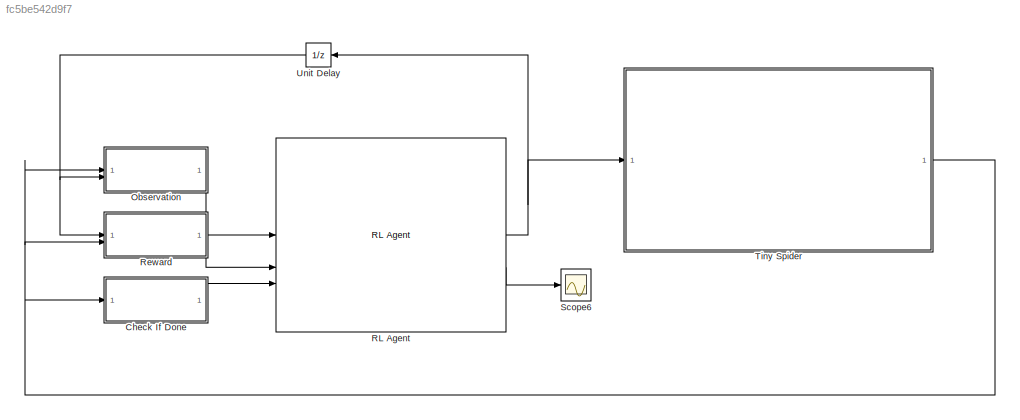
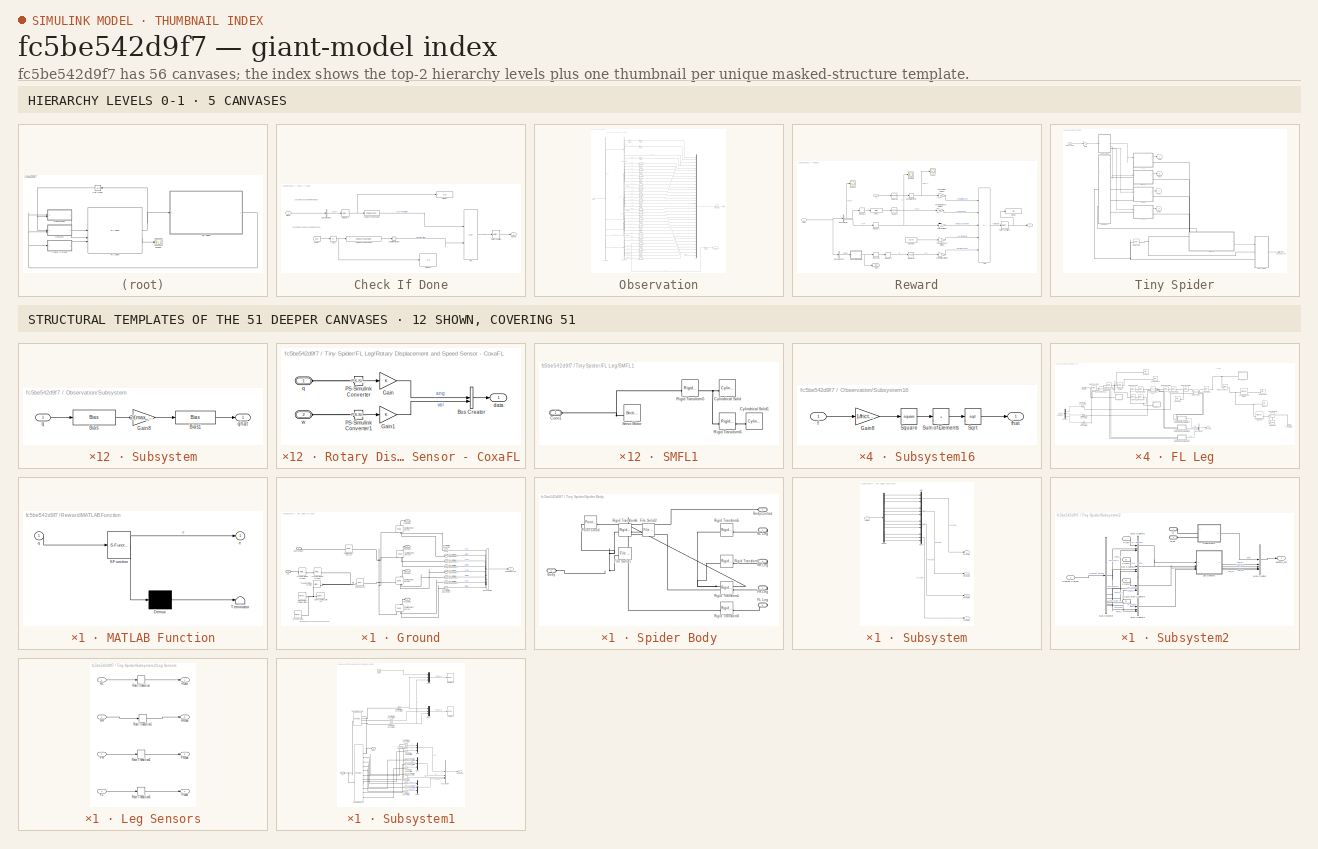
[diagram: thumbnail index - top-2 hierarchy levels (5 canvases) + 12 structural-template representatives of the remaining 51 canvases]
MODEL slx_fc5be542d9f7
KIND model
CONFIG AbsTol = auto
CONFIG EnableMultiTasking = off
CONFIG FixedStep = 0.01
CONFIG MaxStep = auto
CONFIG MinStep = auto
CONFIG RelTol = 1e-3
CONFIG SampleTimeConstraint = Unconstrained
CONFIG SolverName = ode23tb
CONFIG StartTime = 0.0
CONFIG StopTime = 10
BLOCK [SubSystem] Check If Done
BLOCK [Abs] Check If Done/Abs2
  SaturateOnIntegerOverflow = off
  ZeroCross = off
BLOCK [BusSelector] Check If Done/Bus Selector2
  OutputSignals = body.pos
BLOCK [Reference] Check If Done/Compare To Constant  REF=simulink/Logic and Bit
Operations/Compare
To Constant
  SourceBlock = simulink/Logic and Bit\nOperations/Compare\nTo Constant
  SourceType = Compare To Constant
BLOCK [Reference] Check If Done/Compare To Constant2  REF=simulink/Logic and Bit
Operations/Compare
To Constant
  SourceBlock = simulink/Logic and Bit\nOperations/Compare\nTo Constant
  SourceType = Compare To Constant
BLOCK [Display] Check If Done/Display
  Decimation = 1
BLOCK [Display] Check If Done/Display1
  Decimation = 1
BLOCK [From] Check If Done/From
  GotoTag = q2e
  TagVisibility = global
BLOCK [Logic] Check If Done/OR
  AllPortsSameDT = off
  Operator = OR
  OutDataTypeStr = boolean
BLOCK [RateTransition] Check If Done/Rate Transition
BLOCK [Selector] Check If Done/Selector1
  IndexOptions = Index vector (dialog)
  Indices = 3
  InputPortWidth = 3
  OutputSizes = 1
BLOCK [Sum] Check If Done/Sum of Elements2
  IconShape = rectangular
  Inputs = +
BLOCK [Outport] Check If Done/isdone
  VectorParamsAs1DForOutWhenUnconnected = off
BLOCK [Inport] Check If Done/meas
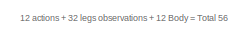
[diagram: Observation - part 1/12, top left region]
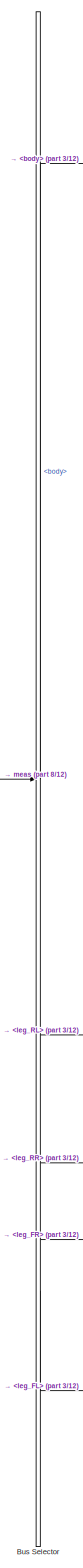
[diagram: Observation - part 2/12, left side, full height]
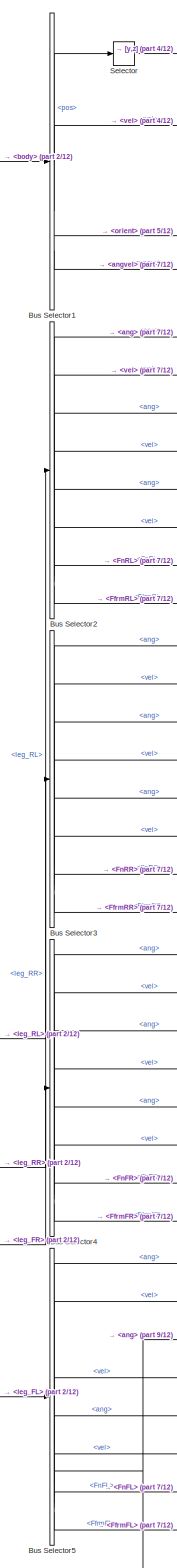
[diagram: Observation - part 3/12, left side, full height]
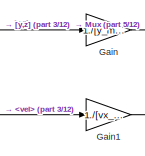
[diagram: Observation - part 4/12, top center region]
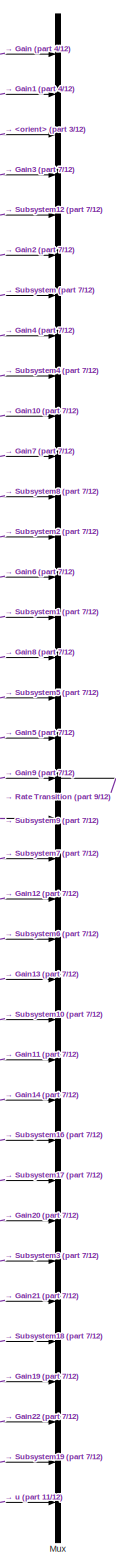
[diagram: Observation - part 5/12, right side, full height]
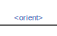
[diagram: Observation - part 6/12, top center region]
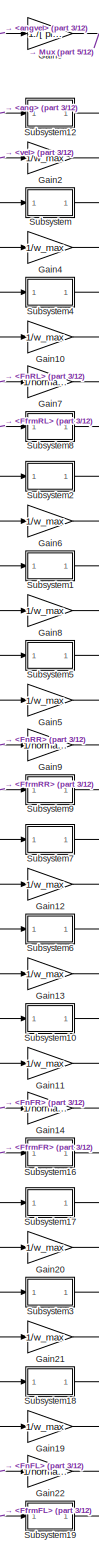
[diagram: Observation - part 7/12, center side, full height]
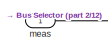
[diagram: Observation - part 8/12, middle left region]
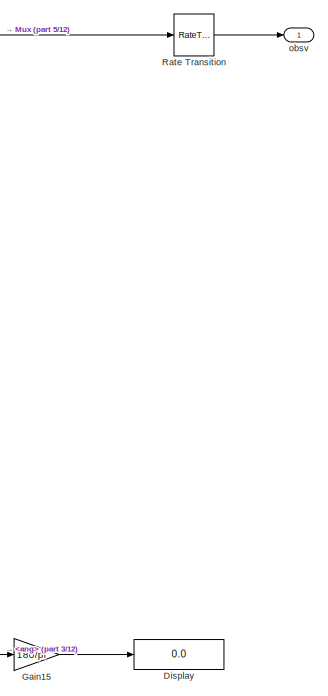
[diagram: Observation - part 9/12, bottom right region]
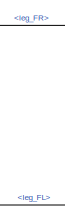
[diagram: Observation - part 10/12, bottom left region]
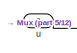
[diagram: Observation - part 11/12, bottom right region]
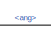
[diagram: Observation - part 12/12, bottom center region]
BLOCK [SubSystem] Observation
BLOCK [BusSelector] Observation/Bus Selector
  OutputSignals = body,leg_RL,leg_RR,leg_FR,leg_FL
BLOCK [BusSelector] Observation/Bus Selector1
  OutputSignals = pos,vel,orient,angvel
BLOCK [BusSelector] Observation/Bus Selector2
  OutputSignals = RL Sensors.Tibia.ang,RL Sensors.Tibia.vel,RL Sensors.Femur.ang,RL Sensors.Femur.vel,RL Sensors.Coxa.ang,RL Sensors.Coxa.vel,FnRL,FfrmRL
BLOCK [BusSelector] Observation/Bus Selector3
  OutputSignals = RR Sensor.Tibia.ang,RR Sensor.Tibia.vel,RR Sensor.Femur.ang,RR Sensor.Femur.vel,RR Sensor.Coxa.ang,RR Sensor.Coxa.vel,FnRR,FfrmRR
BLOCK [BusSelector] Observation/Bus Selector4
  OutputSignals = FR sensor.Tibia.ang,FR sensor.Tibia.vel,FR sensor.Femur.ang,FR sensor.Femur.vel,FR sensor.Coxa.ang,FR sensor.Coxa.vel,FnFR,FfrmFR
BLOCK [BusSelector] Observation/Bus Selector5
  OutputSignals = FL sensor.Tibia.ang,FL sensor.Tibia.vel,FL sensor.Femur.ang,FL sensor.Femur.vel,FL sensor.Coxa.ang,FL sensor.Coxa.vel,FnFL,FfrmFL
BLOCK [Display] Observation/Display
  Decimation = 1
BLOCK [Gain] Observation/Gain
  Gain = 1./[y_max z_max]
BLOCK [Gain] Observation/Gain1
  Gain = 1./[vx_max vy_max vz_max]
BLOCK [Gain] Observation/Gain10
  Gain = 1/w_max
BLOCK [Gain] Observation/Gain11
  Gain = 1/w_max
BLOCK [Gain] Observation/Gain12
  Gain = 1/w_max
BLOCK [Gain] Observation/Gain13
  Gain = 1/w_max
BLOCK [Gain] Observation/Gain14
  Gain = 1/normal_force_max
BLOCK [Gain] Observation/Gain15
  Gain = 180/pi
BLOCK [Gain] Observation/Gain19
  Gain = 1/w_max
BLOCK [Gain] Observation/Gain2
  Gain = 1/w_max
BLOCK [Gain] Observation/Gain20
  Gain = 1/w_max
BLOCK [Gain] Observation/Gain21
  Gain = 1/w_max
BLOCK [Gain] Observation/Gain22
  Gain = 1/normal_force_max
BLOCK [Gain] Observation/Gain3
  Gain = 1./[ pitch_max  yaw_max roll_max]
BLOCK [Gain] Observation/Gain4
  Gain = 1/w_max
BLOCK [Gain] Observation/Gain5
  Gain = 1/w_max
BLOCK [Gain] Observation/Gain6
  Gain = 1/w_max
BLOCK [Gain] Observation/Gain7
  Gain = 1/normal_force_max
BLOCK [Gain] Observation/Gain8
  Gain = 1/w_max
BLOCK [Gain] Observation/Gain9
  Gain = 1/normal_force_max
BLOCK [Mux] Observation/Mux
  DisplayOption = bar
  Inputs = 37
BLOCK [RateTransition] Observation/Rate Transition
BLOCK [Selector] Observation/Selector
  IndexOptions = Index vector (dialog)
  Indices = [2 3]
  InputPortWidth = 3
  OutputSizes = 1
BLOCK [SubSystem] Observation/Subsystem
BLOCK [Bias] Observation/Subsystem/Bias
  Bias = -min_femurRL_ang
  SaturateOnIntegerOverflow = off
BLOCK [Bias] Observation/Subsystem/Bias1
  Bias = -1
  SaturateOnIntegerOverflow = off
BLOCK [Gain] Observation/Subsystem/Gain8
  Gain = 2/(max_femurRL_ang-min_femurRL_ang)
BLOCK [Inport] Observation/Subsystem/q
BLOCK [Outport] Observation/Subsystem/qhat
  VectorParamsAs1DForOutWhenUnconnected = off
BLOCK [SubSystem] Observation/Subsystem1
BLOCK [Bias] Observation/Subsystem1/Bias
  Bias = -(-max_femurRL_ang)
  SaturateOnIntegerOverflow = off
BLOCK [Bias] Observation/Subsystem1/Bias1
  Bias = -1
  SaturateOnIntegerOverflow = off
BLOCK [Gain] Observation/Subsystem1/Gain8
  Gain = 2/((-min_femurRL_ang)-(-max_femurRL_ang))
BLOCK [Inport] Observation/Subsystem1/q
BLOCK [Outport] Observation/Subsystem1/qhat
  VectorParamsAs1DForOutWhenUnconnected = off
BLOCK [SubSystem] Observation/Subsystem10
BLOCK [Bias] Observation/Subsystem10/Bias
  Bias = -min_coxaRL_ang
  SaturateOnIntegerOverflow = off
BLOCK [Bias] Observation/Subsystem10/Bias1
  Bias = -1
  SaturateOnIntegerOverflow = off
BLOCK [Gain] Observation/Subsystem10/Gain8
  Gain = 2/(max_coxaRL_ang-min_coxaRL_ang)
BLOCK [Inport] Observation/Subsystem10/q
BLOCK [Outport] Observation/Subsystem10/qhat
  VectorParamsAs1DForOutWhenUnconnected = off
BLOCK [SubSystem] Observation/Subsystem12
BLOCK [Bias] Observation/Subsystem12/Bias
  Bias = -min_tibiaRL_ang
  SaturateOnIntegerOverflow = off
BLOCK [Bias] Observation/Subsystem12/Bias1
  Bias = -1
  SaturateOnIntegerOverflow = off
BLOCK [Gain] Observation/Subsystem12/Gain8
  Gain = 2/(max_tibiaRL_ang-min_tibiaRL_ang)
BLOCK [Inport] Observation/Subsystem12/q
BLOCK [Outport] Observation/Subsystem12/qhat
  VectorParamsAs1DForOutWhenUnconnected = off
BLOCK [SubSystem] Observation/Subsystem16
BLOCK [Gain] Observation/Subsystem16/Gain8
  Gain = 1/friction_force_max
BLOCK [Sqrt] Observation/Subsystem16/Sqrt
BLOCK [Math] Observation/Subsystem16/Square
  Operator = square
  SignedPower = on
BLOCK [Sum] Observation/Subsystem16/Sum of Elements
  IconShape = rectangular
  Inputs = +
BLOCK [Inport] Observation/Subsystem16/f
BLOCK [Outport] Observation/Subsystem16/fhat
  VectorParamsAs1DForOutWhenUnconnected = off
BLOCK [SubSystem] Observation/Subsystem17
BLOCK [Bias] Observation/Subsystem17/Bias
  Bias = -(-max_tibiaRL_ang)
  SaturateOnIntegerOverflow = off
BLOCK [Bias] Observation/Subsystem17/Bias1
  Bias = -1
  SaturateOnIntegerOverflow = off
BLOCK [Gain] Observation/Subsystem17/Gain8
  Gain = 2/((-min_tibiaRL_ang)-(-max_tibiaRL_ang))
BLOCK [Inport] Observation/Subsystem17/q
BLOCK [Outport] Observation/Subsystem17/qhat
  VectorParamsAs1DForOutWhenUnconnected = off
BLOCK [SubSystem] Observation/Subsystem18
BLOCK [Bias] Observation/Subsystem18/Bias
  Bias = -(-max_coxaRL_ang)
  SaturateOnIntegerOverflow = off
BLOCK [Bias] Observation/Subsystem18/Bias1
  Bias = -1
  SaturateOnIntegerOverflow = off
BLOCK [Gain] Observation/Subsystem18/Gain8
  Gain = 2/((-min_coxaRL_ang)-(-max_coxaRL_ang))
BLOCK [Inport] Observation/Subsystem18/q
BLOCK [Outport] Observation/Subsystem18/qhat
  VectorParamsAs1DForOutWhenUnconnected = off
BLOCK [SubSystem] Observation/Subsystem19
BLOCK [Gain] Observation/Subsystem19/Gain8
  Gain = 1/friction_force_max
BLOCK [Sqrt] Observation/Subsystem19/Sqrt
BLOCK [Math] Observation/Subsystem19/Square
  Operator = square
  SignedPower = on
BLOCK [Sum] Observation/Subsystem19/Sum of Elements
  IconShape = rectangular
  Inputs = +
BLOCK [Inport] Observation/Subsystem19/f
BLOCK [Outport] Observation/Subsystem19/fhat
  VectorParamsAs1DForOutWhenUnconnected = off
BLOCK [SubSystem] Observation/Subsystem2
BLOCK [Bias] Observation/Subsystem2/Bias
  Bias = -(-max_tibiaRL_ang)
  SaturateOnIntegerOverflow = off
BLOCK [Bias] Observation/Subsystem2/Bias1
  Bias = -1
  SaturateOnIntegerOverflow = off
BLOCK [Gain] Observation/Subsystem2/Gain8
  Gain = 2/((-min_tibiaRL_ang)-(-max_tibiaRL_ang))
BLOCK [Inport] Observation/Subsystem2/q
BLOCK [Outport] Observation/Subsystem2/qhat
  VectorParamsAs1DForOutWhenUnconnected = off
BLOCK [SubSystem] Observation/Subsystem3
BLOCK [Bias] Observation/Subsystem3/Bias
  Bias = -(-max_femurRL_ang)
  SaturateOnIntegerOverflow = off
BLOCK [Bias] Observation/Subsystem3/Bias1
  Bias = -1
  SaturateOnIntegerOverflow = off
BLOCK [Gain] Observation/Subsystem3/Gain8
  Gain = 2/((-min_femurRL_ang)-(-max_femurRL_ang))
BLOCK [Inport] Observation/Subsystem3/q
BLOCK [Outport] Observation/Subsystem3/qhat
  VectorParamsAs1DForOutWhenUnconnected = off
BLOCK [SubSystem] Observation/Subsystem4
BLOCK [Bias] Observation/Subsystem4/Bias
  Bias = -min_coxaRL_ang
  SaturateOnIntegerOverflow = off
BLOCK [Bias] Observation/Subsystem4/Bias1
  Bias = -1
  SaturateOnIntegerOverflow = off
BLOCK [Gain] Observation/Subsystem4/Gain8
  Gain = 2/(max_coxaRL_ang-min_coxaRL_ang)
BLOCK [Inport] Observation/Subsystem4/q
BLOCK [Outport] Observation/Subsystem4/qhat
  VectorParamsAs1DForOutWhenUnconnected = off
BLOCK [SubSystem] Observation/Subsystem5
BLOCK [Bias] Observation/Subsystem5/Bias
  Bias = -(-max_coxaRL_ang)
  SaturateOnIntegerOverflow = off
BLOCK [Bias] Observation/Subsystem5/Bias1
  Bias = -1
  SaturateOnIntegerOverflow = off
BLOCK [Gain] Observation/Subsystem5/Gain8
  Gain = 2/((-min_coxaRL_ang)-(-max_coxaRL_ang))
BLOCK [Inport] Observation/Subsystem5/q
BLOCK [Outport] Observation/Subsystem5/qhat
  VectorParamsAs1DForOutWhenUnconnected = off
BLOCK [SubSystem] Observation/Subsystem6
BLOCK [Bias] Observation/Subsystem6/Bias
  Bias = -min_femurRL_ang
  SaturateOnIntegerOverflow = off
BLOCK [Bias] Observation/Subsystem6/Bias1
  Bias = -1
  SaturateOnIntegerOverflow = off
BLOCK [Gain] Observation/Subsystem6/Gain8
  Gain = 2/(max_femurRL_ang-min_femurRL_ang)
BLOCK [Inport] Observation/Subsystem6/q
BLOCK [Outport] Observation/Subsystem6/qhat
  VectorParamsAs1DForOutWhenUnconnected = off
BLOCK [SubSystem] Observation/Subsystem7
BLOCK [Bias] Observation/Subsystem7/Bias
  Bias = -min_tibiaRL_ang
  SaturateOnIntegerOverflow = off
BLOCK [Bias] Observation/Subsystem7/Bias1
  Bias = -1
  SaturateOnIntegerOverflow = off
BLOCK [Gain] Observation/Subsystem7/Gain8
  Gain = 2/(max_tibiaRL_ang-min_tibiaRL_ang)
BLOCK [Inport] Observation/Subsystem7/q
BLOCK [Outport] Observation/Subsystem7/qhat
  VectorParamsAs1DForOutWhenUnconnected = off
BLOCK [SubSystem] Observation/Subsystem8
BLOCK [Gain] Observation/Subsystem8/Gain8
  Gain = 1/friction_force_max
BLOCK [Sqrt] Observation/Subsystem8/Sqrt
BLOCK [Math] Observation/Subsystem8/Square
  Operator = square
  SignedPower = on
BLOCK [Sum] Observation/Subsystem8/Sum of Elements
  IconShape = rectangular
  Inputs = +
BLOCK [Inport] Observation/Subsystem8/f
BLOCK [Outport] Observation/Subsystem8/fhat
  VectorParamsAs1DForOutWhenUnconnected = off
BLOCK [SubSystem] Observation/Subsystem9
BLOCK [Gain] Observation/Subsystem9/Gain8
  Gain = 1/friction_force_max
BLOCK [Sqrt] Observation/Subsystem9/Sqrt
BLOCK [Math] Observation/Subsystem9/Square
  Operator = square
  SignedPower = on
BLOCK [Sum] Observation/Subsystem9/Sum of Elements
  IconShape = rectangular
  Inputs = +
BLOCK [Inport] Observation/Subsystem9/f
BLOCK [Outport] Observation/Subsystem9/fhat
  VectorParamsAs1DForOutWhenUnconnected = off
BLOCK [Inport] Observation/meas
BLOCK [Outport] Observation/obsv
  VectorParamsAs1DForOutWhenUnconnected = off
BLOCK [Inport] Observation/u
  Port = 2
BLOCK [Reference] RL Agent  REF=rllib/RL Agent
  SourceBlock = rllib/RL Agent
  SourceType = RL Agent
BLOCK [SubSystem] Reward
BLOCK [Sum] Reward/Add
  IconShape = rectangular
  Inputs = --++-
BLOCK [Bias] Reward/Bias2
  Bias = -h_final
  SaturateOnIntegerOverflow = off
BLOCK [BusSelector] Reward/Bus Selector
  OutputSignals = body.pos,body.vel
BLOCK [BusSelector] Reward/Bus Selector3
  OutputSignals = body.orient
BLOCK [Constant] Reward/Constant 
  SampleTime = -1
  Value = Ts/Tf
BLOCK [Gain] Reward/Constant Term Weight
BLOCK [Gain] Reward/Control Effort Weight
  Gain = 0.02
BLOCK [Display] Reward/Display
  Decimation = 1
BLOCK [Goto] Reward/Goto
  GotoTag = q2e
  TagVisibility = global
BLOCK [SubSystem] Reward/MATLAB Function
  ErrorFcn = Stateflow.Translate.translate
  PermitHierarchicalResolution = ExplicitOnly
  SFBlockType = MATLAB Function
  TreatAsAtomicUnit = on
BLOCK [Demux] Reward/MATLAB Function/ Demux 
  Outputs = 1
BLOCK [S-Function] Reward/MATLAB Function/ SFunction 
  EnableBusSupport = on
  FunctionName = sf_sfun
  PortCounts = [1 2]
  SFcnIsStateOwnerBlock = off
  SFunctionDeploymentMode = off
  Tag = Stateflow S-Function 1
BLOCK [Terminator] Reward/MATLAB Function/ Terminator 
BLOCK [Outport] Reward/MATLAB Function/e
  VectorParamsAs1DForOutWhenUnconnected = off
BLOCK [Inport] Reward/MATLAB Function/q
BLOCK [Gain] Reward/Orientation Weight
  Commented = on
BLOCK [RateTransition] Reward/Rate Transition1
BLOCK [Reshape] Reward/Reshape
  Commented = on
  OutputDimensions = [1]
BLOCK [Scope] Reward/Scope
  Floating = off
  NumInputPorts = 1
  ScopeSpecificationString = Simulink.scopes.TimeScopeBlockCfg('CurrentConfiguration', extmgr.ConfigurationSet(extmgr.Configuration('Core','General UI',true),extmgr.Configuration('Core','Source UI',true),extmgr.Configuration('Sources','WiredSimulink',true,'DataLoggingVariableName','ScopeData1'),extmgr.Configuration('Visuals','Time Domain',true,'SerializedDisplays',{struct('MinYLimReal','-0.84926','MaxYLimReal','7.64331','YLab...<+1461ch>
BLOCK [Scope] Reward/Scope1
  Floating = off
  NumInputPorts = 1
  ScopeSpecificationString = Simulink.scopes.TimeScopeBlockCfg('CurrentConfiguration', extmgr.ConfigurationSet(extmgr.Configuration('Core','General UI',true),extmgr.Configuration('Core','Source UI',true),extmgr.Configuration('Sources','WiredSimulink',true,'DataLoggingVariableName','ScopeData2'),extmgr.Configuration('Visuals','Time Domain',true,'SerializedDisplays',{struct('MinYLimReal','-0.1015','MaxYLimReal','0.29466','YLabe...<+1453ch>
BLOCK [Scope] Reward/Scope2
  Floating = off
  NumInputPorts = 1
  ScopeSpecificationString = Simulink.scopes.TimeScopeBlockCfg('CurrentConfiguration', extmgr.ConfigurationSet(extmgr.Configuration('Core','General UI',true),extmgr.Configuration('Core','Source UI',true),extmgr.Configuration('Sources','WiredSimulink',true,'DataLoggingVariableName','ScopeData3'),extmgr.Configuration('Visuals','Time Domain',true,'SerializedDisplays',{struct('MinYLimReal','-0.18358','MaxYLimReal','0.78892','YLab...<+1790ch>
BLOCK [Selector] Reward/Selector1
  IndexOptions = Index vector (dialog)
  Indices = 1
  InputPortWidth = 3
  OutputSizes = 1
BLOCK [Selector] Reward/Selector3
  Commented = on
  IndexOptions = Index vector (dialog)
  Indices = 1
  InputPortWidth = 3
  OutputSizes = 1
BLOCK [Selector] Reward/Selector5
  IndexOptions = Index vector (dialog)
  Indices = 3
  InputPortWidth = 3
  OutputSizes = 1
BLOCK [Math] Reward/Square
  Operator = square
BLOCK [Math] Reward/Square2
  Operator = square
  SignedPower = on
BLOCK [Math] Reward/Square3
  Commented = on
  Operator = square
  SignedPower = on
BLOCK [Sum] Reward/Sum of Elements
  IconShape = rectangular
  Inputs = +
  OutDataTypeStr = double
BLOCK [Gain] Reward/Velocity Weight
  Gain = 3
BLOCK [Gain] Reward/Vertical Distance Weight
  Gain = 0.8
BLOCK [Inport] Reward/meas
  Port = 2
BLOCK [Outport] Reward/r
  VectorParamsAs1DForOutWhenUnconnected = off
BLOCK [Inport] Reward/u
BLOCK [Scope] Scope6
  Floating = off
  NumInputPorts = 1
  ScopeSpecificationString = Simulink.scopes.TimeScopeBlockCfg('CurrentConfiguration', extmgr.ConfigurationSet(extmgr.Configuration('Core','General UI',true),extmgr.Configuration('Core','Source UI',true),extmgr.Configuration('Sources','WiredSimulink',true,'DataLoggingVariableName','ScopeData1'),extmgr.Configuration('Visuals','Time Domain',true,'SerializedDisplays',{struct('MinYLimReal','-7.47646','MaxYLimReal','67.28812','YLa...<+1752ch>
BLOCK [SubSystem] Tiny Spider
BLOCK [Reference] Tiny Spider/6-DOF Joint  REF=sm_lib/Joints/6-DOF Joint
  SourceBlock = sm_lib/Joints/6-DOF Joint
  SourceType = 6-DOF Joint
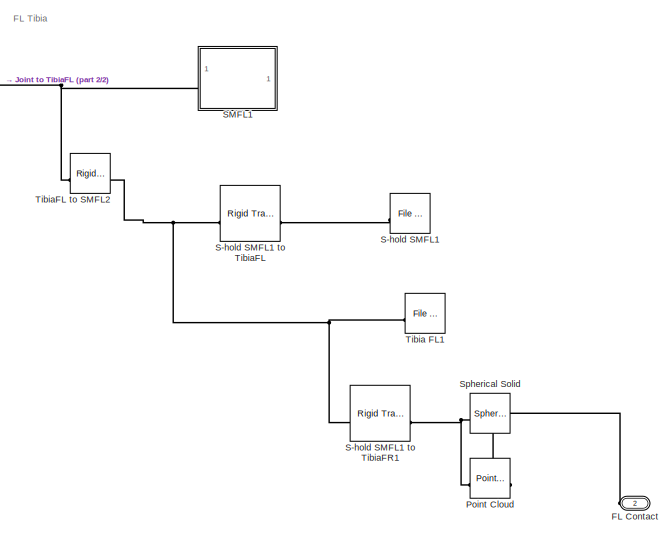
[diagram: Tiny Spider/FL Leg - part 1/2, right side, full height]
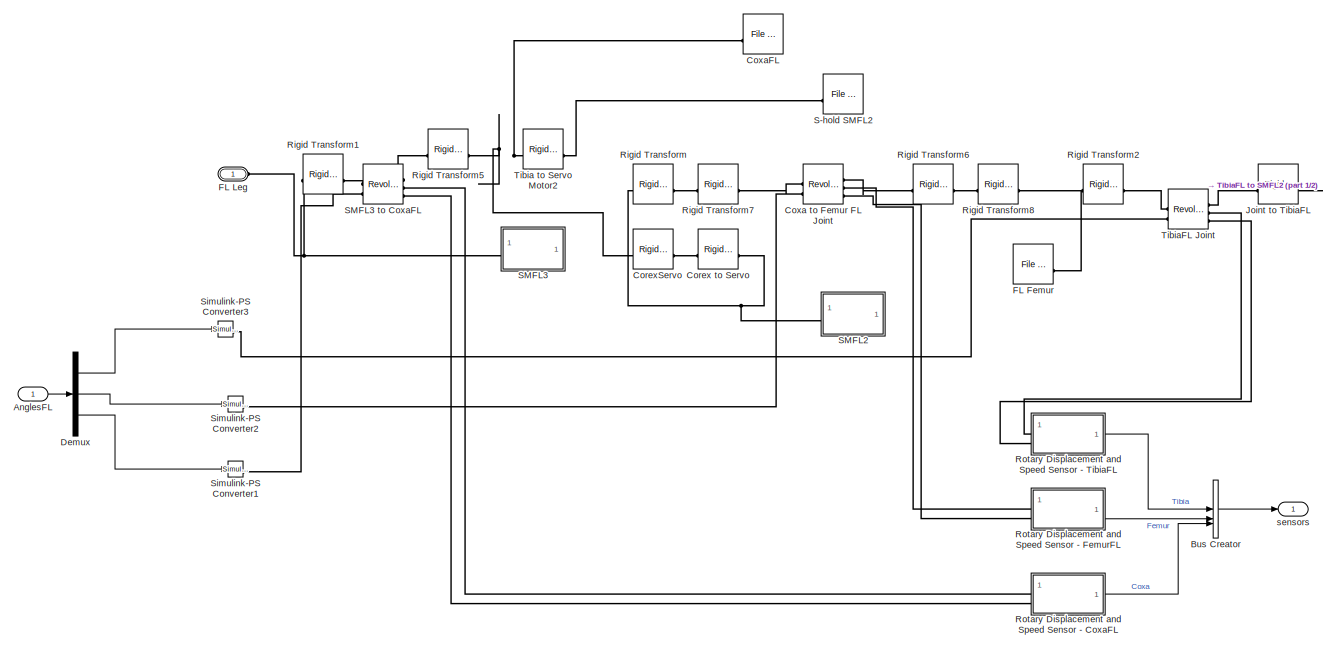
[diagram: Tiny Spider/FL Leg - part 2/2, left side, full height]
BLOCK [SubSystem] Tiny Spider/FL Leg
BLOCK [Inport] Tiny Spider/FL Leg/AnglesFL
BLOCK [BusCreator] Tiny Spider/FL Leg/Bus Creator
  DisplayOption = bar
  InheritFromInputs = on
  Inputs = 3
BLOCK [Reference] Tiny Spider/FL Leg/Corex to Servo   REF=sm_lib/Frames and
Transforms/Rigid
Transform
  SourceBlock = sm_lib/Frames and\nTransforms/Rigid\nTransform
  SourceType = Rigid\nTransform
BLOCK [Reference] Tiny Spider/FL Leg/CorexServo  REF=sm_lib/Frames and
Transforms/Rigid
Transform
  SourceBlock = sm_lib/Frames and\nTransforms/Rigid\nTransform
  SourceType = Rigid\nTransform
BLOCK [Reference] Tiny Spider/FL Leg/Coxa to Femur FL Joint  REF=sm_lib/Joints/Revolute Joint
  SourceBlock = sm_lib/Joints/Revolute Joint
  SourceType = Revolute Joint
BLOCK [Reference] Tiny Spider/FL Leg/CoxaFL  REF=sm_lib/Body Elements/File Solid
  SourceBlock = sm_lib/Body Elements/File Solid
  SourceType = File Solid
BLOCK [Demux] Tiny Spider/FL Leg/Demux
  Outputs = 3
BLOCK [PMIOPort] Tiny Spider/FL Leg/FL Contact
  Port = 2
  Side = Right
BLOCK [Reference] Tiny Spider/FL Leg/FL Femur  REF=sm_lib/Body Elements/File Solid
  SourceBlock = sm_lib/Body Elements/File Solid
  SourceType = File Solid
BLOCK [PMIOPort] Tiny Spider/FL Leg/FL Leg
  Side = Left
BLOCK [Reference] Tiny Spider/FL Leg/Joint to TibiaFL  REF=sm_lib/Frames and
Transforms/Rigid
Transform
  SourceBlock = sm_lib/Frames and\nTransforms/Rigid\nTransform
  SourceType = Rigid\nTransform
BLOCK [Reference] Tiny Spider/FL Leg/Point Cloud  REF=sm_lib/Curves and Surfaces/Point Cloud
  SourceBlock = sm_lib/Curves and Surfaces/Point Cloud
  SourceType = Point Cloud
BLOCK [Reference] Tiny Spider/FL Leg/Rigid Transform  REF=sm_lib/Frames and
Transforms/Rigid
Transform
  SourceBlock = sm_lib/Frames and\nTransforms/Rigid\nTransform
  SourceType = Rigid\nTransform
BLOCK [Reference] Tiny Spider/FL Leg/Rigid Transform1  REF=sm_lib/Frames and
Transforms/Rigid
Transform
  SourceBlock = sm_lib/Frames and\nTransforms/Rigid\nTransform
  SourceType = Rigid\nTransform
BLOCK [Reference] Tiny Spider/FL Leg/Rigid Transform2  REF=sm_lib/Frames and
Transforms/Rigid
Transform
  SourceBlock = sm_lib/Frames and\nTransforms/Rigid\nTransform
  SourceType = Rigid\nTransform
BLOCK [Reference] Tiny Spider/FL Leg/Rigid Transform5  REF=sm_lib/Frames and
Transforms/Rigid
Transform
  SourceBlock = sm_lib/Frames and\nTransforms/Rigid\nTransform
  SourceType = Rigid\nTransform
BLOCK [Reference] Tiny Spider/FL Leg/Rigid Transform6  REF=sm_lib/Frames and
Transforms/Rigid
Transform
  SourceBlock = sm_lib/Frames and\nTransforms/Rigid\nTransform
  SourceType = Rigid\nTransform
BLOCK [Reference] Tiny Spider/FL Leg/Rigid Transform7  REF=sm_lib/Frames and
Transforms/Rigid
Transform
  SourceBlock = sm_lib/Frames and\nTransforms/Rigid\nTransform
  SourceType = Rigid\nTransform
BLOCK [Reference] Tiny Spider/FL Leg/Rigid Transform8  REF=sm_lib/Frames and
Transforms/Rigid
Transform
  SourceBlock = sm_lib/Frames and\nTransforms/Rigid\nTransform
  SourceType = Rigid\nTransform
BLOCK [SubSystem] Tiny Spider/FL Leg/Rotary Displacement and Speed Sensor - CoxaFL
BLOCK [BusCreator] Tiny Spider/FL Leg/Rotary Displacement and Speed Sensor - CoxaFL/Bus Creator
  DisplayOption = bar
  InheritFromInputs = on
  Inputs = 2
BLOCK [Gain] Tiny Spider/FL Leg/Rotary Displacement and Speed Sensor - CoxaFL/Gain
  OutDataTypeStr = Inherit: Same as input
BLOCK [Gain] Tiny Spider/FL Leg/Rotary Displacement and Speed Sensor - CoxaFL/Gain1
  OutDataTypeStr = Inherit: Same as input
BLOCK [Reference] Tiny Spider/FL Leg/Rotary Displacement and Speed Sensor - CoxaFL/PS-Simulink Converter  REF=nesl_utility/PS-Simulink
Converter
  SourceBlock = nesl_utility/PS-Simulink\nConverter
  SourceType = PS-Simulink\nConverter
BLOCK [Reference] Tiny Spider/FL Leg/Rotary Displacement and Speed Sensor - CoxaFL/PS-Simulink Converter1  REF=nesl_utility/PS-Simulink
Converter
  SourceBlock = nesl_utility/PS-Simulink\nConverter
  SourceType = PS-Simulink\nConverter
BLOCK [Outport] Tiny Spider/FL Leg/Rotary Displacement and Speed Sensor - CoxaFL/data
  VectorParamsAs1DForOutWhenUnconnected = off
BLOCK [PMIOPort] Tiny Spider/FL Leg/Rotary Displacement and Speed Sensor - CoxaFL/q
  Side = Left
BLOCK [PMIOPort] Tiny Spider/FL Leg/Rotary Displacement and Speed Sensor - CoxaFL/w
  Port = 2
  Side = Left
BLOCK [SubSystem] Tiny Spider/FL Leg/Rotary Displacement and Speed Sensor - FemurFL
BLOCK [BusCreator] Tiny Spider/FL Leg/Rotary Displacement and Speed Sensor - FemurFL/Bus Creator
  DisplayOption = bar
  InheritFromInputs = on
  Inputs = 2
BLOCK [Gain] Tiny Spider/FL Leg/Rotary Displacement and Speed Sensor - FemurFL/Gain
  OutDataTypeStr = Inherit: Same as input
BLOCK [Gain] Tiny Spider/FL Leg/Rotary Displacement and Speed Sensor - FemurFL/Gain1
  OutDataTypeStr = Inherit: Same as input
BLOCK [Reference] Tiny Spider/FL Leg/Rotary Displacement and Speed Sensor - FemurFL/PS-Simulink Converter  REF=nesl_utility/PS-Simulink
Converter
  SourceBlock = nesl_utility/PS-Simulink\nConverter
  SourceType = PS-Simulink\nConverter
BLOCK [Reference] Tiny Spider/FL Leg/Rotary Displacement and Speed Sensor - FemurFL/PS-Simulink Converter1  REF=nesl_utility/PS-Simulink
Converter
  SourceBlock = nesl_utility/PS-Simulink\nConverter
  SourceType = PS-Simulink\nConverter
BLOCK [Outport] Tiny Spider/FL Leg/Rotary Displacement and Speed Sensor - FemurFL/data
  VectorParamsAs1DForOutWhenUnconnected = off
BLOCK [PMIOPort] Tiny Spider/FL Leg/Rotary Displacement and Speed Sensor - FemurFL/q
  Side = Left
BLOCK [PMIOPort] Tiny Spider/FL Leg/Rotary Displacement and Speed Sensor - FemurFL/w
  Port = 2
  Side = Left
BLOCK [SubSystem] Tiny Spider/FL Leg/Rotary Displacement and Speed Sensor - TibiaFL
BLOCK [BusCreator] Tiny Spider/FL Leg/Rotary Displacement and Speed Sensor - TibiaFL/Bus Creator
  DisplayOption = bar
  InheritFromInputs = on
  Inputs = 2
BLOCK [Gain] Tiny Spider/FL Leg/Rotary Displacement and Speed Sensor - TibiaFL/Gain
BLOCK [Gain] Tiny Spider/FL Leg/Rotary Displacement and Speed Sensor - TibiaFL/Gain1
BLOCK [Reference] Tiny Spider/FL Leg/Rotary Displacement and Speed Sensor - TibiaFL/PS-Simulink Converter  REF=nesl_utility/PS-Simulink
Converter
  SourceBlock = nesl_utility/PS-Simulink\nConverter
  SourceType = PS-Simulink\nConverter
BLOCK [Reference] Tiny Spider/FL Leg/Rotary Displacement and Speed Sensor - TibiaFL/PS-Simulink Converter1  REF=nesl_utility/PS-Simulink
Converter
  SourceBlock = nesl_utility/PS-Simulink\nConverter
  SourceType = PS-Simulink\nConverter
BLOCK [Outport] Tiny Spider/FL Leg/Rotary Displacement and Speed Sensor - TibiaFL/data
  VectorParamsAs1DForOutWhenUnconnected = off
BLOCK [PMIOPort] Tiny Spider/FL Leg/Rotary Displacement and Speed Sensor - TibiaFL/q
  Side = Left
BLOCK [PMIOPort] Tiny Spider/FL Leg/Rotary Displacement and Speed Sensor - TibiaFL/w
  Port = 2
  Side = Left
BLOCK [Reference] Tiny Spider/FL Leg/S-hold SMFL1  REF=sm_lib/Body Elements/File Solid
  SourceBlock = sm_lib/Body Elements/File Solid
  SourceType = File Solid
BLOCK [Reference] Tiny Spider/FL Leg/S-hold SMFL1 to TibiaFL  REF=sm_lib/Frames and
Transforms/Rigid
Transform
  SourceBlock = sm_lib/Frames and\nTransforms/Rigid\nTransform
  SourceType = Rigid\nTransform
BLOCK [Reference] Tiny Spider/FL Leg/S-hold SMFL1 to TibiaFR1  REF=sm_lib/Frames and
Transforms/Rigid
Transform
  SourceBlock = sm_lib/Frames and\nTransforms/Rigid\nTransform
  SourceType = Rigid\nTransform
BLOCK [Reference] Tiny Spider/FL Leg/S-hold SMFL2  REF=sm_lib/Body Elements/File Solid
  SourceBlock = sm_lib/Body Elements/File Solid
  SourceType = File Solid
BLOCK [SubSystem] Tiny Spider/FL Leg/SMFL1
BLOCK [PMIOPort] Tiny Spider/FL Leg/SMFL1/Conn1
  Side = Left
BLOCK [Reference] Tiny Spider/FL Leg/SMFL1/Cylindrical Solid  REF=sm_lib/Body Elements/Cylindrical Solid
  SourceBlock = sm_lib/Body Elements/Cylindrical Solid
  SourceType = Cylindrical Solid
BLOCK [Reference] Tiny Spider/FL Leg/SMFL1/Cylindrical Solid1  REF=sm_lib/Body Elements/Cylindrical Solid
  SourceBlock = sm_lib/Body Elements/Cylindrical Solid
  SourceType = Cylindrical Solid
BLOCK [Reference] Tiny Spider/FL Leg/SMFL1/Rigid Transform5  REF=sm_lib/Frames and
Transforms/Rigid
Transform
  SourceBlock = sm_lib/Frames and\nTransforms/Rigid\nTransform
  SourceType = Rigid\nTransform
BLOCK [Reference] Tiny Spider/FL Leg/SMFL1/Rigid Transform6  REF=sm_lib/Frames and
Transforms/Rigid
Transform
  SourceBlock = sm_lib/Frames and\nTransforms/Rigid\nTransform
  SourceType = Rigid\nTransform
BLOCK [Reference] Tiny Spider/FL Leg/SMFL1/Servo Motor  REF=sm_lib/Body Elements/Brick Solid
  SourceBlock = sm_lib/Body Elements/Brick Solid
  SourceType = Brick Solid
BLOCK [SubSystem] Tiny Spider/FL Leg/SMFL2
BLOCK [PMIOPort] Tiny Spider/FL Leg/SMFL2/Conn1
  Side = Left
BLOCK [Reference] Tiny Spider/FL Leg/SMFL2/Cylindrical Solid  REF=sm_lib/Body Elements/Cylindrical Solid
  SourceBlock = sm_lib/Body Elements/Cylindrical Solid
  SourceType = Cylindrical Solid
BLOCK [Reference] Tiny Spider/FL Leg/SMFL2/Cylindrical Solid1  REF=sm_lib/Body Elements/Cylindrical Solid
  SourceBlock = sm_lib/Body Elements/Cylindrical Solid
  SourceType = Cylindrical Solid
BLOCK [Reference] Tiny Spider/FL Leg/SMFL2/Rigid Transform5  REF=sm_lib/Frames and
Transforms/Rigid
Transform
  SourceBlock = sm_lib/Frames and\nTransforms/Rigid\nTransform
  SourceType = Rigid\nTransform
BLOCK [Reference] Tiny Spider/FL Leg/SMFL2/Rigid Transform6  REF=sm_lib/Frames and
Transforms/Rigid
Transform
  SourceBlock = sm_lib/Frames and\nTransforms/Rigid\nTransform
  SourceType = Rigid\nTransform
BLOCK [Reference] Tiny Spider/FL Leg/SMFL2/Servo Motor  REF=sm_lib/Body Elements/Brick Solid
  SourceBlock = sm_lib/Body Elements/Brick Solid
  SourceType = Brick Solid
BLOCK [SubSystem] Tiny Spider/FL Leg/SMFL3
BLOCK [Reference] Tiny Spider/FL Leg/SMFL3 to CoxaFL  REF=sm_lib/Joints/Revolute Joint
  SourceBlock = sm_lib/Joints/Revolute Joint
  SourceType = Revolute Joint
BLOCK [PMIOPort] Tiny Spider/FL Leg/SMFL3/Conn1
  Side = Left
BLOCK [Reference] Tiny Spider/FL Leg/SMFL3/Cylindrical Solid  REF=sm_lib/Body Elements/Cylindrical Solid
  SourceBlock = sm_lib/Body Elements/Cylindrical Solid
  SourceType = Cylindrical Solid
BLOCK [Reference] Tiny Spider/FL Leg/SMFL3/Cylindrical Solid1  REF=sm_lib/Body Elements/Cylindrical Solid
  SourceBlock = sm_lib/Body Elements/Cylindrical Solid
  SourceType = Cylindrical Solid
BLOCK [Reference] Tiny Spider/FL Leg/SMFL3/Rigid Transform5  REF=sm_lib/Frames and
Transforms/Rigid
Transform
  SourceBlock = sm_lib/Frames and\nTransforms/Rigid\nTransform
  SourceType = Rigid\nTransform
BLOCK [Reference] Tiny Spider/FL Leg/SMFL3/Rigid Transform6  REF=sm_lib/Frames and
Transforms/Rigid
Transform
  SourceBlock = sm_lib/Frames and\nTransforms/Rigid\nTransform
  SourceType = Rigid\nTransform
BLOCK [Reference] Tiny Spider/FL Leg/SMFL3/Servo Motor  REF=sm_lib/Body Elements/Brick Solid
  SourceBlock = sm_lib/Body Elements/Brick Solid
  SourceType = Brick Solid
BLOCK [Reference] Tiny Spider/FL Leg/Simulink-PS Converter1  REF=nesl_utility/Simulink-PS
Converter
  SourceBlock = nesl_utility/Simulink-PS\nConverter
  SourceType = Simulink-PS\nConverter
BLOCK [Reference] Tiny Spider/FL Leg/Simulink-PS Converter2  REF=nesl_utility/Simulink-PS
Converter
  SourceBlock = nesl_utility/Simulink-PS\nConverter
  SourceType = Simulink-PS\nConverter
BLOCK [Reference] Tiny Spider/FL Leg/Simulink-PS Converter3  REF=nesl_utility/Simulink-PS
Converter
  SourceBlock = nesl_utility/Simulink-PS\nConverter
  SourceType = Simulink-PS\nConverter
BLOCK [Reference] Tiny Spider/FL Leg/Spherical Solid  REF=sm_lib/Body Elements/Spherical Solid
  SourceBlock = sm_lib/Body Elements/Spherical Solid
  SourceType = Spherical Solid
BLOCK [Reference] Tiny Spider/FL Leg/Tibia FL1  REF=sm_lib/Body Elements/File Solid
  SourceBlock = sm_lib/Body Elements/File Solid
  SourceType = File Solid
BLOCK [Reference] Tiny Spider/FL Leg/Tibia to Servo Motor2  REF=sm_lib/Frames and
Transforms/Rigid
Transform
  SourceBlock = sm_lib/Frames and\nTransforms/Rigid\nTransform
  SourceType = Rigid\nTransform
BLOCK [Reference] Tiny Spider/FL Leg/TibiaFL Joint  REF=sm_lib/Joints/Revolute Joint
  SourceBlock = sm_lib/Joints/Revolute Joint
  SourceType = Revolute Joint
BLOCK [Reference] Tiny Spider/FL Leg/TibiaFL to SMFL2  REF=sm_lib/Frames and
Transforms/Rigid
Transform
  SourceBlock = sm_lib/Frames and\nTransforms/Rigid\nTransform
  SourceType = Rigid\nTransform
BLOCK [Outport] Tiny Spider/FL Leg/sensors
  VectorParamsAs1DForOutWhenUnconnected = off
BLOCK [SubSystem] Tiny Spider/FR Leg
BLOCK [Inport] Tiny Spider/FR Leg/AnglesFR
BLOCK [BusCreator] Tiny Spider/FR Leg/Bus Creator
  DisplayOption = bar
  InheritFromInputs = on
  Inputs = 3
BLOCK [Reference] Tiny Spider/FR Leg/Corex to Servo   REF=sm_lib/Frames and
Transforms/Rigid
Transform
  SourceBlock = sm_lib/Frames and\nTransforms/Rigid\nTransform
  SourceType = Rigid\nTransform
BLOCK [Reference] Tiny Spider/FR Leg/CorexServo  REF=sm_lib/Frames and
Transforms/Rigid
Transform
  SourceBlock = sm_lib/Frames and\nTransforms/Rigid\nTransform
  SourceType = Rigid\nTransform
BLOCK [Reference] Tiny Spider/FR Leg/Coxa to Femur FR Joint  REF=sm_lib/Joints/Revolute Joint
  SourceBlock = sm_lib/Joints/Revolute Joint
  SourceType = Revolute Joint
BLOCK [Reference] Tiny Spider/FR Leg/CoxaFR  REF=sm_lib/Body Elements/File Solid
  SourceBlock = sm_lib/Body Elements/File Solid
  SourceType = File Solid
BLOCK [Demux] Tiny Spider/FR Leg/Demux
  Outputs = 3
BLOCK [PMIOPort] Tiny Spider/FR Leg/FR Contact
  Port = 2
  Side = Right
BLOCK [Reference] Tiny Spider/FR Leg/FR Femur  REF=sm_lib/Body Elements/File Solid
  SourceBlock = sm_lib/Body Elements/File Solid
  SourceType = File Solid
BLOCK [PMIOPort] Tiny Spider/FR Leg/FR leg
  Side = Left
BLOCK [Reference] Tiny Spider/FR Leg/Joint to TibiaFR  REF=sm_lib/Frames and
Transforms/Rigid
Transform
  SourceBlock = sm_lib/Frames and\nTransforms/Rigid\nTransform
  SourceType = Rigid\nTransform
BLOCK [Reference] Tiny Spider/FR Leg/Point Cloud  REF=sm_lib/Curves and Surfaces/Point Cloud
  SourceBlock = sm_lib/Curves and Surfaces/Point Cloud
  SourceType = Point Cloud
BLOCK [Reference] Tiny Spider/FR Leg/Rigid Transform  REF=sm_lib/Frames and
Transforms/Rigid
Transform
  SourceBlock = sm_lib/Frames and\nTransforms/Rigid\nTransform
  SourceType = Rigid\nTransform
BLOCK [Reference] Tiny Spider/FR Leg/Rigid Transform1  REF=sm_lib/Frames and
Transforms/Rigid
Transform
  SourceBlock = sm_lib/Frames and\nTransforms/Rigid\nTransform
  SourceType = Rigid\nTransform
BLOCK [Reference] Tiny Spider/FR Leg/Rigid Transform2  REF=sm_lib/Frames and
Transforms/Rigid
Transform
  SourceBlock = sm_lib/Frames and\nTransforms/Rigid\nTransform
  SourceType = Rigid\nTransform
BLOCK [Reference] Tiny Spider/FR Leg/Rigid Transform5  REF=sm_lib/Frames and
Transforms/Rigid
Transform
  SourceBlock = sm_lib/Frames and\nTransforms/Rigid\nTransform
  SourceType = Rigid\nTransform
BLOCK [Reference] Tiny Spider/FR Leg/Rigid Transform6  REF=sm_lib/Frames and
Transforms/Rigid
Transform
  SourceBlock = sm_lib/Frames and\nTransforms/Rigid\nTransform
  SourceType = Rigid\nTransform
BLOCK [Reference] Tiny Spider/FR Leg/Rigid Transform7  REF=sm_lib/Frames and
Transforms/Rigid
Transform
  SourceBlock = sm_lib/Frames and\nTransforms/Rigid\nTransform
  SourceType = Rigid\nTransform
BLOCK [Reference] Tiny Spider/FR Leg/Rigid Transform8  REF=sm_lib/Frames and
Transforms/Rigid
Transform
  SourceBlock = sm_lib/Frames and\nTransforms/Rigid\nTransform
  SourceType = Rigid\nTransform
BLOCK [SubSystem] Tiny Spider/FR Leg/Rotary Displacement and Speed Sensor - CoxaFR
BLOCK [BusCreator] Tiny Spider/FR Leg/Rotary Displacement and Speed Sensor - CoxaFR/Bus Creator
  DisplayOption = bar
  InheritFromInputs = on
  Inputs = 2
BLOCK [Gain] Tiny Spider/FR Leg/Rotary Displacement and Speed Sensor - CoxaFR/Gain
  OutDataTypeStr = Inherit: Same as input
BLOCK [Gain] Tiny Spider/FR Leg/Rotary Displacement and Speed Sensor - CoxaFR/Gain1
  OutDataTypeStr = Inherit: Same as input
BLOCK [Reference] Tiny Spider/FR Leg/Rotary Displacement and Speed Sensor - CoxaFR/PS-Simulink Converter  REF=nesl_utility/PS-Simulink
Converter
  SourceBlock = nesl_utility/PS-Simulink\nConverter
  SourceType = PS-Simulink\nConverter
BLOCK [Reference] Tiny Spider/FR Leg/Rotary Displacement and Speed Sensor - CoxaFR/PS-Simulink Converter1  REF=nesl_utility/PS-Simulink
Converter
  SourceBlock = nesl_utility/PS-Simulink\nConverter
  SourceType = PS-Simulink\nConverter
BLOCK [Outport] Tiny Spider/FR Leg/Rotary Displacement and Speed Sensor - CoxaFR/data
  VectorParamsAs1DForOutWhenUnconnected = off
BLOCK [PMIOPort] Tiny Spider/FR Leg/Rotary Displacement and Speed Sensor - CoxaFR/q
  Side = Left
BLOCK [PMIOPort] Tiny Spider/FR Leg/Rotary Displacement and Speed Sensor - CoxaFR/w
  Port = 2
  Side = Left
BLOCK [SubSystem] Tiny Spider/FR Leg/Rotary Displacement and Speed Sensor - FemurFR
BLOCK [BusCreator] Tiny Spider/FR Leg/Rotary Displacement and Speed Sensor - FemurFR/Bus Creator
  DisplayOption = bar
  InheritFromInputs = on
  Inputs = 2
BLOCK [Gain] Tiny Spider/FR Leg/Rotary Displacement and Speed Sensor - FemurFR/Gain
  OutDataTypeStr = Inherit: Same as input
BLOCK [Gain] Tiny Spider/FR Leg/Rotary Displacement and Speed Sensor - FemurFR/Gain1
  OutDataTypeStr = Inherit: Same as input
BLOCK [Reference] Tiny Spider/FR Leg/Rotary Displacement and Speed Sensor - FemurFR/PS-Simulink Converter  REF=nesl_utility/PS-Simulink
Converter
  SourceBlock = nesl_utility/PS-Simulink\nConverter
  SourceType = PS-Simulink\nConverter
BLOCK [Reference] Tiny Spider/FR Leg/Rotary Displacement and Speed Sensor - FemurFR/PS-Simulink Converter1  REF=nesl_utility/PS-Simulink
Converter
  SourceBlock = nesl_utility/PS-Simulink\nConverter
  SourceType = PS-Simulink\nConverter
BLOCK [Outport] Tiny Spider/FR Leg/Rotary Displacement and Speed Sensor - FemurFR/data
  VectorParamsAs1DForOutWhenUnconnected = off
BLOCK [PMIOPort] Tiny Spider/FR Leg/Rotary Displacement and Speed Sensor - FemurFR/q
  Side = Left
BLOCK [PMIOPort] Tiny Spider/FR Leg/Rotary Displacement and Speed Sensor - FemurFR/w
  Port = 2
  Side = Left
BLOCK [SubSystem] Tiny Spider/FR Leg/Rotary Displacement and Speed Sensor - TibiaFR
BLOCK [BusCreator] Tiny Spider/FR Leg/Rotary Displacement and Speed Sensor - TibiaFR/Bus Creator
  DisplayOption = bar
  InheritFromInputs = on
  Inputs = 2
BLOCK [Gain] Tiny Spider/FR Leg/Rotary Displacement and Speed Sensor - TibiaFR/Gain
BLOCK [Gain] Tiny Spider/FR Leg/Rotary Displacement and Speed Sensor - TibiaFR/Gain1
BLOCK [Reference] Tiny Spider/FR Leg/Rotary Displacement and Speed Sensor - TibiaFR/PS-Simulink Converter  REF=nesl_utility/PS-Simulink
Converter
  SourceBlock = nesl_utility/PS-Simulink\nConverter
  SourceType = PS-Simulink\nConverter
BLOCK [Reference] Tiny Spider/FR Leg/Rotary Displacement and Speed Sensor - TibiaFR/PS-Simulink Converter1  REF=nesl_utility/PS-Simulink
Converter
  SourceBlock = nesl_utility/PS-Simulink\nConverter
  SourceType = PS-Simulink\nConverter
BLOCK [Outport] Tiny Spider/FR Leg/Rotary Displacement and Speed Sensor - TibiaFR/data
  VectorParamsAs1DForOutWhenUnconnected = off
BLOCK [PMIOPort] Tiny Spider/FR Leg/Rotary Displacement and Speed Sensor - TibiaFR/q
  Side = Left
BLOCK [PMIOPort] Tiny Spider/FR Leg/Rotary Displacement and Speed Sensor - TibiaFR/w
  Port = 2
  Side = Left
BLOCK [Reference] Tiny Spider/FR Leg/S-hold SMFL1 to TibiaFR  REF=sm_lib/Frames and
Transforms/Rigid
Transform
  SourceBlock = sm_lib/Frames and\nTransforms/Rigid\nTransform
  SourceType = Rigid\nTransform
BLOCK [Reference] Tiny Spider/FR Leg/S-hold SMFL1 to TibiaFR1  REF=sm_lib/Frames and
Transforms/Rigid
Transform
  SourceBlock = sm_lib/Frames and\nTransforms/Rigid\nTransform
  SourceType = Rigid\nTransform
BLOCK [Reference] Tiny Spider/FR Leg/S-hold SMFR1  REF=sm_lib/Body Elements/File Solid
  SourceBlock = sm_lib/Body Elements/File Solid
  SourceType = File Solid
BLOCK [Reference] Tiny Spider/FR Leg/S-hold SMFR2  REF=sm_lib/Body Elements/File Solid
  SourceBlock = sm_lib/Body Elements/File Solid
  SourceType = File Solid
BLOCK [SubSystem] Tiny Spider/FR Leg/SMFR1
BLOCK [PMIOPort] Tiny Spider/FR Leg/SMFR1/Conn1
  Side = Left
BLOCK [Reference] Tiny Spider/FR Leg/SMFR1/Cylindrical Solid  REF=sm_lib/Body Elements/Cylindrical Solid
  SourceBlock = sm_lib/Body Elements/Cylindrical Solid
  SourceType = Cylindrical Solid
BLOCK [Reference] Tiny Spider/FR Leg/SMFR1/Cylindrical Solid1  REF=sm_lib/Body Elements/Cylindrical Solid
  SourceBlock = sm_lib/Body Elements/Cylindrical Solid
  SourceType = Cylindrical Solid
BLOCK [Reference] Tiny Spider/FR Leg/SMFR1/Rigid Transform5  REF=sm_lib/Frames and
Transforms/Rigid
Transform
  SourceBlock = sm_lib/Frames and\nTransforms/Rigid\nTransform
  SourceType = Rigid\nTransform
BLOCK [Reference] Tiny Spider/FR Leg/SMFR1/Rigid Transform6  REF=sm_lib/Frames and
Transforms/Rigid
Transform
  SourceBlock = sm_lib/Frames and\nTransforms/Rigid\nTransform
  SourceType = Rigid\nTransform
BLOCK [Reference] Tiny Spider/FR Leg/SMFR1/Servo Motor  REF=sm_lib/Body Elements/Brick Solid
  SourceBlock = sm_lib/Body Elements/Brick Solid
  SourceType = Brick Solid
BLOCK [SubSystem] Tiny Spider/FR Leg/SMFR2
BLOCK [PMIOPort] Tiny Spider/FR Leg/SMFR2/Conn1
  Side = Left
BLOCK [Reference] Tiny Spider/FR Leg/SMFR2/Cylindrical Solid  REF=sm_lib/Body Elements/Cylindrical Solid
  SourceBlock = sm_lib/Body Elements/Cylindrical Solid
  SourceType = Cylindrical Solid
BLOCK [Reference] Tiny Spider/FR Leg/SMFR2/Cylindrical Solid1  REF=sm_lib/Body Elements/Cylindrical Solid
  SourceBlock = sm_lib/Body Elements/Cylindrical Solid
  SourceType = Cylindrical Solid
BLOCK [Reference] Tiny Spider/FR Leg/SMFR2/Rigid Transform5  REF=sm_lib/Frames and
Transforms/Rigid
Transform
  SourceBlock = sm_lib/Frames and\nTransforms/Rigid\nTransform
  SourceType = Rigid\nTransform
BLOCK [Reference] Tiny Spider/FR Leg/SMFR2/Rigid Transform6  REF=sm_lib/Frames and
Transforms/Rigid
Transform
  SourceBlock = sm_lib/Frames and\nTransforms/Rigid\nTransform
  SourceType = Rigid\nTransform
BLOCK [Reference] Tiny Spider/FR Leg/SMFR2/Servo Motor  REF=sm_lib/Body Elements/Brick Solid
  SourceBlock = sm_lib/Body Elements/Brick Solid
  SourceType = Brick Solid
BLOCK [SubSystem] Tiny Spider/FR Leg/SMFR3
BLOCK [Reference] Tiny Spider/FR Leg/SMFR3 to CoxaFR  REF=sm_lib/Joints/Revolute Joint
  SourceBlock = sm_lib/Joints/Revolute Joint
  SourceType = Revolute Joint
BLOCK [PMIOPort] Tiny Spider/FR Leg/SMFR3/Conn1
  Side = Left
BLOCK [Reference] Tiny Spider/FR Leg/SMFR3/Cylindrical Solid  REF=sm_lib/Body Elements/Cylindrical Solid
  SourceBlock = sm_lib/Body Elements/Cylindrical Solid
  SourceType = Cylindrical Solid
BLOCK [Reference] Tiny Spider/FR Leg/SMFR3/Cylindrical Solid1  REF=sm_lib/Body Elements/Cylindrical Solid
  SourceBlock = sm_lib/Body Elements/Cylindrical Solid
  SourceType = Cylindrical Solid
BLOCK [Reference] Tiny Spider/FR Leg/SMFR3/Rigid Transform5  REF=sm_lib/Frames and
Transforms/Rigid
Transform
  SourceBlock = sm_lib/Frames and\nTransforms/Rigid\nTransform
  SourceType = Rigid\nTransform
BLOCK [Reference] Tiny Spider/FR Leg/SMFR3/Rigid Transform6  REF=sm_lib/Frames and
Transforms/Rigid
Transform
  SourceBlock = sm_lib/Frames and\nTransforms/Rigid\nTransform
  SourceType = Rigid\nTransform
BLOCK [Reference] Tiny Spider/FR Leg/SMFR3/Servo Motor  REF=sm_lib/Body Elements/Brick Solid
  SourceBlock = sm_lib/Body Elements/Brick Solid
  SourceType = Brick Solid
BLOCK [Reference] Tiny Spider/FR Leg/Simulink-PS Converter1  REF=nesl_utility/Simulink-PS
Converter
  SourceBlock = nesl_utility/Simulink-PS\nConverter
  SourceType = Simulink-PS\nConverter
BLOCK [Reference] Tiny Spider/FR Leg/Simulink-PS Converter2  REF=nesl_utility/Simulink-PS
Converter
  SourceBlock = nesl_utility/Simulink-PS\nConverter
  SourceType = Simulink-PS\nConverter
BLOCK [Reference] Tiny Spider/FR Leg/Simulink-PS Converter3  REF=nesl_utility/Simulink-PS
Converter
  SourceBlock = nesl_utility/Simulink-PS\nConverter
  SourceType = Simulink-PS\nConverter
BLOCK [Reference] Tiny Spider/FR Leg/Spherical Solid  REF=sm_lib/Body Elements/Spherical Solid
  SourceBlock = sm_lib/Body Elements/Spherical Solid
  SourceType = Spherical Solid
BLOCK [Reference] Tiny Spider/FR Leg/Tibia FR1  REF=sm_lib/Body Elements/File Solid
  SourceBlock = sm_lib/Body Elements/File Solid
  SourceType = File Solid
BLOCK [Reference] Tiny Spider/FR Leg/Tibia to Servo Motor2  REF=sm_lib/Frames and
Transforms/Rigid
Transform
  SourceBlock = sm_lib/Frames and\nTransforms/Rigid\nTransform
  SourceType = Rigid\nTransform
BLOCK [Reference] Tiny Spider/FR Leg/TibiaFR Join  REF=sm_lib/Joints/Revolute Joint
  SourceBlock = sm_lib/Joints/Revolute Joint
  SourceType = Revolute Joint
BLOCK [Reference] Tiny Spider/FR Leg/TibiaFR to SMFR2  REF=sm_lib/Frames and
Transforms/Rigid
Transform
  SourceBlock = sm_lib/Frames and\nTransforms/Rigid\nTransform
  SourceType = Rigid\nTransform
BLOCK [Outport] Tiny Spider/FR Leg/sensors
  VectorParamsAs1DForOutWhenUnconnected = off
BLOCK [Gain] Tiny Spider/Gain
  Gain = 5
BLOCK [Goto] Tiny Spider/Goto
  TagVisibility = global
BLOCK [Goto] Tiny Spider/Goto1
  GotoTag = B
  TagVisibility = global
BLOCK [Goto] Tiny Spider/Goto2
  GotoTag = C
  TagVisibility = global
BLOCK [Goto] Tiny Spider/Goto3
  GotoTag = D
  TagVisibility = global
BLOCK [SubSystem] Tiny Spider/Ground
  PortSchema = {"entries":[{"content":{"sides":[{"content":{"connectorIds":["LConn1"]},"type":"ConnectorPlacement.EquallySpacedRectSide","uuid":"d7feb522-c0d5-44f8-966b-1947cd99c49a"},{"content":{"connectorIds":["Out1"],"side":"RIGHT"},"type":"ConnectorPlacement.EquallySpacedRectSide","uuid":"2db084ce-ae72-497d-a8f8-8ac11f652e40"},{"content":{"connectorIds":["LConn2","LConn3","LConn4","LConn5","LConn6"],"side":"...<+413ch>
BLOCK [PMIOPort] Tiny Spider/Ground/Body Contact
  Port = 2
  Side = Left
BLOCK [BusCreator] Tiny Spider/Ground/Bus Creator
  DisplayOption = bar
  InheritFromInputs = on
  Inputs = 8
BLOCK [Outport] Tiny Spider/Ground/Contact Forces 
BLOCK [PMIOPort] Tiny Spider/Ground/FL Contact
  Port = 6
  Side = Left
BLOCK [PMIOPort] Tiny Spider/Ground/FR Contact
  Port = 5
  Side = Left
BLOCK [Reference] Tiny Spider/Ground/Grid SuRLace  REF=sm_lib/Curves and Surfaces/Grid Surface
  SourceBlock = sm_lib/Curves and Surfaces/Grid Surface
  SourceType = Grid Surface
BLOCK [Reference] Tiny Spider/Ground/Mechanism Configuration1  REF=sm_lib/Utilities/Mechanism
Configuration
  SourceBlock = sm_lib/Utilities/Mechanism\nConfiguration
  SourceType = Mechanism\nConfiguration
BLOCK [Reference] Tiny Spider/Ground/PS-Simulink Converter  REF=nesl_utility/PS-Simulink
Converter
  SourceBlock = nesl_utility/PS-Simulink\nConverter
  SourceType = PS-Simulink\nConverter
BLOCK [Reference] Tiny Spider/Ground/PS-Simulink Converter1  REF=nesl_utility/PS-Simulink
Converter
  SourceBlock = nesl_utility/PS-Simulink\nConverter
  SourceType = PS-Simulink\nConverter
BLOCK [Reference] Tiny Spider/Ground/PS-Simulink Converter2  REF=nesl_utility/PS-Simulink
Converter
  SourceBlock = nesl_utility/PS-Simulink\nConverter
  SourceType = PS-Simulink\nConverter
BLOCK [Reference] Tiny Spider/Ground/PS-Simulink Converter3  REF=nesl_utility/PS-Simulink
Converter
  SourceBlock = nesl_utility/PS-Simulink\nConverter
  SourceType = PS-Simulink\nConverter
BLOCK [Reference] Tiny Spider/Ground/PS-Simulink Converter4  REF=nesl_utility/PS-Simulink
Converter
  SourceBlock = nesl_utility/PS-Simulink\nConverter
  SourceType = PS-Simulink\nConverter
BLOCK [Reference] Tiny Spider/Ground/PS-Simulink Converter5  REF=nesl_utility/PS-Simulink
Converter
  SourceBlock = nesl_utility/PS-Simulink\nConverter
  SourceType = PS-Simulink\nConverter
BLOCK [Reference] Tiny Spider/Ground/PS-Simulink Converter6  REF=nesl_utility/PS-Simulink
Converter
  SourceBlock = nesl_utility/PS-Simulink\nConverter
  SourceType = PS-Simulink\nConverter
BLOCK [Reference] Tiny Spider/Ground/PS-Simulink Converter7  REF=nesl_utility/PS-Simulink
Converter
  SourceBlock = nesl_utility/PS-Simulink\nConverter
  SourceType = PS-Simulink\nConverter
BLOCK [PMIOPort] Tiny Spider/Ground/RL Contact
  Port = 3
  Side = Left
BLOCK [PMIOPort] Tiny Spider/Ground/RR Contact
  Port = 4
  Side = Left
BLOCK [Reference] Tiny Spider/Ground/Solver Configuration1  REF=nesl_utility/Solver
Configuration
  SourceBlock = nesl_utility/Solver\nConfiguration
  SourceType = Solver\nConfiguration
BLOCK [Reference] Tiny Spider/Ground/Spatial Contact Force1  REF=sm_lib/Forces and
Torques/Spatial
Contact Force
  NameLocation = left
  SourceBlock = sm_lib/Forces and\nTorques/Spatial\nContact Force
  SourceType = Spatial\nContact Force
BLOCK [Reference] Tiny Spider/Ground/Spatial Contact Force2  REF=sm_lib/Forces and
Torques/Spatial
Contact Force
  NameLocation = left
  SourceBlock = sm_lib/Forces and\nTorques/Spatial\nContact Force
  SourceType = Spatial\nContact Force
BLOCK [Reference] Tiny Spider/Ground/Spatial Contact Force3  REF=sm_lib/Forces and
Torques/Spatial
Contact Force
  NameLocation = left
  SourceBlock = sm_lib/Forces and\nTorques/Spatial\nContact Force
  SourceType = Spatial\nContact Force
BLOCK [Reference] Tiny Spider/Ground/Spatial Contact Force4  REF=sm_lib/Forces and
Torques/Spatial
Contact Force
  SourceBlock = sm_lib/Forces and\nTorques/Spatial\nContact Force
  SourceType = Spatial\nContact Force
BLOCK [Reference] Tiny Spider/Ground/Spatial Contact Force5  REF=sm_lib/Forces and
Torques/Spatial
Contact Force
  NameLocation = left
  SourceBlock = sm_lib/Forces and\nTorques/Spatial\nContact Force
  SourceType = Spatial\nContact Force
BLOCK [Reference] Tiny Spider/Ground/Transform Floor Frame5  REF=sm_lib/Frames and
Transforms/Rigid
Transform
  NameLocation = top
  SourceBlock = sm_lib/Frames and\nTransforms/Rigid\nTransform
  SourceType = Rigid\nTransform
BLOCK [Reference] Tiny Spider/Ground/Transform Floor Frame6  REF=sm_lib/Frames and
Transforms/Rigid
Transform
  NameLocation = top
  SourceBlock = sm_lib/Frames and\nTransforms/Rigid\nTransform
  SourceType = Rigid\nTransform
BLOCK [Reference] Tiny Spider/Ground/Transform Floor Frame7  REF=sm_lib/Frames and
Transforms/Rigid
Transform
  NameLocation = top
  SourceBlock = sm_lib/Frames and\nTransforms/Rigid\nTransform
  SourceType = Rigid\nTransform
BLOCK [Reference] Tiny Spider/Ground/World Frame1  REF=sm_lib/Frames and
Transforms/World Frame
  SourceBlock = sm_lib/Frames and\nTransforms/World Frame
  SourceType = World Frame
BLOCK [PMIOPort] Tiny Spider/Ground/w1
  Side = Left
BLOCK [SubSystem] Tiny Spider/RL Leg
BLOCK [Inport] Tiny Spider/RL Leg/AnglesRL
  NameLocation = left
BLOCK [BusCreator] Tiny Spider/RL Leg/Bus Creator
  DisplayOption = bar
  InheritFromInputs = on
  Inputs = 3
BLOCK [Reference] Tiny Spider/RL Leg/Corex to Servo   REF=sm_lib/Frames and
Transforms/Rigid
Transform
  SourceBlock = sm_lib/Frames and\nTransforms/Rigid\nTransform
  SourceType = Rigid\nTransform
BLOCK [Reference] Tiny Spider/RL Leg/CorexServo  REF=sm_lib/Frames and
Transforms/Rigid
Transform
  SourceBlock = sm_lib/Frames and\nTransforms/Rigid\nTransform
  SourceType = Rigid\nTransform
BLOCK [Reference] Tiny Spider/RL Leg/Coxa to Femur RL Joint  REF=sm_lib/Joints/Revolute Joint
  SourceBlock = sm_lib/Joints/Revolute Joint
  SourceType = Revolute Joint
BLOCK [Reference] Tiny Spider/RL Leg/CoxaRL  REF=sm_lib/Body Elements/File Solid
  SourceBlock = sm_lib/Body Elements/File Solid
  SourceType = File Solid
BLOCK [Demux] Tiny Spider/RL Leg/Demux
  Outputs = 3
BLOCK [Reference] Tiny Spider/RL Leg/Joint to TibiaRL  REF=sm_lib/Frames and
Transforms/Rigid
Transform
  SourceBlock = sm_lib/Frames and\nTransforms/Rigid\nTransform
  SourceType = Rigid\nTransform
BLOCK [Reference] Tiny Spider/RL Leg/Point Cloud  REF=sm_lib/Curves and Surfaces/Point Cloud
  SourceBlock = sm_lib/Curves and Surfaces/Point Cloud
  SourceType = Point Cloud
BLOCK [Reference] Tiny Spider/RL Leg/RL Femur  REF=sm_lib/Body Elements/File Solid
  SourceBlock = sm_lib/Body Elements/File Solid
  SourceType = File Solid
BLOCK [PMIOPort] Tiny Spider/RL Leg/RL Leg
  Side = Left
BLOCK [PMIOPort] Tiny Spider/RL Leg/RL contact
  Port = 2
  Side = Right
BLOCK [Reference] Tiny Spider/RL Leg/Rigid Transform  REF=sm_lib/Frames and
Transforms/Rigid
Transform
  SourceBlock = sm_lib/Frames and\nTransforms/Rigid\nTransform
  SourceType = Rigid\nTransform
BLOCK [Reference] Tiny Spider/RL Leg/Rigid Transform1  REF=sm_lib/Frames and
Transforms/Rigid
Transform
  SourceBlock = sm_lib/Frames and\nTransforms/Rigid\nTransform
  SourceType = Rigid\nTransform
BLOCK [Reference] Tiny Spider/RL Leg/Rigid Transform2  REF=sm_lib/Frames and
Transforms/Rigid
Transform
  SourceBlock = sm_lib/Frames and\nTransforms/Rigid\nTransform
  SourceType = Rigid\nTransform
BLOCK [Reference] Tiny Spider/RL Leg/Rigid Transform5  REF=sm_lib/Frames and
Transforms/Rigid
Transform
  SourceBlock = sm_lib/Frames and\nTransforms/Rigid\nTransform
  SourceType = Rigid\nTransform
BLOCK [Reference] Tiny Spider/RL Leg/Rigid Transform6  REF=sm_lib/Frames and
Transforms/Rigid
Transform
  SourceBlock = sm_lib/Frames and\nTransforms/Rigid\nTransform
  SourceType = Rigid\nTransform
BLOCK [Reference] Tiny Spider/RL Leg/Rigid Transform7  REF=sm_lib/Frames and
Transforms/Rigid
Transform
  SourceBlock = sm_lib/Frames and\nTransforms/Rigid\nTransform
  SourceType = Rigid\nTransform
BLOCK [Reference] Tiny Spider/RL Leg/Rigid Transform8  REF=sm_lib/Frames and
Transforms/Rigid
Transform
  SourceBlock = sm_lib/Frames and\nTransforms/Rigid\nTransform
  SourceType = Rigid\nTransform
BLOCK [SubSystem] Tiny Spider/RL Leg/Rotary Displacement and Speed Sensor - CoxaRL
BLOCK [BusCreator] Tiny Spider/RL Leg/Rotary Displacement and Speed Sensor - CoxaRL/Bus Creator
  DisplayOption = bar
  InheritFromInputs = on
  Inputs = 2
BLOCK [Gain] Tiny Spider/RL Leg/Rotary Displacement and Speed Sensor - CoxaRL/Gain
  OutDataTypeStr = Inherit: Same as input
BLOCK [Gain] Tiny Spider/RL Leg/Rotary Displacement and Speed Sensor - CoxaRL/Gain1
  OutDataTypeStr = Inherit: Same as input
BLOCK [Reference] Tiny Spider/RL Leg/Rotary Displacement and Speed Sensor - CoxaRL/PS-Simulink Converter  REF=nesl_utility/PS-Simulink
Converter
  SourceBlock = nesl_utility/PS-Simulink\nConverter
  SourceType = PS-Simulink\nConverter
BLOCK [Reference] Tiny Spider/RL Leg/Rotary Displacement and Speed Sensor - CoxaRL/PS-Simulink Converter1  REF=nesl_utility/PS-Simulink
Converter
  SourceBlock = nesl_utility/PS-Simulink\nConverter
  SourceType = PS-Simulink\nConverter
BLOCK [Outport] Tiny Spider/RL Leg/Rotary Displacement and Speed Sensor - CoxaRL/data
  VectorParamsAs1DForOutWhenUnconnected = off
BLOCK [PMIOPort] Tiny Spider/RL Leg/Rotary Displacement and Speed Sensor - CoxaRL/q
  Side = Left
BLOCK [PMIOPort] Tiny Spider/RL Leg/Rotary Displacement and Speed Sensor - CoxaRL/w
  Port = 2
  Side = Left
BLOCK [SubSystem] Tiny Spider/RL Leg/Rotary Displacement and Speed Sensor - FemurRL
BLOCK [BusCreator] Tiny Spider/RL Leg/Rotary Displacement and Speed Sensor - FemurRL/Bus Creator
  DisplayOption = bar
  InheritFromInputs = on
  Inputs = 2
BLOCK [Gain] Tiny Spider/RL Leg/Rotary Displacement and Speed Sensor - FemurRL/Gain
  OutDataTypeStr = Inherit: Same as input
BLOCK [Gain] Tiny Spider/RL Leg/Rotary Displacement and Speed Sensor - FemurRL/Gain1
  OutDataTypeStr = Inherit: Same as input
BLOCK [Reference] Tiny Spider/RL Leg/Rotary Displacement and Speed Sensor - FemurRL/PS-Simulink Converter  REF=nesl_utility/PS-Simulink
Converter
  SourceBlock = nesl_utility/PS-Simulink\nConverter
  SourceType = PS-Simulink\nConverter
BLOCK [Reference] Tiny Spider/RL Leg/Rotary Displacement and Speed Sensor - FemurRL/PS-Simulink Converter1  REF=nesl_utility/PS-Simulink
Converter
  SourceBlock = nesl_utility/PS-Simulink\nConverter
  SourceType = PS-Simulink\nConverter
BLOCK [Outport] Tiny Spider/RL Leg/Rotary Displacement and Speed Sensor - FemurRL/data
  VectorParamsAs1DForOutWhenUnconnected = off
BLOCK [PMIOPort] Tiny Spider/RL Leg/Rotary Displacement and Speed Sensor - FemurRL/q
  Side = Left
BLOCK [PMIOPort] Tiny Spider/RL Leg/Rotary Displacement and Speed Sensor - FemurRL/w
  Port = 2
  Side = Left
BLOCK [SubSystem] Tiny Spider/RL Leg/Rotary Displacement and Speed Sensor - TibiaRL
BLOCK [BusCreator] Tiny Spider/RL Leg/Rotary Displacement and Speed Sensor - TibiaRL/Bus Creator
  DisplayOption = bar
  InheritFromInputs = on
  Inputs = 2
BLOCK [Gain] Tiny Spider/RL Leg/Rotary Displacement and Speed Sensor - TibiaRL/Gain
BLOCK [Gain] Tiny Spider/RL Leg/Rotary Displacement and Speed Sensor - TibiaRL/Gain1
BLOCK [Reference] Tiny Spider/RL Leg/Rotary Displacement and Speed Sensor - TibiaRL/PS-Simulink Converter  REF=nesl_utility/PS-Simulink
Converter
  SourceBlock = nesl_utility/PS-Simulink\nConverter
  SourceType = PS-Simulink\nConverter
BLOCK [Reference] Tiny Spider/RL Leg/Rotary Displacement and Speed Sensor - TibiaRL/PS-Simulink Converter1  REF=nesl_utility/PS-Simulink
Converter
  SourceBlock = nesl_utility/PS-Simulink\nConverter
  SourceType = PS-Simulink\nConverter
BLOCK [Outport] Tiny Spider/RL Leg/Rotary Displacement and Speed Sensor - TibiaRL/data
  VectorParamsAs1DForOutWhenUnconnected = off
BLOCK [PMIOPort] Tiny Spider/RL Leg/Rotary Displacement and Speed Sensor - TibiaRL/q
  Side = Left
BLOCK [PMIOPort] Tiny Spider/RL Leg/Rotary Displacement and Speed Sensor - TibiaRL/w
  Port = 2
  Side = Left
BLOCK [Reference] Tiny Spider/RL Leg/S-hold SMRL1  REF=sm_lib/Body Elements/File Solid
  SourceBlock = sm_lib/Body Elements/File Solid
  SourceType = File Solid
BLOCK [Reference] Tiny Spider/RL Leg/S-hold SMRL1 to TibiaRL  REF=sm_lib/Frames and
Transforms/Rigid
Transform
  SourceBlock = sm_lib/Frames and\nTransforms/Rigid\nTransform
  SourceType = Rigid\nTransform
BLOCK [Reference] Tiny Spider/RL Leg/S-hold SMRL1 to TibiaRL1  REF=sm_lib/Frames and
Transforms/Rigid
Transform
  SourceBlock = sm_lib/Frames and\nTransforms/Rigid\nTransform
  SourceType = Rigid\nTransform
BLOCK [Reference] Tiny Spider/RL Leg/S-hold SMRL2  REF=sm_lib/Body Elements/File Solid
  SourceBlock = sm_lib/Body Elements/File Solid
  SourceType = File Solid
BLOCK [SubSystem] Tiny Spider/RL Leg/SMFR2
BLOCK [PMIOPort] Tiny Spider/RL Leg/SMFR2/Conn1
  Side = Left
BLOCK [Reference] Tiny Spider/RL Leg/SMFR2/Cylindrical Solid  REF=sm_lib/Body Elements/Cylindrical Solid
  SourceBlock = sm_lib/Body Elements/Cylindrical Solid
  SourceType = Cylindrical Solid
BLOCK [Reference] Tiny Spider/RL Leg/SMFR2/Cylindrical Solid1  REF=sm_lib/Body Elements/Cylindrical Solid
  SourceBlock = sm_lib/Body Elements/Cylindrical Solid
  SourceType = Cylindrical Solid
BLOCK [Reference] Tiny Spider/RL Leg/SMFR2/Rigid Transform5  REF=sm_lib/Frames and
Transforms/Rigid
Transform
  SourceBlock = sm_lib/Frames and\nTransforms/Rigid\nTransform
  SourceType = Rigid\nTransform
BLOCK [Reference] Tiny Spider/RL Leg/SMFR2/Rigid Transform6  REF=sm_lib/Frames and
Transforms/Rigid
Transform
  SourceBlock = sm_lib/Frames and\nTransforms/Rigid\nTransform
  SourceType = Rigid\nTransform
BLOCK [Reference] Tiny Spider/RL Leg/SMFR2/Servo Motor  REF=sm_lib/Body Elements/Brick Solid
  SourceBlock = sm_lib/Body Elements/Brick Solid
  SourceType = Brick Solid
BLOCK [SubSystem] Tiny Spider/RL Leg/SMRL1
BLOCK [PMIOPort] Tiny Spider/RL Leg/SMRL1/Conn1
  Side = Left
BLOCK [Reference] Tiny Spider/RL Leg/SMRL1/Cylindrical Solid  REF=sm_lib/Body Elements/Cylindrical Solid
  SourceBlock = sm_lib/Body Elements/Cylindrical Solid
  SourceType = Cylindrical Solid
BLOCK [Reference] Tiny Spider/RL Leg/SMRL1/Cylindrical Solid1  REF=sm_lib/Body Elements/Cylindrical Solid
  SourceBlock = sm_lib/Body Elements/Cylindrical Solid
  SourceType = Cylindrical Solid
BLOCK [Reference] Tiny Spider/RL Leg/SMRL1/Rigid Transform5  REF=sm_lib/Frames and
Transforms/Rigid
Transform
  SourceBlock = sm_lib/Frames and\nTransforms/Rigid\nTransform
  SourceType = Rigid\nTransform
BLOCK [Reference] Tiny Spider/RL Leg/SMRL1/Rigid Transform6  REF=sm_lib/Frames and
Transforms/Rigid
Transform
  SourceBlock = sm_lib/Frames and\nTransforms/Rigid\nTransform
  SourceType = Rigid\nTransform
BLOCK [Reference] Tiny Spider/RL Leg/SMRL1/Servo Motor  REF=sm_lib/Body Elements/Brick Solid
  SourceBlock = sm_lib/Body Elements/Brick Solid
  SourceType = Brick Solid
BLOCK [SubSystem] Tiny Spider/RL Leg/SMRL3
BLOCK [Reference] Tiny Spider/RL Leg/SMRL3 to CoxaRL  REF=sm_lib/Joints/Revolute Joint
  SourceBlock = sm_lib/Joints/Revolute Joint
  SourceType = Revolute Joint
BLOCK [PMIOPort] Tiny Spider/RL Leg/SMRL3/Conn1
  Side = Left
BLOCK [Reference] Tiny Spider/RL Leg/SMRL3/Cylindrical Solid  REF=sm_lib/Body Elements/Cylindrical Solid
  SourceBlock = sm_lib/Body Elements/Cylindrical Solid
  SourceType = Cylindrical Solid
BLOCK [Reference] Tiny Spider/RL Leg/SMRL3/Cylindrical Solid1  REF=sm_lib/Body Elements/Cylindrical Solid
  SourceBlock = sm_lib/Body Elements/Cylindrical Solid
  SourceType = Cylindrical Solid
BLOCK [Reference] Tiny Spider/RL Leg/SMRL3/Rigid Transform5  REF=sm_lib/Frames and
Transforms/Rigid
Transform
  SourceBlock = sm_lib/Frames and\nTransforms/Rigid\nTransform
  SourceType = Rigid\nTransform
BLOCK [Reference] Tiny Spider/RL Leg/SMRL3/Rigid Transform6  REF=sm_lib/Frames and
Transforms/Rigid
Transform
  SourceBlock = sm_lib/Frames and\nTransforms/Rigid\nTransform
  SourceType = Rigid\nTransform
BLOCK [Reference] Tiny Spider/RL Leg/SMRL3/Servo Motor  REF=sm_lib/Body Elements/Brick Solid
  SourceBlock = sm_lib/Body Elements/Brick Solid
  SourceType = Brick Solid
BLOCK [Reference] Tiny Spider/RL Leg/Simulink-PS Converter1  REF=nesl_utility/Simulink-PS
Converter
  SourceBlock = nesl_utility/Simulink-PS\nConverter
  SourceType = Simulink-PS\nConverter
BLOCK [Reference] Tiny Spider/RL Leg/Simulink-PS Converter2  REF=nesl_utility/Simulink-PS
Converter
  SourceBlock = nesl_utility/Simulink-PS\nConverter
  SourceType = Simulink-PS\nConverter
BLOCK [Reference] Tiny Spider/RL Leg/Simulink-PS Converter3  REF=nesl_utility/Simulink-PS
Converter
  SourceBlock = nesl_utility/Simulink-PS\nConverter
  SourceType = Simulink-PS\nConverter
BLOCK [Reference] Tiny Spider/RL Leg/Spherical Solid  REF=sm_lib/Body Elements/Spherical Solid
  SourceBlock = sm_lib/Body Elements/Spherical Solid
  SourceType = Spherical Solid
BLOCK [Reference] Tiny Spider/RL Leg/Tibia RL1  REF=sm_lib/Body Elements/File Solid
  SourceBlock = sm_lib/Body Elements/File Solid
  SourceType = File Solid
BLOCK [Reference] Tiny Spider/RL Leg/Tibia to Servo Motor2  REF=sm_lib/Frames and
Transforms/Rigid
Transform
  SourceBlock = sm_lib/Frames and\nTransforms/Rigid\nTransform
  SourceType = Rigid\nTransform
BLOCK [Reference] Tiny Spider/RL Leg/TibiaRL Joint  REF=sm_lib/Joints/Revolute Joint
  SourceBlock = sm_lib/Joints/Revolute Joint
  SourceType = Revolute Joint
BLOCK [Reference] Tiny Spider/RL Leg/TibiaRL to SMRL2  REF=sm_lib/Frames and
Transforms/Rigid
Transform
  SourceBlock = sm_lib/Frames and\nTransforms/Rigid\nTransform
  SourceType = Rigid\nTransform
BLOCK [Outport] Tiny Spider/RL Leg/sensors
  VectorParamsAs1DForOutWhenUnconnected = off
BLOCK [SubSystem] Tiny Spider/RR Leg
BLOCK [Inport] Tiny Spider/RR Leg/AnglesRR
BLOCK [BusCreator] Tiny Spider/RR Leg/Bus Creator
  DisplayOption = bar
  InheritFromInputs = on
  Inputs = 3
BLOCK [Reference] Tiny Spider/RR Leg/Corex to Servo   REF=sm_lib/Frames and
Transforms/Rigid
Transform
  SourceBlock = sm_lib/Frames and\nTransforms/Rigid\nTransform
  SourceType = Rigid\nTransform
BLOCK [Reference] Tiny Spider/RR Leg/CorexServo  REF=sm_lib/Frames and
Transforms/Rigid
Transform
  SourceBlock = sm_lib/Frames and\nTransforms/Rigid\nTransform
  SourceType = Rigid\nTransform
BLOCK [Reference] Tiny Spider/RR Leg/Coxa to Femur RR Joint  REF=sm_lib/Joints/Revolute Joint
  SourceBlock = sm_lib/Joints/Revolute Joint
  SourceType = Revolute Joint
BLOCK [Reference] Tiny Spider/RR Leg/CoxaFL  REF=sm_lib/Body Elements/File Solid
  SourceBlock = sm_lib/Body Elements/File Solid
  SourceType = File Solid
BLOCK [Demux] Tiny Spider/RR Leg/Demux
  Outputs = 3
BLOCK [Reference] Tiny Spider/RR Leg/Joint to TibiaRR  REF=sm_lib/Frames and
Transforms/Rigid
Transform
  SourceBlock = sm_lib/Frames and\nTransforms/Rigid\nTransform
  SourceType = Rigid\nTransform
BLOCK [Reference] Tiny Spider/RR Leg/Point Cloud  REF=sm_lib/Curves and Surfaces/Point Cloud
  SourceBlock = sm_lib/Curves and Surfaces/Point Cloud
  SourceType = Point Cloud
BLOCK [PMIOPort] Tiny Spider/RR Leg/RR Contact
  Port = 2
  Side = Right
BLOCK [Reference] Tiny Spider/RR Leg/RR Femur  REF=sm_lib/Body Elements/File Solid
  SourceBlock = sm_lib/Body Elements/File Solid
  SourceType = File Solid
BLOCK [PMIOPort] Tiny Spider/RR Leg/RR Leg
  Side = Left
BLOCK [Reference] Tiny Spider/RR Leg/Rigid Transform  REF=sm_lib/Frames and
Transforms/Rigid
Transform
  SourceBlock = sm_lib/Frames and\nTransforms/Rigid\nTransform
  SourceType = Rigid\nTransform
BLOCK [Reference] Tiny Spider/RR Leg/Rigid Transform1  REF=sm_lib/Frames and
Transforms/Rigid
Transform
  SourceBlock = sm_lib/Frames and\nTransforms/Rigid\nTransform
  SourceType = Rigid\nTransform
BLOCK [Reference] Tiny Spider/RR Leg/Rigid Transform2  REF=sm_lib/Frames and
Transforms/Rigid
Transform
  SourceBlock = sm_lib/Frames and\nTransforms/Rigid\nTransform
  SourceType = Rigid\nTransform
BLOCK [Reference] Tiny Spider/RR Leg/Rigid Transform5  REF=sm_lib/Frames and
Transforms/Rigid
Transform
  SourceBlock = sm_lib/Frames and\nTransforms/Rigid\nTransform
  SourceType = Rigid\nTransform
BLOCK [Reference] Tiny Spider/RR Leg/Rigid Transform6  REF=sm_lib/Frames and
Transforms/Rigid
Transform
  SourceBlock = sm_lib/Frames and\nTransforms/Rigid\nTransform
  SourceType = Rigid\nTransform
BLOCK [Reference] Tiny Spider/RR Leg/Rigid Transform7  REF=sm_lib/Frames and
Transforms/Rigid
Transform
  SourceBlock = sm_lib/Frames and\nTransforms/Rigid\nTransform
  SourceType = Rigid\nTransform
BLOCK [Reference] Tiny Spider/RR Leg/Rigid Transform8  REF=sm_lib/Frames and
Transforms/Rigid
Transform
  SourceBlock = sm_lib/Frames and\nTransforms/Rigid\nTransform
  SourceType = Rigid\nTransform
BLOCK [SubSystem] Tiny Spider/RR Leg/Rotary Displacement and Speed Sensor - CoxaRR
BLOCK [BusCreator] Tiny Spider/RR Leg/Rotary Displacement and Speed Sensor - CoxaRR/Bus Creator
  DisplayOption = bar
  InheritFromInputs = on
  Inputs = 2
BLOCK [Gain] Tiny Spider/RR Leg/Rotary Displacement and Speed Sensor - CoxaRR/Gain
  OutDataTypeStr = Inherit: Same as input
BLOCK [Gain] Tiny Spider/RR Leg/Rotary Displacement and Speed Sensor - CoxaRR/Gain1
  OutDataTypeStr = Inherit: Same as input
BLOCK [Reference] Tiny Spider/RR Leg/Rotary Displacement and Speed Sensor - CoxaRR/PS-Simulink Converter  REF=nesl_utility/PS-Simulink
Converter
  SourceBlock = nesl_utility/PS-Simulink\nConverter
  SourceType = PS-Simulink\nConverter
BLOCK [Reference] Tiny Spider/RR Leg/Rotary Displacement and Speed Sensor - CoxaRR/PS-Simulink Converter1  REF=nesl_utility/PS-Simulink
Converter
  SourceBlock = nesl_utility/PS-Simulink\nConverter
  SourceType = PS-Simulink\nConverter
BLOCK [Outport] Tiny Spider/RR Leg/Rotary Displacement and Speed Sensor - CoxaRR/data
  VectorParamsAs1DForOutWhenUnconnected = off
BLOCK [PMIOPort] Tiny Spider/RR Leg/Rotary Displacement and Speed Sensor - CoxaRR/q
  Side = Left
BLOCK [PMIOPort] Tiny Spider/RR Leg/Rotary Displacement and Speed Sensor - CoxaRR/w
  Port = 2
  Side = Left
BLOCK [SubSystem] Tiny Spider/RR Leg/Rotary Displacement and Speed Sensor - FemurRR
BLOCK [BusCreator] Tiny Spider/RR Leg/Rotary Displacement and Speed Sensor - FemurRR/Bus Creator
  DisplayOption = bar
  InheritFromInputs = on
  Inputs = 2
BLOCK [Gain] Tiny Spider/RR Leg/Rotary Displacement and Speed Sensor - FemurRR/Gain
  OutDataTypeStr = Inherit: Same as input
BLOCK [Gain] Tiny Spider/RR Leg/Rotary Displacement and Speed Sensor - FemurRR/Gain1
  OutDataTypeStr = Inherit: Same as input
BLOCK [Reference] Tiny Spider/RR Leg/Rotary Displacement and Speed Sensor - FemurRR/PS-Simulink Converter  REF=nesl_utility/PS-Simulink
Converter
  SourceBlock = nesl_utility/PS-Simulink\nConverter
  SourceType = PS-Simulink\nConverter
BLOCK [Reference] Tiny Spider/RR Leg/Rotary Displacement and Speed Sensor - FemurRR/PS-Simulink Converter1  REF=nesl_utility/PS-Simulink
Converter
  SourceBlock = nesl_utility/PS-Simulink\nConverter
  SourceType = PS-Simulink\nConverter
BLOCK [Outport] Tiny Spider/RR Leg/Rotary Displacement and Speed Sensor - FemurRR/data
  VectorParamsAs1DForOutWhenUnconnected = off
BLOCK [PMIOPort] Tiny Spider/RR Leg/Rotary Displacement and Speed Sensor - FemurRR/q
  Side = Left
BLOCK [PMIOPort] Tiny Spider/RR Leg/Rotary Displacement and Speed Sensor - FemurRR/w
  Port = 2
  Side = Left
BLOCK [SubSystem] Tiny Spider/RR Leg/Rotary Displacement and Speed Sensor - TibiaRR
BLOCK [BusCreator] Tiny Spider/RR Leg/Rotary Displacement and Speed Sensor - TibiaRR/Bus Creator
  DisplayOption = bar
  InheritFromInputs = on
  Inputs = 2
BLOCK [Gain] Tiny Spider/RR Leg/Rotary Displacement and Speed Sensor - TibiaRR/Gain
BLOCK [Gain] Tiny Spider/RR Leg/Rotary Displacement and Speed Sensor - TibiaRR/Gain1
BLOCK [Reference] Tiny Spider/RR Leg/Rotary Displacement and Speed Sensor - TibiaRR/PS-Simulink Converter  REF=nesl_utility/PS-Simulink
Converter
  SourceBlock = nesl_utility/PS-Simulink\nConverter
  SourceType = PS-Simulink\nConverter
BLOCK [Reference] Tiny Spider/RR Leg/Rotary Displacement and Speed Sensor - TibiaRR/PS-Simulink Converter1  REF=nesl_utility/PS-Simulink
Converter
  SourceBlock = nesl_utility/PS-Simulink\nConverter
  SourceType = PS-Simulink\nConverter
BLOCK [Outport] Tiny Spider/RR Leg/Rotary Displacement and Speed Sensor - TibiaRR/data
  VectorParamsAs1DForOutWhenUnconnected = off
BLOCK [PMIOPort] Tiny Spider/RR Leg/Rotary Displacement and Speed Sensor - TibiaRR/q
  Side = Left
BLOCK [PMIOPort] Tiny Spider/RR Leg/Rotary Displacement and Speed Sensor - TibiaRR/w
  Port = 2
  Side = Left
BLOCK [Reference] Tiny Spider/RR Leg/S-hold SMFL1 to TibiaRR  REF=sm_lib/Frames and
Transforms/Rigid
Transform
  SourceBlock = sm_lib/Frames and\nTransforms/Rigid\nTransform
  SourceType = Rigid\nTransform
BLOCK [Reference] Tiny Spider/RR Leg/S-hold SMRR1  REF=sm_lib/Body Elements/File Solid
  SourceBlock = sm_lib/Body Elements/File Solid
  SourceType = File Solid
BLOCK [Reference] Tiny Spider/RR Leg/S-hold SMRR1 to TibiaRR1  REF=sm_lib/Frames and
Transforms/Rigid
Transform
  SourceBlock = sm_lib/Frames and\nTransforms/Rigid\nTransform
  SourceType = Rigid\nTransform
BLOCK [Reference] Tiny Spider/RR Leg/S-hold SMRR2  REF=sm_lib/Body Elements/File Solid
  SourceBlock = sm_lib/Body Elements/File Solid
  SourceType = File Solid
BLOCK [SubSystem] Tiny Spider/RR Leg/SMFL1
BLOCK [PMIOPort] Tiny Spider/RR Leg/SMFL1/Conn1
  Side = Left
BLOCK [Reference] Tiny Spider/RR Leg/SMFL1/Cylindrical Solid  REF=sm_lib/Body Elements/Cylindrical Solid
  SourceBlock = sm_lib/Body Elements/Cylindrical Solid
  SourceType = Cylindrical Solid
BLOCK [Reference] Tiny Spider/RR Leg/SMFL1/Cylindrical Solid1  REF=sm_lib/Body Elements/Cylindrical Solid
  SourceBlock = sm_lib/Body Elements/Cylindrical Solid
  SourceType = Cylindrical Solid
BLOCK [Reference] Tiny Spider/RR Leg/SMFL1/Rigid Transform5  REF=sm_lib/Frames and
Transforms/Rigid
Transform
  SourceBlock = sm_lib/Frames and\nTransforms/Rigid\nTransform
  SourceType = Rigid\nTransform
BLOCK [Reference] Tiny Spider/RR Leg/SMFL1/Rigid Transform6  REF=sm_lib/Frames and
Transforms/Rigid
Transform
  SourceBlock = sm_lib/Frames and\nTransforms/Rigid\nTransform
  SourceType = Rigid\nTransform
BLOCK [Reference] Tiny Spider/RR Leg/SMFL1/Servo Motor  REF=sm_lib/Body Elements/Brick Solid
  SourceBlock = sm_lib/Body Elements/Brick Solid
  SourceType = Brick Solid
BLOCK [SubSystem] Tiny Spider/RR Leg/SMRR2
BLOCK [PMIOPort] Tiny Spider/RR Leg/SMRR2/Conn1
  Side = Left
BLOCK [Reference] Tiny Spider/RR Leg/SMRR2/Cylindrical Solid  REF=sm_lib/Body Elements/Cylindrical Solid
  SourceBlock = sm_lib/Body Elements/Cylindrical Solid
  SourceType = Cylindrical Solid
BLOCK [Reference] Tiny Spider/RR Leg/SMRR2/Cylindrical Solid1  REF=sm_lib/Body Elements/Cylindrical Solid
  SourceBlock = sm_lib/Body Elements/Cylindrical Solid
  SourceType = Cylindrical Solid
BLOCK [Reference] Tiny Spider/RR Leg/SMRR2/Rigid Transform5  REF=sm_lib/Frames and
Transforms/Rigid
Transform
  SourceBlock = sm_lib/Frames and\nTransforms/Rigid\nTransform
  SourceType = Rigid\nTransform
BLOCK [Reference] Tiny Spider/RR Leg/SMRR2/Rigid Transform6  REF=sm_lib/Frames and
Transforms/Rigid
Transform
  SourceBlock = sm_lib/Frames and\nTransforms/Rigid\nTransform
  SourceType = Rigid\nTransform
BLOCK [Reference] Tiny Spider/RR Leg/SMRR2/Servo Motor  REF=sm_lib/Body Elements/Brick Solid
  SourceBlock = sm_lib/Body Elements/Brick Solid
  SourceType = Brick Solid
BLOCK [SubSystem] Tiny Spider/RR Leg/SMRR3
BLOCK [Reference] Tiny Spider/RR Leg/SMRR3 to CoxaRR  REF=sm_lib/Joints/Revolute Joint
  SourceBlock = sm_lib/Joints/Revolute Joint
  SourceType = Revolute Joint
BLOCK [PMIOPort] Tiny Spider/RR Leg/SMRR3/Conn1
  Side = Left
BLOCK [Reference] Tiny Spider/RR Leg/SMRR3/Cylindrical Solid  REF=sm_lib/Body Elements/Cylindrical Solid
  SourceBlock = sm_lib/Body Elements/Cylindrical Solid
  SourceType = Cylindrical Solid
BLOCK [Reference] Tiny Spider/RR Leg/SMRR3/Cylindrical Solid1  REF=sm_lib/Body Elements/Cylindrical Solid
  SourceBlock = sm_lib/Body Elements/Cylindrical Solid
  SourceType = Cylindrical Solid
BLOCK [Reference] Tiny Spider/RR Leg/SMRR3/Rigid Transform5  REF=sm_lib/Frames and
Transforms/Rigid
Transform
  SourceBlock = sm_lib/Frames and\nTransforms/Rigid\nTransform
  SourceType = Rigid\nTransform
BLOCK [Reference] Tiny Spider/RR Leg/SMRR3/Rigid Transform6  REF=sm_lib/Frames and
Transforms/Rigid
Transform
  SourceBlock = sm_lib/Frames and\nTransforms/Rigid\nTransform
  SourceType = Rigid\nTransform
BLOCK [Reference] Tiny Spider/RR Leg/SMRR3/Servo Motor  REF=sm_lib/Body Elements/Brick Solid
  SourceBlock = sm_lib/Body Elements/Brick Solid
  SourceType = Brick Solid
BLOCK [Reference] Tiny Spider/RR Leg/Simulink-PS Converter1  REF=nesl_utility/Simulink-PS
Converter
  SourceBlock = nesl_utility/Simulink-PS\nConverter
  SourceType = Simulink-PS\nConverter
BLOCK [Reference] Tiny Spider/RR Leg/Simulink-PS Converter2  REF=nesl_utility/Simulink-PS
Converter
  SourceBlock = nesl_utility/Simulink-PS\nConverter
  SourceType = Simulink-PS\nConverter
BLOCK [Reference] Tiny Spider/RR Leg/Simulink-PS Converter3  REF=nesl_utility/Simulink-PS
Converter
  SourceBlock = nesl_utility/Simulink-PS\nConverter
  SourceType = Simulink-PS\nConverter
BLOCK [Reference] Tiny Spider/RR Leg/Spherical Solid  REF=sm_lib/Body Elements/Spherical Solid
  SourceBlock = sm_lib/Body Elements/Spherical Solid
  SourceType = Spherical Solid
BLOCK [Reference] Tiny Spider/RR Leg/Tibia RR1  REF=sm_lib/Body Elements/File Solid
  SourceBlock = sm_lib/Body Elements/File Solid
  SourceType = File Solid
BLOCK [Reference] Tiny Spider/RR Leg/Tibia to Servo Motor2  REF=sm_lib/Frames and
Transforms/Rigid
Transform
  SourceBlock = sm_lib/Frames and\nTransforms/Rigid\nTransform
  SourceType = Rigid\nTransform
BLOCK [Reference] Tiny Spider/RR Leg/TibiaFL to SMRR2  REF=sm_lib/Frames and
Transforms/Rigid
Transform
  SourceBlock = sm_lib/Frames and\nTransforms/Rigid\nTransform
  SourceType = Rigid\nTransform
BLOCK [Reference] Tiny Spider/RR Leg/TibiaRR Joint  REF=sm_lib/Joints/Revolute Joint
  SourceBlock = sm_lib/Joints/Revolute Joint
  SourceType = Revolute Joint
BLOCK [Outport] Tiny Spider/RR Leg/sensors
  VectorParamsAs1DForOutWhenUnconnected = off
BLOCK [Inport] Tiny Spider/ServoAngles
BLOCK [SubSystem] Tiny Spider/Spider Body
BLOCK [PMIOPort] Tiny Spider/Spider Body/Body
  Port = 3
  Side = Left
BLOCK [PMIOPort] Tiny Spider/Spider Body/Body Contact
  Port = 6
  Side = Left
BLOCK [PMIOPort] Tiny Spider/Spider Body/FL Leg
  Port = 5
  Side = Right
BLOCK [PMIOPort] Tiny Spider/Spider Body/FR Leg
  Port = 4
  Side = Right
BLOCK [Reference] Tiny Spider/Spider Body/File Solid1  REF=sm_lib/Body Elements/File Solid
  SourceBlock = sm_lib/Body Elements/File Solid
  SourceType = File Solid
BLOCK [Reference] Tiny Spider/Spider Body/File Solid2  REF=sm_lib/Body Elements/File Solid
  SourceBlock = sm_lib/Body Elements/File Solid
  SourceType = File Solid
BLOCK [Reference] Tiny Spider/Spider Body/Point Cloud  REF=sm_lib/Curves and Surfaces/Point Cloud
  SourceBlock = sm_lib/Curves and Surfaces/Point Cloud
  SourceType = Point Cloud
BLOCK [PMIOPort] Tiny Spider/Spider Body/RL Leg
  Side = Right
BLOCK [PMIOPort] Tiny Spider/Spider Body/RR Leg
  Port = 2
  Side = Right
BLOCK [Reference] Tiny Spider/Spider Body/Rigid Transform1  REF=sm_lib/Frames and
Transforms/Rigid
Transform
  SourceBlock = sm_lib/Frames and\nTransforms/Rigid\nTransform
  SourceType = Rigid\nTransform
BLOCK [Reference] Tiny Spider/Spider Body/Rigid Transform2  REF=sm_lib/Frames and
Transforms/Rigid
Transform
  SourceBlock = sm_lib/Frames and\nTransforms/Rigid\nTransform
  SourceType = Rigid\nTransform
BLOCK [Reference] Tiny Spider/Spider Body/Rigid Transform3  REF=sm_lib/Frames and
Transforms/Rigid
Transform
  SourceBlock = sm_lib/Frames and\nTransforms/Rigid\nTransform
  SourceType = Rigid\nTransform
BLOCK [Reference] Tiny Spider/Spider Body/Rigid Transform5  REF=sm_lib/Frames and
Transforms/Rigid
Transform
  SourceBlock = sm_lib/Frames and\nTransforms/Rigid\nTransform
  SourceType = Rigid\nTransform
BLOCK [Reference] Tiny Spider/Spider Body/Rigid Transform6  REF=sm_lib/Frames and
Transforms/Rigid
Transform
  SourceBlock = sm_lib/Frames and\nTransforms/Rigid\nTransform
  SourceType = Rigid\nTransform
BLOCK [SubSystem] Tiny Spider/Subsystem
BLOCK [Inport] Tiny Spider/Subsystem/Angles
BLOCK [Demux] Tiny Spider/Subsystem/Demux
  Outputs = 12
BLOCK [Outport] Tiny Spider/Subsystem/FL Angles
  Port = 4
BLOCK [Outport] Tiny Spider/Subsystem/FR Angles
  Port = 3
BLOCK [Mux] Tiny Spider/Subsystem/Mux
  DisplayOption = bar
  Inputs = 3
BLOCK [Mux] Tiny Spider/Subsystem/Mux1
  DisplayOption = bar
  Inputs = 3
BLOCK [Mux] Tiny Spider/Subsystem/Mux2
  DisplayOption = bar
  Inputs = 3
BLOCK [Mux] Tiny Spider/Subsystem/Mux3
  DisplayOption = bar
  Inputs = 3
BLOCK [Outport] Tiny Spider/Subsystem/RL Angles
BLOCK [Outport] Tiny Spider/Subsystem/RR Angles
  Port = 2
BLOCK [SubSystem] Tiny Spider/Subsystem2
BLOCK [PMIOPort] Tiny Spider/Subsystem2/Body
  Port = 2
  Side = Left
BLOCK [BusCreator] Tiny Spider/Subsystem2/Bus Creator
  DisplayOption = bar
  InheritFromInputs = on
  Inputs = 5
BLOCK [BusCreator] Tiny Spider/Subsystem2/Bus Creator1
  DisplayOption = bar
  InheritFromInputs = on
  Inputs = 3
BLOCK [BusCreator] Tiny Spider/Subsystem2/Bus Creator2
  DisplayOption = bar
  InheritFromInputs = on
  Inputs = 3
BLOCK [BusCreator] Tiny Spider/Subsystem2/Bus Creator3
  DisplayOption = bar
  InheritFromInputs = on
  Inputs = 3
BLOCK [BusCreator] Tiny Spider/Subsystem2/Bus Creator4
  DisplayOption = bar
  InheritFromInputs = on
  Inputs = 3
BLOCK [BusSelector] Tiny Spider/Subsystem2/Bus Selector
  OutputSignals = FnRL,FfrmRL,FnRR,FfrmRR,FnFR,FfrmFR,FnFL,FfrmFL
BLOCK [Inport] Tiny Spider/Subsystem2/Contact Forces 
BLOCK [From] Tiny Spider/Subsystem2/From
  TagVisibility = global
BLOCK [From] Tiny Spider/Subsystem2/From1
  GotoTag = B
  TagVisibility = global
BLOCK [From] Tiny Spider/Subsystem2/From2
  GotoTag = C
  TagVisibility = global
BLOCK [From] Tiny Spider/Subsystem2/From3
  GotoTag = D
  TagVisibility = global
BLOCK [SubSystem] Tiny Spider/Subsystem2/Leg Sensors
BLOCK [Inport] Tiny Spider/Subsystem2/Leg Sensors/FL
  Port = 4
BLOCK [Outport] Tiny Spider/Subsystem2/Leg Sensors/FLbus
  Port = 4
  VectorParamsAs1DForOutWhenUnconnected = off
BLOCK [Inport] Tiny Spider/Subsystem2/Leg Sensors/FR
  Port = 3
BLOCK [Outport] Tiny Spider/Subsystem2/Leg Sensors/FRbus
  Port = 3
  VectorParamsAs1DForOutWhenUnconnected = off
BLOCK [Inport] Tiny Spider/Subsystem2/Leg Sensors/RL
BLOCK [Outport] Tiny Spider/Subsystem2/Leg Sensors/RLbus
  VectorParamsAs1DForOutWhenUnconnected = off
BLOCK [Inport] Tiny Spider/Subsystem2/Leg Sensors/RR
  Port = 2
BLOCK [Outport] Tiny Spider/Subsystem2/Leg Sensors/RRbus
  Port = 2
  VectorParamsAs1DForOutWhenUnconnected = off
BLOCK [RateTransition] Tiny Spider/Subsystem2/Leg Sensors/Rate Transition
  Commented = through
  OutPortSampleTime = Ts
BLOCK [RateTransition] Tiny Spider/Subsystem2/Leg Sensors/Rate Transition1
  Commented = through
  OutPortSampleTime = Ts
BLOCK [RateTransition] Tiny Spider/Subsystem2/Leg Sensors/Rate Transition2
  Commented = through
  OutPortSampleTime = Ts
BLOCK [RateTransition] Tiny Spider/Subsystem2/Leg Sensors/Rate Transition3
  Commented = through
  OutPortSampleTime = Ts
BLOCK [SubSystem] Tiny Spider/Subsystem2/Subsystem1
BLOCK [S-Function] Tiny Spider/Subsystem2/Subsystem1/3D Graph
  CopyFcn = if exist('sfun3d','file'), sfun3d([],[],[],'CopyBlock'); end
  DeleteFcn = if exist('sfun3d','file'), sfun3d([],[],[],'DeleteBlock'); end
  EnableBusSupport = off
  FunctionName = sfun3d
  LoadFcn = if exist('sfun3d','file'), sfun3d([],[],[],'LoadBlock'); end
  NameChangeFcn = if exist('sfun3d','file'), sfun3d([],[],[],'NameChange'); end
  NameLocation = left
  Parameters = ax,T,np,cp,gd,ls,mk,mx,hd,tb
  SFcnIsStateOwnerBlock = off
  SFunctionDeploymentMode = off
BLOCK [S-Function] Tiny Spider/Subsystem2/Subsystem1/3D Graph1
  CopyFcn = if exist('sfun3d','file'), sfun3d([],[],[],'CopyBlock'); end
  DeleteFcn = if exist('sfun3d','file'), sfun3d([],[],[],'DeleteBlock'); end
  EnableBusSupport = off
  FunctionName = sfun3d
  LoadFcn = if exist('sfun3d','file'), sfun3d([],[],[],'LoadBlock'); end
  NameChangeFcn = if exist('sfun3d','file'), sfun3d([],[],[],'NameChange'); end
  NameLocation = left
  Parameters = ax,T,np,cp,gd,ls,mk,mx,hd,tb
  SFcnIsStateOwnerBlock = off
  SFunctionDeploymentMode = off
BLOCK [PMIOPort] Tiny Spider/Subsystem2/Subsystem1/Body
  Port = 2
  Side = Left
BLOCK [BusCreator] Tiny Spider/Subsystem2/Subsystem1/Bus Creator
  DisplayOption = bar
  InheritFromInputs = on
  Inputs = 4
BLOCK [Clock] Tiny Spider/Subsystem2/Subsystem1/Clock
BLOCK [Mux] Tiny Spider/Subsystem2/Subsystem1/Mux
  DisplayOption = bar
  Inputs = 3
BLOCK [Mux] Tiny Spider/Subsystem2/Subsystem1/Mux1
  DisplayOption = bar
  Inputs = 3
BLOCK [Mux] Tiny Spider/Subsystem2/Subsystem1/Mux2
  DisplayOption = bar
  Inputs = 3
BLOCK [Mux] Tiny Spider/Subsystem2/Subsystem1/Mux3
  DisplayOption = bar
  Inputs = 3
BLOCK [Mux] Tiny Spider/Subsystem2/Subsystem1/Mux4
  DisplayOption = bar
  Inputs = 3
BLOCK [Reference] Tiny Spider/Subsystem2/Subsystem1/PS-Simulink Converter  REF=nesl_utility/PS-Simulink
Converter
  SourceBlock = nesl_utility/PS-Simulink\nConverter
  SourceType = PS-Simulink\nConverter
BLOCK [Reference] Tiny Spider/Subsystem2/Subsystem1/PS-Simulink Converter1  REF=nesl_utility/PS-Simulink
Converter
  SourceBlock = nesl_utility/PS-Simulink\nConverter
  SourceType = PS-Simulink\nConverter
BLOCK [Reference] Tiny Spider/Subsystem2/Subsystem1/PS-Simulink Converter10  REF=nesl_utility/PS-Simulink
Converter
  SourceBlock = nesl_utility/PS-Simulink\nConverter
  SourceType = PS-Simulink\nConverter
BLOCK [Reference] Tiny Spider/Subsystem2/Subsystem1/PS-Simulink Converter11  REF=nesl_utility/PS-Simulink
Converter
  SourceBlock = nesl_utility/PS-Simulink\nConverter
  SourceType = PS-Simulink\nConverter
BLOCK [Reference] Tiny Spider/Subsystem2/Subsystem1/PS-Simulink Converter12  REF=nesl_utility/PS-Simulink
Converter
  SourceBlock = nesl_utility/PS-Simulink\nConverter
  SourceType = PS-Simulink\nConverter
BLOCK [Reference] Tiny Spider/Subsystem2/Subsystem1/PS-Simulink Converter2  REF=nesl_utility/PS-Simulink
Converter
  SourceBlock = nesl_utility/PS-Simulink\nConverter
  SourceType = PS-Simulink\nConverter
BLOCK [Reference] Tiny Spider/Subsystem2/Subsystem1/PS-Simulink Converter3  REF=nesl_utility/PS-Simulink
Converter
  SourceBlock = nesl_utility/PS-Simulink\nConverter
  SourceType = PS-Simulink\nConverter
BLOCK [Reference] Tiny Spider/Subsystem2/Subsystem1/PS-Simulink Converter4  REF=nesl_utility/PS-Simulink
Converter
  SourceBlock = nesl_utility/PS-Simulink\nConverter
  SourceType = PS-Simulink\nConverter
BLOCK [Reference] Tiny Spider/Subsystem2/Subsystem1/PS-Simulink Converter5  REF=nesl_utility/PS-Simulink
Converter
  SourceBlock = nesl_utility/PS-Simulink\nConverter
  SourceType = PS-Simulink\nConverter
BLOCK [Reference] Tiny Spider/Subsystem2/Subsystem1/PS-Simulink Converter6  REF=nesl_utility/PS-Simulink
Converter
  SourceBlock = nesl_utility/PS-Simulink\nConverter
  SourceType = PS-Simulink\nConverter
BLOCK [Reference] Tiny Spider/Subsystem2/Subsystem1/PS-Simulink Converter7  REF=nesl_utility/PS-Simulink
Converter
  SourceBlock = nesl_utility/PS-Simulink\nConverter
  SourceType = PS-Simulink\nConverter
BLOCK [Reference] Tiny Spider/Subsystem2/Subsystem1/PS-Simulink Converter8  REF=nesl_utility/PS-Simulink
Converter
  SourceBlock = nesl_utility/PS-Simulink\nConverter
  SourceType = PS-Simulink\nConverter
BLOCK [Reference] Tiny Spider/Subsystem2/Subsystem1/PS-Simulink Converter9  REF=nesl_utility/PS-Simulink
Converter
  SourceBlock = nesl_utility/PS-Simulink\nConverter
  SourceType = PS-Simulink\nConverter
BLOCK [Reference] Tiny Spider/Subsystem2/Subsystem1/Transform Sensor  REF=sm_lib/Frames and
Transforms/Transform
Sensor
  SourceBlock = sm_lib/Frames and\nTransforms/Transform\nSensor
  SourceType = Transform\nSensor
BLOCK [Reference] Tiny Spider/Subsystem2/Subsystem1/Transform Sensor1  REF=sm_lib/Frames and
Transforms/Transform
Sensor
  SourceBlock = sm_lib/Frames and\nTransforms/Transform\nSensor
  SourceType = Transform\nSensor
BLOCK [PMIOPort] Tiny Spider/Subsystem2/Subsystem1/W
  NameLocation = top
  Side = Left
BLOCK [Outport] Tiny Spider/Subsystem2/Subsystem1/bodyBus
  VectorParamsAs1DForOutWhenUnconnected = off
BLOCK [PMIOPort] Tiny Spider/Subsystem2/W
  Side = Left
BLOCK [Outport] Tiny Spider/Subsystem2/sensors_out
  VectorParamsAs1DForOutWhenUnconnected = off
BLOCK [Outport] Tiny Spider/sensors_out
  VectorParamsAs1DForOutWhenUnconnected = off
BLOCK [UnitDelay] Unit Delay
  HasFrameUpgradeWarning = on
  SampleTime = -1
ANNOTATION Check If Done: Check if body angles are outside bounds
ANNOTATION Check If Done: Check if body is below minimum height
ANNOTATION Observation: 12 actions + 32 legs observations + 12 Body = Total 56
ANNOTATION Tiny Spider/FL Leg: FL Tibia
ANNOTATION Tiny Spider/FR Leg: FR Tibia
ANNOTATION Tiny Spider/Ground: [0 0 0 0;0 0 0 0;20 10 5 20; 20 10 5 20; 0 10 10 20]
ANNOTATION Tiny Spider/RL Leg: FR Tibia
ANNOTATION Tiny Spider/RR Leg: FL Tibia
NET Check If Done/Abs2:1 -> Check If Done/Compare To Constant2:1, Check If Done/Display1:1
LINE Check If Done/Bus Selector2:1 -> Check If Done/Selector1:1
LINE Check If Done/Compare To Constant2:1 -> Check If Done/Sum of Elements2:1
LINE Check If Done/Compare To Constant:1 -> Check If Done/OR:1
LINE Check If Done/From:1 -> Check If Done/Abs2:1
LINE Check If Done/OR:1 -> Check If Done/Rate Transition:1
LINE Check If Done/Rate Transition:1 -> Check If Done/isdone:1
NET Check If Done/Selector1:1 -> Check If Done/Compare To Constant:1, Check If Done/Display:1
LINE Check If Done/Sum of Elements2:1 -> Check If Done/OR:2
LINE Check If Done/meas:1 -> Check If Done/Bus Selector2:1
LINE Check If Done:1 -> RL Agent:3
LINE Observation/Bus Selector1:1 -> Observation/Selector:1
LINE Observation/Bus Selector1:2 -> Observation/Gain1:1
LINE Observation/Bus Selector1:3 -> Observation/Mux:3
LINE Observation/Bus Selector1:4 -> Observation/Gain3:1
LINE Observation/Bus Selector2:1 -> Observation/Subsystem12:1
LINE Observation/Bus Selector2:2 -> Observation/Gain2:1
LINE Observation/Bus Selector2:3 -> Observation/Subsystem:1
LINE Observation/Bus Selector2:4 -> Observation/Gain4:1
LINE Observation/Bus Selector2:5 -> Observation/Subsystem4:1
LINE Observation/Bus Selector2:6 -> Observation/Gain10:1
LINE Observation/Bus Selector2:7 -> Observation/Gain7:1
LINE Observation/Bus Selector2:8 -> Observation/Subsystem8:1
LINE Observation/Bus Selector3:1 -> Observation/Subsystem2:1
LINE Observation/Bus Selector3:2 -> Observation/Gain6:1
LINE Observation/Bus Selector3:3 -> Observation/Subsystem1:1
LINE Observation/Bus Selector3:4 -> Observation/Gain8:1
LINE Observation/Bus Selector3:5 -> Observation/Subsystem5:1
LINE Observation/Bus Selector3:6 -> Observation/Gain5:1
LINE Observation/Bus Selector3:7 -> Observation/Gain9:1
LINE Observation/Bus Selector3:8 -> Observation/Subsystem9:1
LINE Observation/Bus Selector4:1 -> Observation/Subsystem7:1
LINE Observation/Bus Selector4:2 -> Observation/Gain12:1
LINE Observation/Bus Selector4:3 -> Observation/Subsystem6:1
LINE Observation/Bus Selector4:4 -> Observation/Gain13:1
LINE Observation/Bus Selector4:5 -> Observation/Subsystem10:1
LINE Observation/Bus Selector4:6 -> Observation/Gain11:1
LINE Observation/Bus Selector4:7 -> Observation/Gain14:1
LINE Observation/Bus Selector4:8 -> Observation/Subsystem16:1
LINE Observation/Bus Selector5:1 -> Observation/Subsystem17:1
LINE Observation/Bus Selector5:2 -> Observation/Gain20:1
NET Observation/Bus Selector5:3 -> Observation/Gain15:1, Observation/Subsystem3:1
LINE Observation/Bus Selector5:4 -> Observation/Gain21:1
LINE Observation/Bus Selector5:5 -> Observation/Subsystem18:1
LINE Observation/Bus Selector5:6 -> Observation/Gain19:1
LINE Observation/Bus Selector5:7 -> Observation/Gain22:1
LINE Observation/Bus Selector5:8 -> Observation/Subsystem19:1
LINE Observation/Bus Selector:1 -> Observation/Bus Selector1:1
LINE Observation/Bus Selector:2 -> Observation/Bus Selector2:1
LINE Observation/Bus Selector:3 -> Observation/Bus Selector3:1
LINE Observation/Bus Selector:4 -> Observation/Bus Selector4:1
LINE Observation/Bus Selector:5 -> Observation/Bus Selector5:1
LINE Observation/Gain10:1 -> Observation/Mux:10
LINE Observation/Gain11:1 -> Observation/Mux:26
LINE Observation/Gain12:1 -> Observation/Mux:22
LINE Observation/Gain13:1 -> Observation/Mux:24
LINE Observation/Gain14:1 -> Observation/Mux:27
LINE Observation/Gain15:1 -> Observation/Display:1
LINE Observation/Gain19:1 -> Observation/Mux:34
LINE Observation/Gain1:1 -> Observation/Mux:2
LINE Observation/Gain20:1 -> Observation/Mux:30
LINE Observation/Gain21:1 -> Observation/Mux:32
LINE Observation/Gain22:1 -> Observation/Mux:35
LINE Observation/Gain2:1 -> Observation/Mux:6
LINE Observation/Gain3:1 -> Observation/Mux:4
LINE Observation/Gain4:1 -> Observation/Mux:8
LINE Observation/Gain5:1 -> Observation/Mux:18
LINE Observation/Gain6:1 -> Observation/Mux:14
LINE Observation/Gain7:1 -> Observation/Mux:11
LINE Observation/Gain8:1 -> Observation/Mux:16
LINE Observation/Gain9:1 -> Observation/Mux:19
LINE Observation/Gain:1 -> Observation/Mux:1
LINE Observation/Mux:1 -> Observation/Rate Transition:1
LINE Observation/Rate Transition:1 -> Observation/obsv:1
LINE Observation/Selector:1 -> Observation/Gain:1
LINE Observation/Subsystem/Bias1:1 -> Observation/Subsystem/qhat:1
LINE Observation/Subsystem/Bias:1 -> Observation/Subsystem/Gain8:1
LINE Observation/Subsystem/Gain8:1 -> Observation/Subsystem/Bias1:1
LINE Observation/Subsystem/q:1 -> Observation/Subsystem/Bias:1
LINE Observation/Subsystem1/Bias1:1 -> Observation/Subsystem1/qhat:1
LINE Observation/Subsystem1/Bias:1 -> Observation/Subsystem1/Gain8:1
LINE Observation/Subsystem1/Gain8:1 -> Observation/Subsystem1/Bias1:1
LINE Observation/Subsystem1/q:1 -> Observation/Subsystem1/Bias:1
LINE Observation/Subsystem10/Bias1:1 -> Observation/Subsystem10/qhat:1
LINE Observation/Subsystem10/Bias:1 -> Observation/Subsystem10/Gain8:1
LINE Observation/Subsystem10/Gain8:1 -> Observation/Subsystem10/Bias1:1
LINE Observation/Subsystem10/q:1 -> Observation/Subsystem10/Bias:1
LINE Observation/Subsystem10:1 -> Observation/Mux:25
LINE Observation/Subsystem12/Bias1:1 -> Observation/Subsystem12/qhat:1
LINE Observation/Subsystem12/Bias:1 -> Observation/Subsystem12/Gain8:1
LINE Observation/Subsystem12/Gain8:1 -> Observation/Subsystem12/Bias1:1
LINE Observation/Subsystem12/q:1 -> Observation/Subsystem12/Bias:1
LINE Observation/Subsystem12:1 -> Observation/Mux:5
LINE Observation/Subsystem16/Gain8:1 -> Observation/Subsystem16/Square:1
LINE Observation/Subsystem16/Sqrt:1 -> Observation/Subsystem16/fhat:1
LINE Observation/Subsystem16/Square:1 -> Observation/Subsystem16/Sum of Elements:1
LINE Observation/Subsystem16/Sum of Elements:1 -> Observation/Subsystem16/Sqrt:1
LINE Observation/Subsystem16/f:1 -> Observation/Subsystem16/Gain8:1
LINE Observation/Subsystem16:1 -> Observation/Mux:28
LINE Observation/Subsystem17/Bias1:1 -> Observation/Subsystem17/qhat:1
LINE Observation/Subsystem17/Bias:1 -> Observation/Subsystem17/Gain8:1
LINE Observation/Subsystem17/Gain8:1 -> Observation/Subsystem17/Bias1:1
LINE Observation/Subsystem17/q:1 -> Observation/Subsystem17/Bias:1
LINE Observation/Subsystem17:1 -> Observation/Mux:29
LINE Observation/Subsystem18/Bias1:1 -> Observation/Subsystem18/qhat:1
LINE Observation/Subsystem18/Bias:1 -> Observation/Subsystem18/Gain8:1
LINE Observation/Subsystem18/Gain8:1 -> Observation/Subsystem18/Bias1:1
LINE Observation/Subsystem18/q:1 -> Observation/Subsystem18/Bias:1
LINE Observation/Subsystem18:1 -> Observation/Mux:33
LINE Observation/Subsystem19/Gain8:1 -> Observation/Subsystem19/Square:1
LINE Observation/Subsystem19/Sqrt:1 -> Observation/Subsystem19/fhat:1
LINE Observation/Subsystem19/Square:1 -> Observation/Subsystem19/Sum of Elements:1
LINE Observation/Subsystem19/Sum of Elements:1 -> Observation/Subsystem19/Sqrt:1
LINE Observation/Subsystem19/f:1 -> Observation/Subsystem19/Gain8:1
LINE Observation/Subsystem19:1 -> Observation/Mux:36
LINE Observation/Subsystem1:1 -> Observation/Mux:15
LINE Observation/Subsystem2/Bias1:1 -> Observation/Subsystem2/qhat:1
LINE Observation/Subsystem2/Bias:1 -> Observation/Subsystem2/Gain8:1
LINE Observation/Subsystem2/Gain8:1 -> Observation/Subsystem2/Bias1:1
LINE Observation/Subsystem2/q:1 -> Observation/Subsystem2/Bias:1
LINE Observation/Subsystem2:1 -> Observation/Mux:13
LINE Observation/Subsystem3/Bias1:1 -> Observation/Subsystem3/qhat:1
LINE Observation/Subsystem3/Bias:1 -> Observation/Subsystem3/Gain8:1
LINE Observation/Subsystem3/Gain8:1 -> Observation/Subsystem3/Bias1:1
LINE Observation/Subsystem3/q:1 -> Observation/Subsystem3/Bias:1
LINE Observation/Subsystem3:1 -> Observation/Mux:31
LINE Observation/Subsystem4/Bias1:1 -> Observation/Subsystem4/qhat:1
LINE Observation/Subsystem4/Bias:1 -> Observation/Subsystem4/Gain8:1
LINE Observation/Subsystem4/Gain8:1 -> Observation/Subsystem4/Bias1:1
LINE Observation/Subsystem4/q:1 -> Observation/Subsystem4/Bias:1
LINE Observation/Subsystem4:1 -> Observation/Mux:9
LINE Observation/Subsystem5/Bias1:1 -> Observation/Subsystem5/qhat:1
LINE Observation/Subsystem5/Bias:1 -> Observation/Subsystem5/Gain8:1
LINE Observation/Subsystem5/Gain8:1 -> Observation/Subsystem5/Bias1:1
LINE Observation/Subsystem5/q:1 -> Observation/Subsystem5/Bias:1
LINE Observation/Subsystem5:1 -> Observation/Mux:17
LINE Observation/Subsystem6/Bias1:1 -> Observation/Subsystem6/qhat:1
LINE Observation/Subsystem6/Bias:1 -> Observation/Subsystem6/Gain8:1
LINE Observation/Subsystem6/Gain8:1 -> Observation/Subsystem6/Bias1:1
LINE Observation/Subsystem6/q:1 -> Observation/Subsystem6/Bias:1
LINE Observation/Subsystem6:1 -> Observation/Mux:23
LINE Observation/Subsystem7/Bias1:1 -> Observation/Subsystem7/qhat:1
LINE Observation/Subsystem7/Bias:1 -> Observation/Subsystem7/Gain8:1
LINE Observation/Subsystem7/Gain8:1 -> Observation/Subsystem7/Bias1:1
LINE Observation/Subsystem7/q:1 -> Observation/Subsystem7/Bias:1
LINE Observation/Subsystem7:1 -> Observation/Mux:21
LINE Observation/Subsystem8/Gain8:1 -> Observation/Subsystem8/Square:1
LINE Observation/Subsystem8/Sqrt:1 -> Observation/Subsystem8/fhat:1
LINE Observation/Subsystem8/Square:1 -> Observation/Subsystem8/Sum of Elements:1
LINE Observation/Subsystem8/Sum of Elements:1 -> Observation/Subsystem8/Sqrt:1
LINE Observation/Subsystem8/f:1 -> Observation/Subsystem8/Gain8:1
LINE Observation/Subsystem8:1 -> Observation/Mux:12
LINE Observation/Subsystem9/Gain8:1 -> Observation/Subsystem9/Square:1
LINE Observation/Subsystem9/Sqrt:1 -> Observation/Subsystem9/fhat:1
LINE Observation/Subsystem9/Square:1 -> Observation/Subsystem9/Sum of Elements:1
LINE Observation/Subsystem9/Sum of Elements:1 -> Observation/Subsystem9/Sqrt:1
LINE Observation/Subsystem9/f:1 -> Observation/Subsystem9/Gain8:1
LINE Observation/Subsystem9:1 -> Observation/Mux:20
LINE Observation/Subsystem:1 -> Observation/Mux:7
LINE Observation/meas:1 -> Observation/Bus Selector:1
LINE Observation/u:1 -> Observation/Mux:37
LINE Observation:1 -> RL Agent:1
NET RL Agent:1 -> Tiny Spider:1, Unit Delay:1
LINE RL Agent:2 -> Scope6:1
LINE Reward/Add:1 -> Reward/Rate Transition1:1
LINE Reward/Bias2:1 -> Reward/Square:1
LINE Reward/Bus Selector3:1 -> Reward/MATLAB Function:1
NET Reward/Bus Selector:1 -> Reward/Scope2:1, Reward/Selector5:1
LINE Reward/Bus Selector:2 -> Reward/Selector1:1
LINE Reward/Constant :1 -> Reward/Constant Term Weight:1
LINE Reward/Constant Term Weight:1 -> Reward/Add:4
LINE Reward/Control Effort Weight:1 -> Reward/Add:1
NET Reward/MATLAB Function:1 -> Reward/Goto:1, Reward/Reshape:1
LINE Reward/Orientation Weight:1 -> Reward/Add:5
NET Reward/Rate Transition1:1 -> Reward/Display:1, Reward/r:1
LINE Reward/Reshape:1 -> Reward/Selector3:1
NET Reward/Selector1:1 -> Reward/Scope1:1, Reward/Velocity Weight:1
LINE Reward/Selector3:1 -> Reward/Square3:1
LINE Reward/Selector5:1 -> Reward/Bias2:1
LINE Reward/Square2:1 -> Reward/Sum of Elements:1
LINE Reward/Square3:1 -> Reward/Orientation Weight:1
LINE Reward/Square:1 -> Reward/Vertical Distance Weight:1
NET Reward/Sum of Elements:1 -> Reward/Control Effort Weight:1, Reward/Scope:1
LINE Reward/Velocity Weight:1 -> Reward/Add:3
LINE Reward/Vertical Distance Weight:1 -> Reward/Add:2
NET Reward/meas:1 -> Reward/Bus Selector3:1, Reward/Bus Selector:1
LINE Reward/u:1 -> Reward/Square2:1
LINE Reward:1 -> RL Agent:2
LINE Tiny Spider/FL Leg/AnglesFL:1 -> Tiny Spider/FL Leg/Demux:1
LINE Tiny Spider/FL Leg/Bus Creator:1 -> Tiny Spider/FL Leg/sensors:1
LINE Tiny Spider/FL Leg/Demux:1 -> Tiny Spider/FL Leg/Simulink-PS Converter3:1
LINE Tiny Spider/FL Leg/Demux:2 -> Tiny Spider/FL Leg/Simulink-PS Converter2:1
LINE Tiny Spider/FL Leg/Demux:3 -> Tiny Spider/FL Leg/Simulink-PS Converter1:1
LINE Tiny Spider/FL Leg/Rotary Displacement and Speed Sensor - CoxaFL/Bus Creator:1 -> Tiny Spider/FL Leg/Rotary Displacement and Speed Sensor - CoxaFL/data:1
LINE Tiny Spider/FL Leg/Rotary Displacement and Speed Sensor - CoxaFL/Gain1:1 -> Tiny Spider/FL Leg/Rotary Displacement and Speed Sensor - CoxaFL/Bus Creator:2
LINE Tiny Spider/FL Leg/Rotary Displacement and Speed Sensor - CoxaFL/Gain:1 -> Tiny Spider/FL Leg/Rotary Displacement and Speed Sensor - CoxaFL/Bus Creator:1
LINE Tiny Spider/FL Leg/Rotary Displacement and Speed Sensor - CoxaFL/PS-Simulink Converter1:1 -> Tiny Spider/FL Leg/Rotary Displacement and Speed Sensor - CoxaFL/Gain1:1
LINE Tiny Spider/FL Leg/Rotary Displacement and Speed Sensor - CoxaFL/PS-Simulink Converter:1 -> Tiny Spider/FL Leg/Rotary Displacement and Speed Sensor - CoxaFL/Gain:1
LINE Tiny Spider/FL Leg/Rotary Displacement and Speed Sensor - CoxaFL:1 -> Tiny Spider/FL Leg/Bus Creator:3
LINE Tiny Spider/FL Leg/Rotary Displacement and Speed Sensor - FemurFL/Bus Creator:1 -> Tiny Spider/FL Leg/Rotary Displacement and Speed Sensor - FemurFL/data:1
LINE Tiny Spider/FL Leg/Rotary Displacement and Speed Sensor - FemurFL/Gain1:1 -> Tiny Spider/FL Leg/Rotary Displacement and Speed Sensor - FemurFL/Bus Creator:2
LINE Tiny Spider/FL Leg/Rotary Displacement and Speed Sensor - FemurFL/Gain:1 -> Tiny Spider/FL Leg/Rotary Displacement and Speed Sensor - FemurFL/Bus Creator:1
LINE Tiny Spider/FL Leg/Rotary Displacement and Speed Sensor - FemurFL/PS-Simulink Converter1:1 -> Tiny Spider/FL Leg/Rotary Displacement and Speed Sensor - FemurFL/Gain1:1
LINE Tiny Spider/FL Leg/Rotary Displacement and Speed Sensor - FemurFL/PS-Simulink Converter:1 -> Tiny Spider/FL Leg/Rotary Displacement and Speed Sensor - FemurFL/Gain:1
LINE Tiny Spider/FL Leg/Rotary Displacement and Speed Sensor - FemurFL:1 -> Tiny Spider/FL Leg/Bus Creator:2
LINE Tiny Spider/FL Leg/Rotary Displacement and Speed Sensor - TibiaFL/Bus Creator:1 -> Tiny Spider/FL Leg/Rotary Displacement and Speed Sensor - TibiaFL/data:1
LINE Tiny Spider/FL Leg/Rotary Displacement and Speed Sensor - TibiaFL/Gain1:1 -> Tiny Spider/FL Leg/Rotary Displacement and Speed Sensor - TibiaFL/Bus Creator:2
LINE Tiny Spider/FL Leg/Rotary Displacement and Speed Sensor - TibiaFL/Gain:1 -> Tiny Spider/FL Leg/Rotary Displacement and Speed Sensor - TibiaFL/Bus Creator:1
LINE Tiny Spider/FL Leg/Rotary Displacement and Speed Sensor - TibiaFL/PS-Simulink Converter1:1 -> Tiny Spider/FL Leg/Rotary Displacement and Speed Sensor - TibiaFL/Gain1:1
LINE Tiny Spider/FL Leg/Rotary Displacement and Speed Sensor - TibiaFL/PS-Simulink Converter:1 -> Tiny Spider/FL Leg/Rotary Displacement and Speed Sensor - TibiaFL/Gain:1
LINE Tiny Spider/FL Leg/Rotary Displacement and Speed Sensor - TibiaFL:1 -> Tiny Spider/FL Leg/Bus Creator:1
LINE Tiny Spider/FL Leg:1 -> Tiny Spider/Goto3:1
LINE Tiny Spider/FR Leg/AnglesFR:1 -> Tiny Spider/FR Leg/Demux:1
LINE Tiny Spider/FR Leg/Bus Creator:1 -> Tiny Spider/FR Leg/sensors:1
LINE Tiny Spider/FR Leg/Demux:1 -> Tiny Spider/FR Leg/Simulink-PS Converter1:1
LINE Tiny Spider/FR Leg/Demux:2 -> Tiny Spider/FR Leg/Simulink-PS Converter2:1
LINE Tiny Spider/FR Leg/Demux:3 -> Tiny Spider/FR Leg/Simulink-PS Converter3:1
LINE Tiny Spider/FR Leg/Rotary Displacement and Speed Sensor - CoxaFR/Bus Creator:1 -> Tiny Spider/FR Leg/Rotary Displacement and Speed Sensor - CoxaFR/data:1
LINE Tiny Spider/FR Leg/Rotary Displacement and Speed Sensor - CoxaFR/Gain1:1 -> Tiny Spider/FR Leg/Rotary Displacement and Speed Sensor - CoxaFR/Bus Creator:2
LINE Tiny Spider/FR Leg/Rotary Displacement and Speed Sensor - CoxaFR/Gain:1 -> Tiny Spider/FR Leg/Rotary Displacement and Speed Sensor - CoxaFR/Bus Creator:1
LINE Tiny Spider/FR Leg/Rotary Displacement and Speed Sensor - CoxaFR/PS-Simulink Converter1:1 -> Tiny Spider/FR Leg/Rotary Displacement and Speed Sensor - CoxaFR/Gain1:1
LINE Tiny Spider/FR Leg/Rotary Displacement and Speed Sensor - CoxaFR/PS-Simulink Converter:1 -> Tiny Spider/FR Leg/Rotary Displacement and Speed Sensor - CoxaFR/Gain:1
LINE Tiny Spider/FR Leg/Rotary Displacement and Speed Sensor - CoxaFR:1 -> Tiny Spider/FR Leg/Bus Creator:3
LINE Tiny Spider/FR Leg/Rotary Displacement and Speed Sensor - FemurFR/Bus Creator:1 -> Tiny Spider/FR Leg/Rotary Displacement and Speed Sensor - FemurFR/data:1
LINE Tiny Spider/FR Leg/Rotary Displacement and Speed Sensor - FemurFR/Gain1:1 -> Tiny Spider/FR Leg/Rotary Displacement and Speed Sensor - FemurFR/Bus Creator:2
LINE Tiny Spider/FR Leg/Rotary Displacement and Speed Sensor - FemurFR/Gain:1 -> Tiny Spider/FR Leg/Rotary Displacement and Speed Sensor - FemurFR/Bus Creator:1
LINE Tiny Spider/FR Leg/Rotary Displacement and Speed Sensor - FemurFR/PS-Simulink Converter1:1 -> Tiny Spider/FR Leg/Rotary Displacement and Speed Sensor - FemurFR/Gain1:1
LINE Tiny Spider/FR Leg/Rotary Displacement and Speed Sensor - FemurFR/PS-Simulink Converter:1 -> Tiny Spider/FR Leg/Rotary Displacement and Speed Sensor - FemurFR/Gain:1
LINE Tiny Spider/FR Leg/Rotary Displacement and Speed Sensor - FemurFR:1 -> Tiny Spider/FR Leg/Bus Creator:2
LINE Tiny Spider/FR Leg/Rotary Displacement and Speed Sensor - TibiaFR/Bus Creator:1 -> Tiny Spider/FR Leg/Rotary Displacement and Speed Sensor - TibiaFR/data:1
LINE Tiny Spider/FR Leg/Rotary Displacement and Speed Sensor - TibiaFR/Gain1:1 -> Tiny Spider/FR Leg/Rotary Displacement and Speed Sensor - TibiaFR/Bus Creator:2
LINE Tiny Spider/FR Leg/Rotary Displacement and Speed Sensor - TibiaFR/Gain:1 -> Tiny Spider/FR Leg/Rotary Displacement and Speed Sensor - TibiaFR/Bus Creator:1
LINE Tiny Spider/FR Leg/Rotary Displacement and Speed Sensor - TibiaFR/PS-Simulink Converter1:1 -> Tiny Spider/FR Leg/Rotary Displacement and Speed Sensor - TibiaFR/Gain1:1
LINE Tiny Spider/FR Leg/Rotary Displacement and Speed Sensor - TibiaFR/PS-Simulink Converter:1 -> Tiny Spider/FR Leg/Rotary Displacement and Speed Sensor - TibiaFR/Gain:1
LINE Tiny Spider/FR Leg/Rotary Displacement and Speed Sensor - TibiaFR:1 -> Tiny Spider/FR Leg/Bus Creator:1
LINE Tiny Spider/FR Leg:1 -> Tiny Spider/Goto2:1
LINE Tiny Spider/Gain:1 -> Tiny Spider/Subsystem:1
LINE Tiny Spider/Ground/Bus Creator:1 -> Tiny Spider/Ground/Contact Forces :1
LINE Tiny Spider/Ground/PS-Simulink Converter1:1 -> Tiny Spider/Ground/Bus Creator:2
LINE Tiny Spider/Ground/PS-Simulink Converter2:1 -> Tiny Spider/Ground/Bus Creator:3
LINE Tiny Spider/Ground/PS-Simulink Converter3:1 -> Tiny Spider/Ground/Bus Creator:4
LINE Tiny Spider/Ground/PS-Simulink Converter4:1 -> Tiny Spider/Ground/Bus Creator:5
LINE Tiny Spider/Ground/PS-Simulink Converter5:1 -> Tiny Spider/Ground/Bus Creator:6
LINE Tiny Spider/Ground/PS-Simulink Converter6:1 -> Tiny Spider/Ground/Bus Creator:7
LINE Tiny Spider/Ground/PS-Simulink Converter7:1 -> Tiny Spider/Ground/Bus Creator:8
LINE Tiny Spider/Ground/PS-Simulink Converter:1 -> Tiny Spider/Ground/Bus Creator:1
LINE Tiny Spider/Ground:1 -> Tiny Spider/Subsystem2:1
LINE Tiny Spider/RL Leg/AnglesRL:1 -> Tiny Spider/RL Leg/Demux:1
LINE Tiny Spider/RL Leg/Bus Creator:1 -> Tiny Spider/RL Leg/sensors:1
LINE Tiny Spider/RL Leg/Demux:1 -> Tiny Spider/RL Leg/Simulink-PS Converter1:1
LINE Tiny Spider/RL Leg/Demux:2 -> Tiny Spider/RL Leg/Simulink-PS Converter2:1
LINE Tiny Spider/RL Leg/Demux:3 -> Tiny Spider/RL Leg/Simulink-PS Converter3:1
LINE Tiny Spider/RL Leg/Rotary Displacement and Speed Sensor - CoxaRL/Bus Creator:1 -> Tiny Spider/RL Leg/Rotary Displacement and Speed Sensor - CoxaRL/data:1
LINE Tiny Spider/RL Leg/Rotary Displacement and Speed Sensor - CoxaRL/Gain1:1 -> Tiny Spider/RL Leg/Rotary Displacement and Speed Sensor - CoxaRL/Bus Creator:2
LINE Tiny Spider/RL Leg/Rotary Displacement and Speed Sensor - CoxaRL/Gain:1 -> Tiny Spider/RL Leg/Rotary Displacement and Speed Sensor - CoxaRL/Bus Creator:1
LINE Tiny Spider/RL Leg/Rotary Displacement and Speed Sensor - CoxaRL/PS-Simulink Converter1:1 -> Tiny Spider/RL Leg/Rotary Displacement and Speed Sensor - CoxaRL/Gain1:1
LINE Tiny Spider/RL Leg/Rotary Displacement and Speed Sensor - CoxaRL/PS-Simulink Converter:1 -> Tiny Spider/RL Leg/Rotary Displacement and Speed Sensor - CoxaRL/Gain:1
LINE Tiny Spider/RL Leg/Rotary Displacement and Speed Sensor - CoxaRL:1 -> Tiny Spider/RL Leg/Bus Creator:3
LINE Tiny Spider/RL Leg/Rotary Displacement and Speed Sensor - FemurRL/Bus Creator:1 -> Tiny Spider/RL Leg/Rotary Displacement and Speed Sensor - FemurRL/data:1
LINE Tiny Spider/RL Leg/Rotary Displacement and Speed Sensor - FemurRL/Gain1:1 -> Tiny Spider/RL Leg/Rotary Displacement and Speed Sensor - FemurRL/Bus Creator:2
LINE Tiny Spider/RL Leg/Rotary Displacement and Speed Sensor - FemurRL/Gain:1 -> Tiny Spider/RL Leg/Rotary Displacement and Speed Sensor - FemurRL/Bus Creator:1
LINE Tiny Spider/RL Leg/Rotary Displacement and Speed Sensor - FemurRL/PS-Simulink Converter1:1 -> Tiny Spider/RL Leg/Rotary Displacement and Speed Sensor - FemurRL/Gain1:1
LINE Tiny Spider/RL Leg/Rotary Displacement and Speed Sensor - FemurRL/PS-Simulink Converter:1 -> Tiny Spider/RL Leg/Rotary Displacement and Speed Sensor - FemurRL/Gain:1
LINE Tiny Spider/RL Leg/Rotary Displacement and Speed Sensor - FemurRL:1 -> Tiny Spider/RL Leg/Bus Creator:2
LINE Tiny Spider/RL Leg/Rotary Displacement and Speed Sensor - TibiaRL/Bus Creator:1 -> Tiny Spider/RL Leg/Rotary Displacement and Speed Sensor - TibiaRL/data:1
LINE Tiny Spider/RL Leg/Rotary Displacement and Speed Sensor - TibiaRL/Gain1:1 -> Tiny Spider/RL Leg/Rotary Displacement and Speed Sensor - TibiaRL/Bus Creator:2
LINE Tiny Spider/RL Leg/Rotary Displacement and Speed Sensor - TibiaRL/Gain:1 -> Tiny Spider/RL Leg/Rotary Displacement and Speed Sensor - TibiaRL/Bus Creator:1
LINE Tiny Spider/RL Leg/Rotary Displacement and Speed Sensor - TibiaRL/PS-Simulink Converter1:1 -> Tiny Spider/RL Leg/Rotary Displacement and Speed Sensor - TibiaRL/Gain1:1
LINE Tiny Spider/RL Leg/Rotary Displacement and Speed Sensor - TibiaRL/PS-Simulink Converter:1 -> Tiny Spider/RL Leg/Rotary Displacement and Speed Sensor - TibiaRL/Gain:1
LINE Tiny Spider/RL Leg/Rotary Displacement and Speed Sensor - TibiaRL:1 -> Tiny Spider/RL Leg/Bus Creator:1
LINE Tiny Spider/RL Leg:1 -> Tiny Spider/Goto:1
LINE Tiny Spider/RR Leg/AnglesRR:1 -> Tiny Spider/RR Leg/Demux:1
LINE Tiny Spider/RR Leg/Bus Creator:1 -> Tiny Spider/RR Leg/sensors:1
LINE Tiny Spider/RR Leg/Demux:1 -> Tiny Spider/RR Leg/Simulink-PS Converter1:1
LINE Tiny Spider/RR Leg/Demux:2 -> Tiny Spider/RR Leg/Simulink-PS Converter2:1
LINE Tiny Spider/RR Leg/Demux:3 -> Tiny Spider/RR Leg/Simulink-PS Converter3:1
LINE Tiny Spider/RR Leg/Rotary Displacement and Speed Sensor - CoxaRR/Bus Creator:1 -> Tiny Spider/RR Leg/Rotary Displacement and Speed Sensor - CoxaRR/data:1
LINE Tiny Spider/RR Leg/Rotary Displacement and Speed Sensor - CoxaRR/Gain1:1 -> Tiny Spider/RR Leg/Rotary Displacement and Speed Sensor - CoxaRR/Bus Creator:2
LINE Tiny Spider/RR Leg/Rotary Displacement and Speed Sensor - CoxaRR/Gain:1 -> Tiny Spider/RR Leg/Rotary Displacement and Speed Sensor - CoxaRR/Bus Creator:1
LINE Tiny Spider/RR Leg/Rotary Displacement and Speed Sensor - CoxaRR/PS-Simulink Converter1:1 -> Tiny Spider/RR Leg/Rotary Displacement and Speed Sensor - CoxaRR/Gain1:1
LINE Tiny Spider/RR Leg/Rotary Displacement and Speed Sensor - CoxaRR/PS-Simulink Converter:1 -> Tiny Spider/RR Leg/Rotary Displacement and Speed Sensor - CoxaRR/Gain:1
LINE Tiny Spider/RR Leg/Rotary Displacement and Speed Sensor - CoxaRR:1 -> Tiny Spider/RR Leg/Bus Creator:3
LINE Tiny Spider/RR Leg/Rotary Displacement and Speed Sensor - FemurRR/Bus Creator:1 -> Tiny Spider/RR Leg/Rotary Displacement and Speed Sensor - FemurRR/data:1
LINE Tiny Spider/RR Leg/Rotary Displacement and Speed Sensor - FemurRR/Gain1:1 -> Tiny Spider/RR Leg/Rotary Displacement and Speed Sensor - FemurRR/Bus Creator:2
LINE Tiny Spider/RR Leg/Rotary Displacement and Speed Sensor - FemurRR/Gain:1 -> Tiny Spider/RR Leg/Rotary Displacement and Speed Sensor - FemurRR/Bus Creator:1
LINE Tiny Spider/RR Leg/Rotary Displacement and Speed Sensor - FemurRR/PS-Simulink Converter1:1 -> Tiny Spider/RR Leg/Rotary Displacement and Speed Sensor - FemurRR/Gain1:1
LINE Tiny Spider/RR Leg/Rotary Displacement and Speed Sensor - FemurRR/PS-Simulink Converter:1 -> Tiny Spider/RR Leg/Rotary Displacement and Speed Sensor - FemurRR/Gain:1
LINE Tiny Spider/RR Leg/Rotary Displacement and Speed Sensor - FemurRR:1 -> Tiny Spider/RR Leg/Bus Creator:2
LINE Tiny Spider/RR Leg/Rotary Displacement and Speed Sensor - TibiaRR/Bus Creator:1 -> Tiny Spider/RR Leg/Rotary Displacement and Speed Sensor - TibiaRR/data:1
LINE Tiny Spider/RR Leg/Rotary Displacement and Speed Sensor - TibiaRR/Gain1:1 -> Tiny Spider/RR Leg/Rotary Displacement and Speed Sensor - TibiaRR/Bus Creator:2
LINE Tiny Spider/RR Leg/Rotary Displacement and Speed Sensor - TibiaRR/Gain:1 -> Tiny Spider/RR Leg/Rotary Displacement and Speed Sensor - TibiaRR/Bus Creator:1
LINE Tiny Spider/RR Leg/Rotary Displacement and Speed Sensor - TibiaRR/PS-Simulink Converter1:1 -> Tiny Spider/RR Leg/Rotary Displacement and Speed Sensor - TibiaRR/Gain1:1
LINE Tiny Spider/RR Leg/Rotary Displacement and Speed Sensor - TibiaRR/PS-Simulink Converter:1 -> Tiny Spider/RR Leg/Rotary Displacement and Speed Sensor - TibiaRR/Gain:1
LINE Tiny Spider/RR Leg/Rotary Displacement and Speed Sensor - TibiaRR:1 -> Tiny Spider/RR Leg/Bus Creator:1
LINE Tiny Spider/RR Leg:1 -> Tiny Spider/Goto1:1
LINE Tiny Spider/ServoAngles:1 -> Tiny Spider/Gain:1
LINE Tiny Spider/Subsystem/Angles:1 -> Tiny Spider/Subsystem/Demux:1
LINE Tiny Spider/Subsystem/Demux:1 -> Tiny Spider/Subsystem/Mux:1
LINE Tiny Spider/Subsystem/Demux:10 -> Tiny Spider/Subsystem/Mux3:1
LINE Tiny Spider/Subsystem/Demux:11 -> Tiny Spider/Subsystem/Mux3:2
LINE Tiny Spider/Subsystem/Demux:12 -> Tiny Spider/Subsystem/Mux3:3
LINE Tiny Spider/Subsystem/Demux:2 -> Tiny Spider/Subsystem/Mux:2
LINE Tiny Spider/Subsystem/Demux:3 -> Tiny Spider/Subsystem/Mux:3
LINE Tiny Spider/Subsystem/Demux:4 -> Tiny Spider/Subsystem/Mux1:1
LINE Tiny Spider/Subsystem/Demux:5 -> Tiny Spider/Subsystem/Mux1:2
LINE Tiny Spider/Subsystem/Demux:6 -> Tiny Spider/Subsystem/Mux1:3
LINE Tiny Spider/Subsystem/Demux:7 -> Tiny Spider/Subsystem/Mux2:1
LINE Tiny Spider/Subsystem/Demux:8 -> Tiny Spider/Subsystem/Mux2:2
LINE Tiny Spider/Subsystem/Demux:9 -> Tiny Spider/Subsystem/Mux2:3
LINE Tiny Spider/Subsystem/Mux1:1 -> Tiny Spider/Subsystem/RR Angles:1
LINE Tiny Spider/Subsystem/Mux2:1 -> Tiny Spider/Subsystem/FR Angles:1
LINE Tiny Spider/Subsystem/Mux3:1 -> Tiny Spider/Subsystem/FL Angles:1
LINE Tiny Spider/Subsystem/Mux:1 -> Tiny Spider/Subsystem/RL Angles:1
LINE Tiny Spider/Subsystem2/Bus Creator1:1 -> Tiny Spider/Subsystem2/Leg Sensors:1
LINE Tiny Spider/Subsystem2/Bus Creator2:1 -> Tiny Spider/Subsystem2/Leg Sensors:2
LINE Tiny Spider/Subsystem2/Bus Creator3:1 -> Tiny Spider/Subsystem2/Leg Sensors:3
LINE Tiny Spider/Subsystem2/Bus Creator4:1 -> Tiny Spider/Subsystem2/Leg Sensors:4
LINE Tiny Spider/Subsystem2/Bus Creator:1 -> Tiny Spider/Subsystem2/sensors_out:1
LINE Tiny Spider/Subsystem2/Bus Selector:1 -> Tiny Spider/Subsystem2/Bus Creator1:2
LINE Tiny Spider/Subsystem2/Bus Selector:2 -> Tiny Spider/Subsystem2/Bus Creator1:3
LINE Tiny Spider/Subsystem2/Bus Selector:3 -> Tiny Spider/Subsystem2/Bus Creator2:2
LINE Tiny Spider/Subsystem2/Bus Selector:4 -> Tiny Spider/Subsystem2/Bus Creator2:3
LINE Tiny Spider/Subsystem2/Bus Selector:5 -> Tiny Spider/Subsystem2/Bus Creator3:2
LINE Tiny Spider/Subsystem2/Bus Selector:6 -> Tiny Spider/Subsystem2/Bus Creator3:3
LINE Tiny Spider/Subsystem2/Bus Selector:7 -> Tiny Spider/Subsystem2/Bus Creator4:2
LINE Tiny Spider/Subsystem2/Bus Selector:8 -> Tiny Spider/Subsystem2/Bus Creator4:3
LINE Tiny Spider/Subsystem2/Contact Forces :1 -> Tiny Spider/Subsystem2/Bus Selector:1
LINE Tiny Spider/Subsystem2/From1:1 -> Tiny Spider/Subsystem2/Bus Creator2:1
LINE Tiny Spider/Subsystem2/From2:1 -> Tiny Spider/Subsystem2/Bus Creator3:1
LINE Tiny Spider/Subsystem2/From3:1 -> Tiny Spider/Subsystem2/Bus Creator4:1
LINE Tiny Spider/Subsystem2/From:1 -> Tiny Spider/Subsystem2/Bus Creator1:1
LINE Tiny Spider/Subsystem2/Leg Sensors/FL:1 -> Tiny Spider/Subsystem2/Leg Sensors/Rate Transition3:1
LINE Tiny Spider/Subsystem2/Leg Sensors/FR:1 -> Tiny Spider/Subsystem2/Leg Sensors/Rate Transition2:1
LINE Tiny Spider/Subsystem2/Leg Sensors/RL:1 -> Tiny Spider/Subsystem2/Leg Sensors/Rate Transition:1
LINE Tiny Spider/Subsystem2/Leg Sensors/RR:1 -> Tiny Spider/Subsystem2/Leg Sensors/Rate Transition1:1
LINE Tiny Spider/Subsystem2/Leg Sensors/Rate Transition1:1 -> Tiny Spider/Subsystem2/Leg Sensors/RRbus:1
LINE Tiny Spider/Subsystem2/Leg Sensors/Rate Transition2:1 -> Tiny Spider/Subsystem2/Leg Sensors/FRbus:1
LINE Tiny Spider/Subsystem2/Leg Sensors/Rate Transition3:1 -> Tiny Spider/Subsystem2/Leg Sensors/FLbus:1
LINE Tiny Spider/Subsystem2/Leg Sensors/Rate Transition:1 -> Tiny Spider/Subsystem2/Leg Sensors/RLbus:1
LINE Tiny Spider/Subsystem2/Leg Sensors:1 -> Tiny Spider/Subsystem2/Bus Creator:2
LINE Tiny Spider/Subsystem2/Leg Sensors:2 -> Tiny Spider/Subsystem2/Bus Creator:3
LINE Tiny Spider/Subsystem2/Leg Sensors:3 -> Tiny Spider/Subsystem2/Bus Creator:4
LINE Tiny Spider/Subsystem2/Leg Sensors:4 -> Tiny Spider/Subsystem2/Bus Creator:5
LINE Tiny Spider/Subsystem2/Subsystem1/Bus Creator:1 -> Tiny Spider/Subsystem2/Subsystem1/bodyBus:1
LINE Tiny Spider/Subsystem2/Subsystem1/Clock:1 -> Tiny Spider/Subsystem2/Subsystem1/Mux4:1
LINE Tiny Spider/Subsystem2/Subsystem1/Mux1:1 -> Tiny Spider/Subsystem2/Subsystem1/Bus Creator:2
LINE Tiny Spider/Subsystem2/Subsystem1/Mux2:1 -> Tiny Spider/Subsystem2/Subsystem1/3D Graph:1
LINE Tiny Spider/Subsystem2/Subsystem1/Mux3:1 -> Tiny Spider/Subsystem2/Subsystem1/Bus Creator:4
LINE Tiny Spider/Subsystem2/Subsystem1/Mux4:1 -> Tiny Spider/Subsystem2/Subsystem1/3D Graph1:1
LINE Tiny Spider/Subsystem2/Subsystem1/Mux:1 -> Tiny Spider/Subsystem2/Subsystem1/Bus Creator:1
LINE Tiny Spider/Subsystem2/Subsystem1/PS-Simulink Converter10:1 -> Tiny Spider/Subsystem2/Subsystem1/Mux2:2
NET Tiny Spider/Subsystem2/Subsystem1/PS-Simulink Converter11:1 -> Tiny Spider/Subsystem2/Subsystem1/Mux2:3, Tiny Spider/Subsystem2/Subsystem1/Mux4:3
NET Tiny Spider/Subsystem2/Subsystem1/PS-Simulink Converter12:1 -> Tiny Spider/Subsystem2/Subsystem1/Mux2:1, Tiny Spider/Subsystem2/Subsystem1/Mux4:2
LINE Tiny Spider/Subsystem2/Subsystem1/PS-Simulink Converter1:1 -> Tiny Spider/Subsystem2/Subsystem1/Mux3:2
LINE Tiny Spider/Subsystem2/Subsystem1/PS-Simulink Converter2:1 -> Tiny Spider/Subsystem2/Subsystem1/Mux3:3
LINE Tiny Spider/Subsystem2/Subsystem1/PS-Simulink Converter3:1 -> Tiny Spider/Subsystem2/Subsystem1/Mux3:1
LINE Tiny Spider/Subsystem2/Subsystem1/PS-Simulink Converter4:1 -> Tiny Spider/Subsystem2/Subsystem1/Mux:2
LINE Tiny Spider/Subsystem2/Subsystem1/PS-Simulink Converter5:1 -> Tiny Spider/Subsystem2/Subsystem1/Mux:3
LINE Tiny Spider/Subsystem2/Subsystem1/PS-Simulink Converter6:1 -> Tiny Spider/Subsystem2/Subsystem1/Mux1:1
LINE Tiny Spider/Subsystem2/Subsystem1/PS-Simulink Converter7:1 -> Tiny Spider/Subsystem2/Subsystem1/Mux:1
LINE Tiny Spider/Subsystem2/Subsystem1/PS-Simulink Converter8:1 -> Tiny Spider/Subsystem2/Subsystem1/Mux1:2
LINE Tiny Spider/Subsystem2/Subsystem1/PS-Simulink Converter9:1 -> Tiny Spider/Subsystem2/Subsystem1/Mux1:3
LINE Tiny Spider/Subsystem2/Subsystem1/PS-Simulink Converter:1 -> Tiny Spider/Subsystem2/Subsystem1/Bus Creator:3
LINE Tiny Spider/Subsystem2/Subsystem1:1 -> Tiny Spider/Subsystem2/Bus Creator:1
LINE Tiny Spider/Subsystem2:1 -> Tiny Spider/sensors_out:1
LINE Tiny Spider/Subsystem:1 -> Tiny Spider/RL Leg:1
LINE Tiny Spider/Subsystem:2 -> Tiny Spider/RR Leg:1
LINE Tiny Spider/Subsystem:3 -> Tiny Spider/FR Leg:1
LINE Tiny Spider/Subsystem:4 -> Tiny Spider/FL Leg:1
NET Tiny Spider:1 -> Check If Done:1, Observation:1, Reward:2
NET Unit Delay:1 -> Observation:2, Reward:1
PNET net1: Tiny Spider/6-DOF Joint:LConn1 -- Tiny Spider/Ground:LConn1 -- Tiny Spider/Subsystem2:LConn1
PNET net2: Tiny Spider/6-DOF Joint:RConn1 -- Tiny Spider/Spider Body:LConn1 -- Tiny Spider/Subsystem2:LConn2
PLINE Tiny Spider/FL Leg/Corex to Servo :LConn1 -- Tiny Spider/FL Leg/CorexServo:RConn1
PNET net3: Tiny Spider/FL Leg/Corex to Servo :RConn1 -- Tiny Spider/FL Leg/Rigid Transform:LConn1 -- Tiny Spider/FL Leg/SMFL2:LConn1
PNET net4: Tiny Spider/FL Leg/CorexServo:LConn1 -- Tiny Spider/FL Leg/CoxaFL:LConn1 -- Tiny Spider/FL Leg/Rigid Transform5:RConn1 -- Tiny Spider/FL Leg/Tibia to Servo Motor2:LConn1
PLINE Tiny Spider/FL Leg/Coxa to Femur FL Joint:LConn1 -- Tiny Spider/FL Leg/Rigid Transform7:RConn1
PLINE Tiny Spider/FL Leg/Coxa to Femur FL Joint:LConn2 -- Tiny Spider/FL Leg/Simulink-PS Converter2:RConn1
PLINE Tiny Spider/FL Leg/Coxa to Femur FL Joint:RConn1 -- Tiny Spider/FL Leg/Rigid Transform6:LConn1
PLINE Tiny Spider/FL Leg/Coxa to Femur FL Joint:RConn2 -- Tiny Spider/FL Leg/Rotary Displacement and Speed Sensor - FemurFL:LConn1
PLINE Tiny Spider/FL Leg/Coxa to Femur FL Joint:RConn3 -- Tiny Spider/FL Leg/Rotary Displacement and Speed Sensor - FemurFL:LConn2
PLINE Tiny Spider/FL Leg/FL Contact:RConn1 -- Tiny Spider/FL Leg/Point Cloud:RConn1
PNET net5: Tiny Spider/FL Leg/FL Femur:LConn1 -- Tiny Spider/FL Leg/Rigid Transform2:LConn1 -- Tiny Spider/FL Leg/Rigid Transform8:RConn1
PNET net6: Tiny Spider/FL Leg/FL Leg:RConn1 -- Tiny Spider/FL Leg/Rigid Transform1:LConn1 -- Tiny Spider/FL Leg/SMFL3:LConn1
PLINE Tiny Spider/FL Leg/Joint to TibiaFL:LConn1 -- Tiny Spider/FL Leg/TibiaFL Joint:RConn1
PNET net7: Tiny Spider/FL Leg/Joint to TibiaFL:RConn1 -- Tiny Spider/FL Leg/SMFL1:LConn1 -- Tiny Spider/FL Leg/TibiaFL to SMFL2:LConn1
PNET net8: Tiny Spider/FL Leg/Point Cloud:LConn1 -- Tiny Spider/FL Leg/S-hold SMFL1 to TibiaFR1:RConn1 -- Tiny Spider/FL Leg/Spherical Solid:RConn1
PLINE Tiny Spider/FL Leg/Rigid Transform1:RConn1 -- Tiny Spider/FL Leg/SMFL3 to CoxaFL:LConn1
PLINE Tiny Spider/FL Leg/Rigid Transform2:RConn1 -- Tiny Spider/FL Leg/TibiaFL Joint:LConn1
PLINE Tiny Spider/FL Leg/Rigid Transform5:LConn1 -- Tiny Spider/FL Leg/SMFL3 to CoxaFL:RConn1
PLINE Tiny Spider/FL Leg/Rigid Transform6:RConn1 -- Tiny Spider/FL Leg/Rigid Transform8:LConn1
PLINE Tiny Spider/FL Leg/Rigid Transform7:LConn1 -- Tiny Spider/FL Leg/Rigid Transform:RConn1
PLINE Tiny Spider/FL Leg/Rotary Displacement and Speed Sensor - CoxaFL/PS-Simulink Converter1:LConn1 -- Tiny Spider/FL Leg/Rotary Displacement and Speed Sensor - CoxaFL/w:RConn1
PLINE Tiny Spider/FL Leg/Rotary Displacement and Speed Sensor - CoxaFL/PS-Simulink Converter:LConn1 -- Tiny Spider/FL Leg/Rotary Displacement and Speed Sensor - CoxaFL/q:RConn1
PLINE Tiny Spider/FL Leg/Rotary Displacement and Speed Sensor - CoxaFL:LConn1 -- Tiny Spider/FL Leg/SMFL3 to CoxaFL:RConn2
PLINE Tiny Spider/FL Leg/Rotary Displacement and Speed Sensor - CoxaFL:LConn2 -- Tiny Spider/FL Leg/SMFL3 to CoxaFL:RConn3
PLINE Tiny Spider/FL Leg/Rotary Displacement and Speed Sensor - FemurFL/PS-Simulink Converter1:LConn1 -- Tiny Spider/FL Leg/Rotary Displacement and Speed Sensor - FemurFL/w:RConn1
PLINE Tiny Spider/FL Leg/Rotary Displacement and Speed Sensor - FemurFL/PS-Simulink Converter:LConn1 -- Tiny Spider/FL Leg/Rotary Displacement and Speed Sensor - FemurFL/q:RConn1
PLINE Tiny Spider/FL Leg/Rotary Displacement and Speed Sensor - TibiaFL/PS-Simulink Converter1:LConn1 -- Tiny Spider/FL Leg/Rotary Displacement and Speed Sensor - TibiaFL/w:RConn1
PLINE Tiny Spider/FL Leg/Rotary Displacement and Speed Sensor - TibiaFL/PS-Simulink Converter:LConn1 -- Tiny Spider/FL Leg/Rotary Displacement and Speed Sensor - TibiaFL/q:RConn1
PLINE Tiny Spider/FL Leg/Rotary Displacement and Speed Sensor - TibiaFL:LConn1 -- Tiny Spider/FL Leg/TibiaFL Joint:RConn2
PLINE Tiny Spider/FL Leg/Rotary Displacement and Speed Sensor - TibiaFL:LConn2 -- Tiny Spider/FL Leg/TibiaFL Joint:RConn3
PNET net9: Tiny Spider/FL Leg/S-hold SMFL1 to TibiaFL:LConn1 -- Tiny Spider/FL Leg/S-hold SMFL1 to TibiaFR1:LConn1 -- Tiny Spider/FL Leg/Tibia FL1:LConn1 -- Tiny Spider/FL Leg/TibiaFL to SMFL2:RConn1
PLINE Tiny Spider/FL Leg/S-hold SMFL1 to TibiaFL:RConn1 -- Tiny Spider/FL Leg/S-hold SMFL1:LConn1
PLINE Tiny Spider/FL Leg/S-hold SMFL2:LConn1 -- Tiny Spider/FL Leg/Tibia to Servo Motor2:RConn1
PNET net10: Tiny Spider/FL Leg/SMFL1/Conn1:RConn1 -- Tiny Spider/FL Leg/SMFL1/Rigid Transform5:LConn1 -- Tiny Spider/FL Leg/SMFL1/Servo Motor:RConn1
PLINE Tiny Spider/FL Leg/SMFL1/Cylindrical Solid1:RConn1 -- Tiny Spider/FL Leg/SMFL1/Rigid Transform6:RConn1
PNET net11: Tiny Spider/FL Leg/SMFL1/Cylindrical Solid:RConn1 -- Tiny Spider/FL Leg/SMFL1/Rigid Transform5:RConn1 -- Tiny Spider/FL Leg/SMFL1/Rigid Transform6:LConn1
PNET net12: Tiny Spider/FL Leg/SMFL2/Conn1:RConn1 -- Tiny Spider/FL Leg/SMFL2/Rigid Transform5:LConn1 -- Tiny Spider/FL Leg/SMFL2/Servo Motor:LConn1
PLINE Tiny Spider/FL Leg/SMFL2/Cylindrical Solid1:RConn1 -- Tiny Spider/FL Leg/SMFL2/Rigid Transform6:RConn1
PNET net13: Tiny Spider/FL Leg/SMFL2/Cylindrical Solid:RConn1 -- Tiny Spider/FL Leg/SMFL2/Rigid Transform5:RConn1 -- Tiny Spider/FL Leg/SMFL2/Rigid Transform6:LConn1
PLINE Tiny Spider/FL Leg/SMFL3 to CoxaFL:LConn2 -- Tiny Spider/FL Leg/Simulink-PS Converter1:RConn1
PNET net14: Tiny Spider/FL Leg/SMFL3/Conn1:RConn1 -- Tiny Spider/FL Leg/SMFL3/Rigid Transform5:LConn1 -- Tiny Spider/FL Leg/SMFL3/Servo Motor:LConn1
PLINE Tiny Spider/FL Leg/SMFL3/Cylindrical Solid1:RConn1 -- Tiny Spider/FL Leg/SMFL3/Rigid Transform6:RConn1
PNET net15: Tiny Spider/FL Leg/SMFL3/Cylindrical Solid:RConn1 -- Tiny Spider/FL Leg/SMFL3/Rigid Transform5:RConn1 -- Tiny Spider/FL Leg/SMFL3/Rigid Transform6:LConn1
PLINE Tiny Spider/FL Leg/Simulink-PS Converter3:RConn1 -- Tiny Spider/FL Leg/TibiaFL Joint:LConn2
PLINE Tiny Spider/FL Leg:LConn1 -- Tiny Spider/Spider Body:RConn4
PLINE Tiny Spider/FL Leg:RConn1 -- Tiny Spider/Ground:LConn6
PLINE Tiny Spider/FR Leg/Corex to Servo :LConn1 -- Tiny Spider/FR Leg/CorexServo:RConn1
PNET net16: Tiny Spider/FR Leg/Corex to Servo :RConn1 -- Tiny Spider/FR Leg/Rigid Transform:LConn1 -- Tiny Spider/FR Leg/SMFR2:LConn1
PNET net17: Tiny Spider/FR Leg/CorexServo:LConn1 -- Tiny Spider/FR Leg/CoxaFR:LConn1 -- Tiny Spider/FR Leg/Rigid Transform5:RConn1 -- Tiny Spider/FR Leg/Tibia to Servo Motor2:LConn1
PLINE Tiny Spider/FR Leg/Coxa to Femur FR Joint:LConn1 -- Tiny Spider/FR Leg/Rigid Transform7:RConn1
PLINE Tiny Spider/FR Leg/Coxa to Femur FR Joint:LConn2 -- Tiny Spider/FR Leg/Simulink-PS Converter2:RConn1
PLINE Tiny Spider/FR Leg/Coxa to Femur FR Joint:RConn1 -- Tiny Spider/FR Leg/Rigid Transform6:LConn1
PLINE Tiny Spider/FR Leg/Coxa to Femur FR Joint:RConn2 -- Tiny Spider/FR Leg/Rotary Displacement and Speed Sensor - FemurFR:LConn1
PLINE Tiny Spider/FR Leg/Coxa to Femur FR Joint:RConn3 -- Tiny Spider/FR Leg/Rotary Displacement and Speed Sensor - FemurFR:LConn2
PLINE Tiny Spider/FR Leg/FR Contact:RConn1 -- Tiny Spider/FR Leg/Point Cloud:RConn1
PNET net18: Tiny Spider/FR Leg/FR Femur:LConn1 -- Tiny Spider/FR Leg/Rigid Transform2:LConn1 -- Tiny Spider/FR Leg/Rigid Transform8:RConn1
PNET net19: Tiny Spider/FR Leg/FR leg:RConn1 -- Tiny Spider/FR Leg/Rigid Transform1:LConn1 -- Tiny Spider/FR Leg/SMFR3:LConn1
PLINE Tiny Spider/FR Leg/Joint to TibiaFR:LConn1 -- Tiny Spider/FR Leg/TibiaFR Join:RConn1
PNET net20: Tiny Spider/FR Leg/Joint to TibiaFR:RConn1 -- Tiny Spider/FR Leg/SMFR1:LConn1 -- Tiny Spider/FR Leg/TibiaFR to SMFR2:LConn1
PNET net21: Tiny Spider/FR Leg/Point Cloud:LConn1 -- Tiny Spider/FR Leg/S-hold SMFL1 to TibiaFR1:RConn1 -- Tiny Spider/FR Leg/Spherical Solid:RConn1
PLINE Tiny Spider/FR Leg/Rigid Transform1:RConn1 -- Tiny Spider/FR Leg/SMFR3 to CoxaFR:LConn1
PLINE Tiny Spider/FR Leg/Rigid Transform2:RConn1 -- Tiny Spider/FR Leg/TibiaFR Join:LConn1
PLINE Tiny Spider/FR Leg/Rigid Transform5:LConn1 -- Tiny Spider/FR Leg/SMFR3 to CoxaFR:RConn1
PLINE Tiny Spider/FR Leg/Rigid Transform6:RConn1 -- Tiny Spider/FR Leg/Rigid Transform8:LConn1
PLINE Tiny Spider/FR Leg/Rigid Transform7:LConn1 -- Tiny Spider/FR Leg/Rigid Transform:RConn1
PLINE Tiny Spider/FR Leg/Rotary Displacement and Speed Sensor - CoxaFR/PS-Simulink Converter1:LConn1 -- Tiny Spider/FR Leg/Rotary Displacement and Speed Sensor - CoxaFR/w:RConn1
PLINE Tiny Spider/FR Leg/Rotary Displacement and Speed Sensor - CoxaFR/PS-Simulink Converter:LConn1 -- Tiny Spider/FR Leg/Rotary Displacement and Speed Sensor - CoxaFR/q:RConn1
PLINE Tiny Spider/FR Leg/Rotary Displacement and Speed Sensor - CoxaFR:LConn1 -- Tiny Spider/FR Leg/SMFR3 to CoxaFR:RConn2
PLINE Tiny Spider/FR Leg/Rotary Displacement and Speed Sensor - CoxaFR:LConn2 -- Tiny Spider/FR Leg/SMFR3 to CoxaFR:RConn3
PLINE Tiny Spider/FR Leg/Rotary Displacement and Speed Sensor - FemurFR/PS-Simulink Converter1:LConn1 -- Tiny Spider/FR Leg/Rotary Displacement and Speed Sensor - FemurFR/w:RConn1
PLINE Tiny Spider/FR Leg/Rotary Displacement and Speed Sensor - FemurFR/PS-Simulink Converter:LConn1 -- Tiny Spider/FR Leg/Rotary Displacement and Speed Sensor - FemurFR/q:RConn1
PLINE Tiny Spider/FR Leg/Rotary Displacement and Speed Sensor - TibiaFR/PS-Simulink Converter1:LConn1 -- Tiny Spider/FR Leg/Rotary Displacement and Speed Sensor - TibiaFR/w:RConn1
PLINE Tiny Spider/FR Leg/Rotary Displacement and Speed Sensor - TibiaFR/PS-Simulink Converter:LConn1 -- Tiny Spider/FR Leg/Rotary Displacement and Speed Sensor - TibiaFR/q:RConn1
PLINE Tiny Spider/FR Leg/Rotary Displacement and Speed Sensor - TibiaFR:LConn1 -- Tiny Spider/FR Leg/TibiaFR Join:RConn2
PLINE Tiny Spider/FR Leg/Rotary Displacement and Speed Sensor - TibiaFR:LConn2 -- Tiny Spider/FR Leg/TibiaFR Join:RConn3
PNET net22: Tiny Spider/FR Leg/S-hold SMFL1 to TibiaFR1:LConn1 -- Tiny Spider/FR Leg/S-hold SMFL1 to TibiaFR:LConn1 -- Tiny Spider/FR Leg/Tibia FR1:LConn1 -- Tiny Spider/FR Leg/TibiaFR to SMFR2:RConn1
PLINE Tiny Spider/FR Leg/S-hold SMFL1 to TibiaFR:RConn1 -- Tiny Spider/FR Leg/S-hold SMFR1:LConn1
PLINE Tiny Spider/FR Leg/S-hold SMFR2:LConn1 -- Tiny Spider/FR Leg/Tibia to Servo Motor2:RConn1
PNET net23: Tiny Spider/FR Leg/SMFR1/Conn1:RConn1 -- Tiny Spider/FR Leg/SMFR1/Rigid Transform5:LConn1 -- Tiny Spider/FR Leg/SMFR1/Servo Motor:RConn1
PLINE Tiny Spider/FR Leg/SMFR1/Cylindrical Solid1:RConn1 -- Tiny Spider/FR Leg/SMFR1/Rigid Transform6:RConn1
PNET net24: Tiny Spider/FR Leg/SMFR1/Cylindrical Solid:RConn1 -- Tiny Spider/FR Leg/SMFR1/Rigid Transform5:RConn1 -- Tiny Spider/FR Leg/SMFR1/Rigid Transform6:LConn1
PNET net25: Tiny Spider/FR Leg/SMFR2/Conn1:RConn1 -- Tiny Spider/FR Leg/SMFR2/Rigid Transform5:LConn1 -- Tiny Spider/FR Leg/SMFR2/Servo Motor:LConn1
PLINE Tiny Spider/FR Leg/SMFR2/Cylindrical Solid1:RConn1 -- Tiny Spider/FR Leg/SMFR2/Rigid Transform6:RConn1
PNET net26: Tiny Spider/FR Leg/SMFR2/Cylindrical Solid:RConn1 -- Tiny Spider/FR Leg/SMFR2/Rigid Transform5:RConn1 -- Tiny Spider/FR Leg/SMFR2/Rigid Transform6:LConn1
PLINE Tiny Spider/FR Leg/SMFR3 to CoxaFR:LConn2 -- Tiny Spider/FR Leg/Simulink-PS Converter3:RConn1
PNET net27: Tiny Spider/FR Leg/SMFR3/Conn1:RConn1 -- Tiny Spider/FR Leg/SMFR3/Rigid Transform5:LConn1 -- Tiny Spider/FR Leg/SMFR3/Servo Motor:LConn1
PLINE Tiny Spider/FR Leg/SMFR3/Cylindrical Solid1:RConn1 -- Tiny Spider/FR Leg/SMFR3/Rigid Transform6:RConn1
PNET net28: Tiny Spider/FR Leg/SMFR3/Cylindrical Solid:RConn1 -- Tiny Spider/FR Leg/SMFR3/Rigid Transform5:RConn1 -- Tiny Spider/FR Leg/SMFR3/Rigid Transform6:LConn1
PLINE Tiny Spider/FR Leg/Simulink-PS Converter1:RConn1 -- Tiny Spider/FR Leg/TibiaFR Join:LConn2
PLINE Tiny Spider/FR Leg:LConn1 -- Tiny Spider/Spider Body:RConn3
PLINE Tiny Spider/FR Leg:RConn1 -- Tiny Spider/Ground:LConn5
PLINE Tiny Spider/Ground/Body Contact:RConn1 -- Tiny Spider/Ground/Spatial Contact Force4:LConn1
PLINE Tiny Spider/Ground/FL Contact:RConn1 -- Tiny Spider/Ground/Spatial Contact Force1:LConn1
PLINE Tiny Spider/Ground/FR Contact:RConn1 -- Tiny Spider/Ground/Spatial Contact Force2:LConn1
PNET net29: Tiny Spider/Ground/Grid SuRLace:LConn1 -- Tiny Spider/Ground/Transform Floor Frame5:RConn1 -- Tiny Spider/Ground/Transform Floor Frame7:RConn1
PNET net30: Tiny Spider/Ground/Grid SuRLace:RConn1 -- Tiny Spider/Ground/Spatial Contact Force1:RConn1 -- Tiny Spider/Ground/Spatial Contact Force2:RConn1 -- Tiny Spider/Ground/Spatial Contact Force3:RConn1 -- Tiny Spider/Ground/Spatial Contact Force4:RConn1 -- Tiny Spider/Ground/Spatial Contact Force5:RConn1
PNET net31: Tiny Spider/Ground/Mechanism Configuration1:RConn1 -- Tiny Spider/Ground/Solver Configuration1:RConn1 -- Tiny Spider/Ground/Transform Floor Frame7:LConn1 -- Tiny Spider/Ground/World Frame1:RConn1
PLINE Tiny Spider/Ground/PS-Simulink Converter1:LConn1 -- Tiny Spider/Ground/Spatial Contact Force1:RConn3
PLINE Tiny Spider/Ground/PS-Simulink Converter2:LConn1 -- Tiny Spider/Ground/Spatial Contact Force2:RConn2
PLINE Tiny Spider/Ground/PS-Simulink Converter3:LConn1 -- Tiny Spider/Ground/Spatial Contact Force2:RConn3
PLINE Tiny Spider/Ground/PS-Simulink Converter4:LConn1 -- Tiny Spider/Ground/Spatial Contact Force3:RConn2
PLINE Tiny Spider/Ground/PS-Simulink Converter5:LConn1 -- Tiny Spider/Ground/Spatial Contact Force3:RConn3
PLINE Tiny Spider/Ground/PS-Simulink Converter6:LConn1 -- Tiny Spider/Ground/Spatial Contact Force5:RConn2
PLINE Tiny Spider/Ground/PS-Simulink Converter7:LConn1 -- Tiny Spider/Ground/Spatial Contact Force5:RConn3
PLINE Tiny Spider/Ground/PS-Simulink Converter:LConn1 -- Tiny Spider/Ground/Spatial Contact Force1:RConn2
PLINE Tiny Spider/Ground/RL Contact:RConn1 -- Tiny Spider/Ground/Spatial Contact Force5:LConn1
PLINE Tiny Spider/Ground/RR Contact:RConn1 -- Tiny Spider/Ground/Spatial Contact Force3:LConn1
PLINE Tiny Spider/Ground/Transform Floor Frame5:LConn1 -- Tiny Spider/Ground/Transform Floor Frame6:RConn1
PLINE Tiny Spider/Ground/Transform Floor Frame6:LConn1 -- Tiny Spider/Ground/w1:RConn1
PLINE Tiny Spider/Ground:LConn2 -- Tiny Spider/Spider Body:LConn2
PLINE Tiny Spider/Ground:LConn3 -- Tiny Spider/RL Leg:RConn1
PLINE Tiny Spider/Ground:LConn4 -- Tiny Spider/RR Leg:RConn1
PLINE Tiny Spider/RL Leg/Corex to Servo :LConn1 -- Tiny Spider/RL Leg/CorexServo:RConn1
PNET net32: Tiny Spider/RL Leg/Corex to Servo :RConn1 -- Tiny Spider/RL Leg/Rigid Transform:LConn1 -- Tiny Spider/RL Leg/SMFR2:LConn1
PNET net33: Tiny Spider/RL Leg/CorexServo:LConn1 -- Tiny Spider/RL Leg/CoxaRL:LConn1 -- Tiny Spider/RL Leg/Rigid Transform5:RConn1 -- Tiny Spider/RL Leg/Tibia to Servo Motor2:LConn1
PLINE Tiny Spider/RL Leg/Coxa to Femur RL Joint:LConn1 -- Tiny Spider/RL Leg/Rigid Transform7:RConn1
PLINE Tiny Spider/RL Leg/Coxa to Femur RL Joint:LConn2 -- Tiny Spider/RL Leg/Simulink-PS Converter2:RConn1
PLINE Tiny Spider/RL Leg/Coxa to Femur RL Joint:RConn1 -- Tiny Spider/RL Leg/Rigid Transform6:LConn1
PLINE Tiny Spider/RL Leg/Coxa to Femur RL Joint:RConn2 -- Tiny Spider/RL Leg/Rotary Displacement and Speed Sensor - FemurRL:LConn1
PLINE Tiny Spider/RL Leg/Coxa to Femur RL Joint:RConn3 -- Tiny Spider/RL Leg/Rotary Displacement and Speed Sensor - FemurRL:LConn2
PLINE Tiny Spider/RL Leg/Joint to TibiaRL:LConn1 -- Tiny Spider/RL Leg/TibiaRL Joint:RConn1
PNET net34: Tiny Spider/RL Leg/Joint to TibiaRL:RConn1 -- Tiny Spider/RL Leg/SMRL1:LConn1 -- Tiny Spider/RL Leg/TibiaRL to SMRL2:LConn1
PNET net35: Tiny Spider/RL Leg/Point Cloud:LConn1 -- Tiny Spider/RL Leg/S-hold SMRL1 to TibiaRL1:RConn1 -- Tiny Spider/RL Leg/Spherical Solid:RConn1
PLINE Tiny Spider/RL Leg/Point Cloud:RConn1 -- Tiny Spider/RL Leg/RL contact:RConn1
PNET net36: Tiny Spider/RL Leg/RL Femur:LConn1 -- Tiny Spider/RL Leg/Rigid Transform2:LConn1 -- Tiny Spider/RL Leg/Rigid Transform8:RConn1
PNET net37: Tiny Spider/RL Leg/RL Leg:RConn1 -- Tiny Spider/RL Leg/Rigid Transform1:LConn1 -- Tiny Spider/RL Leg/SMRL3:LConn1
PLINE Tiny Spider/RL Leg/Rigid Transform1:RConn1 -- Tiny Spider/RL Leg/SMRL3 to CoxaRL:LConn1
PLINE Tiny Spider/RL Leg/Rigid Transform2:RConn1 -- Tiny Spider/RL Leg/TibiaRL Joint:LConn1
PLINE Tiny Spider/RL Leg/Rigid Transform5:LConn1 -- Tiny Spider/RL Leg/SMRL3 to CoxaRL:RConn1
PLINE Tiny Spider/RL Leg/Rigid Transform6:RConn1 -- Tiny Spider/RL Leg/Rigid Transform8:LConn1
PLINE Tiny Spider/RL Leg/Rigid Transform7:LConn1 -- Tiny Spider/RL Leg/Rigid Transform:RConn1
PLINE Tiny Spider/RL Leg/Rotary Displacement and Speed Sensor - CoxaRL/PS-Simulink Converter1:LConn1 -- Tiny Spider/RL Leg/Rotary Displacement and Speed Sensor - CoxaRL/w:RConn1
PLINE Tiny Spider/RL Leg/Rotary Displacement and Speed Sensor - CoxaRL/PS-Simulink Converter:LConn1 -- Tiny Spider/RL Leg/Rotary Displacement and Speed Sensor - CoxaRL/q:RConn1
PLINE Tiny Spider/RL Leg/Rotary Displacement and Speed Sensor - CoxaRL:LConn1 -- Tiny Spider/RL Leg/SMRL3 to CoxaRL:RConn2
PLINE Tiny Spider/RL Leg/Rotary Displacement and Speed Sensor - CoxaRL:LConn2 -- Tiny Spider/RL Leg/SMRL3 to CoxaRL:RConn3
PLINE Tiny Spider/RL Leg/Rotary Displacement and Speed Sensor - FemurRL/PS-Simulink Converter1:LConn1 -- Tiny Spider/RL Leg/Rotary Displacement and Speed Sensor - FemurRL/w:RConn1
PLINE Tiny Spider/RL Leg/Rotary Displacement and Speed Sensor - FemurRL/PS-Simulink Converter:LConn1 -- Tiny Spider/RL Leg/Rotary Displacement and Speed Sensor - FemurRL/q:RConn1
PLINE Tiny Spider/RL Leg/Rotary Displacement and Speed Sensor - TibiaRL/PS-Simulink Converter1:LConn1 -- Tiny Spider/RL Leg/Rotary Displacement and Speed Sensor - TibiaRL/w:RConn1
PLINE Tiny Spider/RL Leg/Rotary Displacement and Speed Sensor - TibiaRL/PS-Simulink Converter:LConn1 -- Tiny Spider/RL Leg/Rotary Displacement and Speed Sensor - TibiaRL/q:RConn1
PLINE Tiny Spider/RL Leg/Rotary Displacement and Speed Sensor - TibiaRL:LConn1 -- Tiny Spider/RL Leg/TibiaRL Joint:RConn2
PLINE Tiny Spider/RL Leg/Rotary Displacement and Speed Sensor - TibiaRL:LConn2 -- Tiny Spider/RL Leg/TibiaRL Joint:RConn3
PNET net38: Tiny Spider/RL Leg/S-hold SMRL1 to TibiaRL1:LConn1 -- Tiny Spider/RL Leg/S-hold SMRL1 to TibiaRL:LConn1 -- Tiny Spider/RL Leg/Tibia RL1:LConn1 -- Tiny Spider/RL Leg/TibiaRL to SMRL2:RConn1
PLINE Tiny Spider/RL Leg/S-hold SMRL1 to TibiaRL:RConn1 -- Tiny Spider/RL Leg/S-hold SMRL1:LConn1
PLINE Tiny Spider/RL Leg/S-hold SMRL2:LConn1 -- Tiny Spider/RL Leg/Tibia to Servo Motor2:RConn1
PNET net39: Tiny Spider/RL Leg/SMFR2/Conn1:RConn1 -- Tiny Spider/RL Leg/SMFR2/Rigid Transform5:LConn1 -- Tiny Spider/RL Leg/SMFR2/Servo Motor:LConn1
PLINE Tiny Spider/RL Leg/SMFR2/Cylindrical Solid1:RConn1 -- Tiny Spider/RL Leg/SMFR2/Rigid Transform6:RConn1
PNET net40: Tiny Spider/RL Leg/SMFR2/Cylindrical Solid:RConn1 -- Tiny Spider/RL Leg/SMFR2/Rigid Transform5:RConn1 -- Tiny Spider/RL Leg/SMFR2/Rigid Transform6:LConn1
PNET net41: Tiny Spider/RL Leg/SMRL1/Conn1:RConn1 -- Tiny Spider/RL Leg/SMRL1/Rigid Transform5:LConn1 -- Tiny Spider/RL Leg/SMRL1/Servo Motor:RConn1
PLINE Tiny Spider/RL Leg/SMRL1/Cylindrical Solid1:RConn1 -- Tiny Spider/RL Leg/SMRL1/Rigid Transform6:RConn1
PNET net42: Tiny Spider/RL Leg/SMRL1/Cylindrical Solid:RConn1 -- Tiny Spider/RL Leg/SMRL1/Rigid Transform5:RConn1 -- Tiny Spider/RL Leg/SMRL1/Rigid Transform6:LConn1
PLINE Tiny Spider/RL Leg/SMRL3 to CoxaRL:LConn2 -- Tiny Spider/RL Leg/Simulink-PS Converter3:RConn1
PNET net43: Tiny Spider/RL Leg/SMRL3/Conn1:RConn1 -- Tiny Spider/RL Leg/SMRL3/Rigid Transform5:LConn1 -- Tiny Spider/RL Leg/SMRL3/Servo Motor:LConn1
PLINE Tiny Spider/RL Leg/SMRL3/Cylindrical Solid1:RConn1 -- Tiny Spider/RL Leg/SMRL3/Rigid Transform6:RConn1
PNET net44: Tiny Spider/RL Leg/SMRL3/Cylindrical Solid:RConn1 -- Tiny Spider/RL Leg/SMRL3/Rigid Transform5:RConn1 -- Tiny Spider/RL Leg/SMRL3/Rigid Transform6:LConn1
PLINE Tiny Spider/RL Leg/Simulink-PS Converter1:RConn1 -- Tiny Spider/RL Leg/TibiaRL Joint:LConn2
PLINE Tiny Spider/RL Leg:LConn1 -- Tiny Spider/Spider Body:RConn1
PLINE Tiny Spider/RR Leg/Corex to Servo :LConn1 -- Tiny Spider/RR Leg/CorexServo:RConn1
PNET net45: Tiny Spider/RR Leg/Corex to Servo :RConn1 -- Tiny Spider/RR Leg/Rigid Transform:LConn1 -- Tiny Spider/RR Leg/SMRR2:LConn1
PNET net46: Tiny Spider/RR Leg/CorexServo:LConn1 -- Tiny Spider/RR Leg/CoxaFL:LConn1 -- Tiny Spider/RR Leg/Rigid Transform5:RConn1 -- Tiny Spider/RR Leg/Tibia to Servo Motor2:LConn1
PLINE Tiny Spider/RR Leg/Coxa to Femur RR Joint:LConn1 -- Tiny Spider/RR Leg/Rigid Transform7:RConn1
PLINE Tiny Spider/RR Leg/Coxa to Femur RR Joint:LConn2 -- Tiny Spider/RR Leg/Simulink-PS Converter2:RConn1
PLINE Tiny Spider/RR Leg/Coxa to Femur RR Joint:RConn1 -- Tiny Spider/RR Leg/Rigid Transform6:LConn1
PLINE Tiny Spider/RR Leg/Coxa to Femur RR Joint:RConn2 -- Tiny Spider/RR Leg/Rotary Displacement and Speed Sensor - FemurRR:LConn1
PLINE Tiny Spider/RR Leg/Coxa to Femur RR Joint:RConn3 -- Tiny Spider/RR Leg/Rotary Displacement and Speed Sensor - FemurRR:LConn2
PLINE Tiny Spider/RR Leg/Joint to TibiaRR:LConn1 -- Tiny Spider/RR Leg/TibiaRR Joint:RConn1
PNET net47: Tiny Spider/RR Leg/Joint to TibiaRR:RConn1 -- Tiny Spider/RR Leg/SMFL1:LConn1 -- Tiny Spider/RR Leg/TibiaFL to SMRR2:LConn1
PNET net48: Tiny Spider/RR Leg/Point Cloud:LConn1 -- Tiny Spider/RR Leg/S-hold SMRR1 to TibiaRR1:RConn1 -- Tiny Spider/RR Leg/Spherical Solid:RConn1
PLINE Tiny Spider/RR Leg/Point Cloud:RConn1 -- Tiny Spider/RR Leg/RR Contact:RConn1
PNET net49: Tiny Spider/RR Leg/RR Femur:LConn1 -- Tiny Spider/RR Leg/Rigid Transform2:LConn1 -- Tiny Spider/RR Leg/Rigid Transform8:RConn1
PNET net50: Tiny Spider/RR Leg/RR Leg:RConn1 -- Tiny Spider/RR Leg/Rigid Transform1:LConn1 -- Tiny Spider/RR Leg/SMRR3:LConn1
PLINE Tiny Spider/RR Leg/Rigid Transform1:RConn1 -- Tiny Spider/RR Leg/SMRR3 to CoxaRR:LConn1
PLINE Tiny Spider/RR Leg/Rigid Transform2:RConn1 -- Tiny Spider/RR Leg/TibiaRR Joint:LConn1
PLINE Tiny Spider/RR Leg/Rigid Transform5:LConn1 -- Tiny Spider/RR Leg/SMRR3 to CoxaRR:RConn1
PLINE Tiny Spider/RR Leg/Rigid Transform6:RConn1 -- Tiny Spider/RR Leg/Rigid Transform8:LConn1
PLINE Tiny Spider/RR Leg/Rigid Transform7:LConn1 -- Tiny Spider/RR Leg/Rigid Transform:RConn1
PLINE Tiny Spider/RR Leg/Rotary Displacement and Speed Sensor - CoxaRR/PS-Simulink Converter1:LConn1 -- Tiny Spider/RR Leg/Rotary Displacement and Speed Sensor - CoxaRR/w:RConn1
PLINE Tiny Spider/RR Leg/Rotary Displacement and Speed Sensor - CoxaRR/PS-Simulink Converter:LConn1 -- Tiny Spider/RR Leg/Rotary Displacement and Speed Sensor - CoxaRR/q:RConn1
PLINE Tiny Spider/RR Leg/Rotary Displacement and Speed Sensor - CoxaRR:LConn1 -- Tiny Spider/RR Leg/SMRR3 to CoxaRR:RConn2
PLINE Tiny Spider/RR Leg/Rotary Displacement and Speed Sensor - CoxaRR:LConn2 -- Tiny Spider/RR Leg/SMRR3 to CoxaRR:RConn3
PLINE Tiny Spider/RR Leg/Rotary Displacement and Speed Sensor - FemurRR/PS-Simulink Converter1:LConn1 -- Tiny Spider/RR Leg/Rotary Displacement and Speed Sensor - FemurRR/w:RConn1
PLINE Tiny Spider/RR Leg/Rotary Displacement and Speed Sensor - FemurRR/PS-Simulink Converter:LConn1 -- Tiny Spider/RR Leg/Rotary Displacement and Speed Sensor - FemurRR/q:RConn1
PLINE Tiny Spider/RR Leg/Rotary Displacement and Speed Sensor - TibiaRR/PS-Simulink Converter1:LConn1 -- Tiny Spider/RR Leg/Rotary Displacement and Speed Sensor - TibiaRR/w:RConn1
PLINE Tiny Spider/RR Leg/Rotary Displacement and Speed Sensor - TibiaRR/PS-Simulink Converter:LConn1 -- Tiny Spider/RR Leg/Rotary Displacement and Speed Sensor - TibiaRR/q:RConn1
PLINE Tiny Spider/RR Leg/Rotary Displacement and Speed Sensor - TibiaRR:LConn1 -- Tiny Spider/RR Leg/TibiaRR Joint:RConn2
PLINE Tiny Spider/RR Leg/Rotary Displacement and Speed Sensor - TibiaRR:LConn2 -- Tiny Spider/RR Leg/TibiaRR Joint:RConn3
PNET net51: Tiny Spider/RR Leg/S-hold SMFL1 to TibiaRR:LConn1 -- Tiny Spider/RR Leg/S-hold SMRR1 to TibiaRR1:LConn1 -- Tiny Spider/RR Leg/Tibia RR1:LConn1 -- Tiny Spider/RR Leg/TibiaFL to SMRR2:RConn1
PLINE Tiny Spider/RR Leg/S-hold SMFL1 to TibiaRR:RConn1 -- Tiny Spider/RR Leg/S-hold SMRR1:LConn1
PLINE Tiny Spider/RR Leg/S-hold SMRR2:LConn1 -- Tiny Spider/RR Leg/Tibia to Servo Motor2:RConn1
PNET net52: Tiny Spider/RR Leg/SMFL1/Conn1:RConn1 -- Tiny Spider/RR Leg/SMFL1/Rigid Transform5:LConn1 -- Tiny Spider/RR Leg/SMFL1/Servo Motor:RConn1
PLINE Tiny Spider/RR Leg/SMFL1/Cylindrical Solid1:RConn1 -- Tiny Spider/RR Leg/SMFL1/Rigid Transform6:RConn1
PNET net53: Tiny Spider/RR Leg/SMFL1/Cylindrical Solid:RConn1 -- Tiny Spider/RR Leg/SMFL1/Rigid Transform5:RConn1 -- Tiny Spider/RR Leg/SMFL1/Rigid Transform6:LConn1
PNET net54: Tiny Spider/RR Leg/SMRR2/Conn1:RConn1 -- Tiny Spider/RR Leg/SMRR2/Rigid Transform5:LConn1 -- Tiny Spider/RR Leg/SMRR2/Servo Motor:LConn1
PLINE Tiny Spider/RR Leg/SMRR2/Cylindrical Solid1:RConn1 -- Tiny Spider/RR Leg/SMRR2/Rigid Transform6:RConn1
PNET net55: Tiny Spider/RR Leg/SMRR2/Cylindrical Solid:RConn1 -- Tiny Spider/RR Leg/SMRR2/Rigid Transform5:RConn1 -- Tiny Spider/RR Leg/SMRR2/Rigid Transform6:LConn1
PLINE Tiny Spider/RR Leg/SMRR3 to CoxaRR:LConn2 -- Tiny Spider/RR Leg/Simulink-PS Converter3:RConn1
PNET net56: Tiny Spider/RR Leg/SMRR3/Conn1:RConn1 -- Tiny Spider/RR Leg/SMRR3/Rigid Transform5:LConn1 -- Tiny Spider/RR Leg/SMRR3/Servo Motor:LConn1
PLINE Tiny Spider/RR Leg/SMRR3/Cylindrical Solid1:RConn1 -- Tiny Spider/RR Leg/SMRR3/Rigid Transform6:RConn1
PNET net57: Tiny Spider/RR Leg/SMRR3/Cylindrical Solid:RConn1 -- Tiny Spider/RR Leg/SMRR3/Rigid Transform5:RConn1 -- Tiny Spider/RR Leg/SMRR3/Rigid Transform6:LConn1
PLINE Tiny Spider/RR Leg/Simulink-PS Converter1:RConn1 -- Tiny Spider/RR Leg/TibiaRR Joint:LConn2
PLINE Tiny Spider/RR Leg:LConn1 -- Tiny Spider/Spider Body:RConn2
PLINE Tiny Spider/Spider Body/Body Contact:RConn1 -- Tiny Spider/Spider Body/Point Cloud:RConn1
PNET net58: Tiny Spider/Spider Body/Body:RConn1 -- Tiny Spider/Spider Body/File Solid1:LConn1 -- Tiny Spider/Spider Body/Point Cloud:LConn1 -- Tiny Spider/Spider Body/Rigid Transform1:LConn1 -- Tiny Spider/Spider Body/Rigid Transform2:LConn1 -- Tiny Spider/Spider Body/Rigid Transform3:LConn1 -- Tiny Spider/Spider Body/Rigid Transform5:LConn1 -- Tiny Spider/Spider Body/Rigid Transform6:LConn1
PLINE Tiny Spider/Spider Body/FL Leg:RConn1 -- Tiny Spider/Spider Body/Rigid Transform3:RConn1
PLINE Tiny Spider/Spider Body/FR Leg:RConn1 -- Tiny Spider/Spider Body/Rigid Transform1:RConn1
PLINE Tiny Spider/Spider Body/File Solid2:LConn1 -- Tiny Spider/Spider Body/Rigid Transform6:RConn1
PLINE Tiny Spider/Spider Body/RL Leg:RConn1 -- Tiny Spider/Spider Body/Rigid Transform5:RConn1
PLINE Tiny Spider/Spider Body/RR Leg:RConn1 -- Tiny Spider/Spider Body/Rigid Transform2:RConn1
PLINE Tiny Spider/Subsystem2/Body:RConn1 -- Tiny Spider/Subsystem2/Subsystem1:LConn2
PNET net59: Tiny Spider/Subsystem2/Subsystem1/Body:RConn1 -- Tiny Spider/Subsystem2/Subsystem1/Transform Sensor1:RConn1 -- Tiny Spider/Subsystem2/Subsystem1/Transform Sensor:RConn1
PLINE Tiny Spider/Subsystem2/Subsystem1/PS-Simulink Converter10:LConn1 -- Tiny Spider/Subsystem2/Subsystem1/Transform Sensor1:RConn3
PLINE Tiny Spider/Subsystem2/Subsystem1/PS-Simulink Converter11:LConn1 -- Tiny Spider/Subsystem2/Subsystem1/Transform Sensor1:RConn4
PLINE Tiny Spider/Subsystem2/Subsystem1/PS-Simulink Converter12:LConn1 -- Tiny Spider/Subsystem2/Subsystem1/Transform Sensor1:RConn2
PLINE Tiny Spider/Subsystem2/Subsystem1/PS-Simulink Converter1:LConn1 -- Tiny Spider/Subsystem2/Subsystem1/Transform Sensor:RConn4
PLINE Tiny Spider/Subsystem2/Subsystem1/PS-Simulink Converter2:LConn1 -- Tiny Spider/Subsystem2/Subsystem1/Transform Sensor:RConn5
PLINE Tiny Spider/Subsystem2/Subsystem1/PS-Simulink Converter3:LConn1 -- Tiny Spider/Subsystem2/Subsystem1/Transform Sensor:RConn3
PLINE Tiny Spider/Subsystem2/Subsystem1/PS-Simulink Converter4:LConn1 -- Tiny Spider/Subsystem2/Subsystem1/Transform Sensor:RConn7
PLINE Tiny Spider/Subsystem2/Subsystem1/PS-Simulink Converter5:LConn1 -- Tiny Spider/Subsystem2/Subsystem1/Transform Sensor:RConn8
PLINE Tiny Spider/Subsystem2/Subsystem1/PS-Simulink Converter6:LConn1 -- Tiny Spider/Subsystem2/Subsystem1/Transform Sensor:RConn9
PLINE Tiny Spider/Subsystem2/Subsystem1/PS-Simulink Converter7:LConn1 -- Tiny Spider/Subsystem2/Subsystem1/Transform Sensor:RConn6
PLINE Tiny Spider/Subsystem2/Subsystem1/PS-Simulink Converter8:LConn1 -- Tiny Spider/Subsystem2/Subsystem1/Transform Sensor:RConn10
PLINE Tiny Spider/Subsystem2/Subsystem1/PS-Simulink Converter9:LConn1 -- Tiny Spider/Subsystem2/Subsystem1/Transform Sensor:RConn11
PLINE Tiny Spider/Subsystem2/Subsystem1/PS-Simulink Converter:LConn1 -- Tiny Spider/Subsystem2/Subsystem1/Transform Sensor:RConn2
PNET net60: Tiny Spider/Subsystem2/Subsystem1/Transform Sensor1:LConn1 -- Tiny Spider/Subsystem2/Subsystem1/Transform Sensor:LConn1 -- Tiny Spider/Subsystem2/Subsystem1/W:RConn1
PLINE Tiny Spider/Subsystem2/Subsystem1:LConn1 -- Tiny Spider/Subsystem2/W:RConn1
note: NET lines group one-source signal fan-out (src -> all destinations, sorted); 1:1 wires keep LINE; PNET lines group multi-terminal physical nets as a canonical sorted terminal list (undirected conserving connections); 2-terminal nets keep the pairwise PLINE form
CHART Reward/MATLAB Function states=1 transitions=1
  STATE_LABEL 'eML_blk_kernel()'
  STATE_LABEL "SCRIPT:\nfunction e = quatToEuler(q)\n\n% Normalize the quaternions\nq = bsxfun(@times, q, 1./sqrt(sum(q.^2,1)));\n\nqw = q(1);\nqx = q(2);\nqy = q(3);\nqz = q(4);\n\n% Pre-allocate output\n%e = zeros(3, 1, 'like', q);\n\naSinInput = -2*(qx.*qz-qw.*qy);\naSinInput(aSinInput > 1) = 1;\naSinInput(aSinInput < -1) = -1;\n\ne = [ atan2( 2*(qx.*qy+qw.*qz), qw.^2 + qx.^2 - qy.^2 - qz.^2 ); ...\n    asin( aSinInput ); ...\n ...<+64ch>"
CHART  states=0 transitions=0
